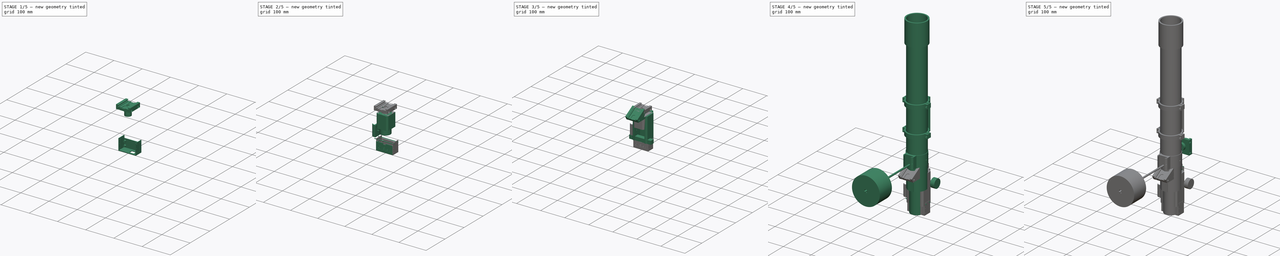
[diagram: build sequence overview — one tinted view per stage of 5, left to right]
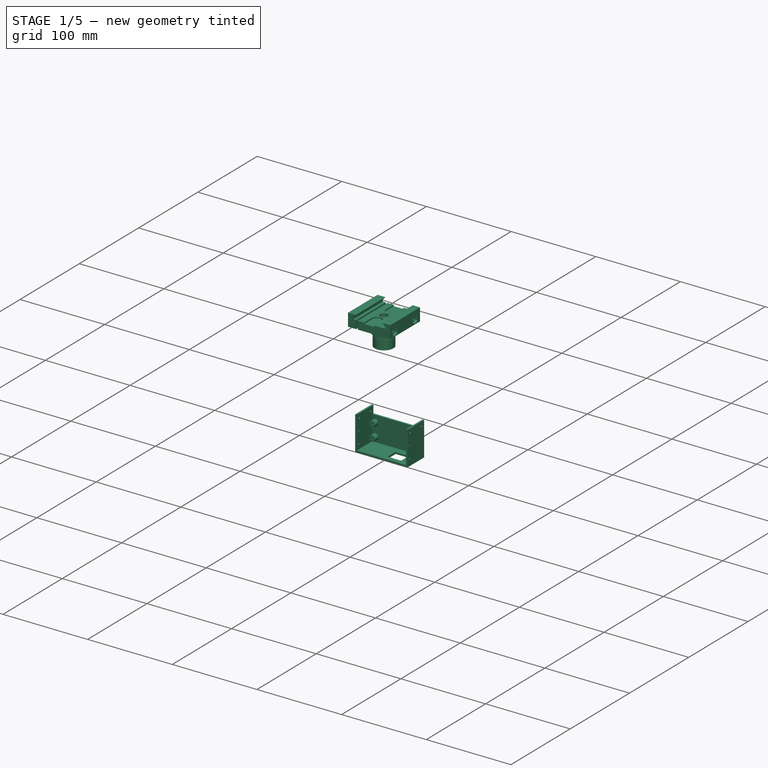
[diagram: stage 1 of 5 — iso view after this stage's code; geometry added in this stage tinted green]
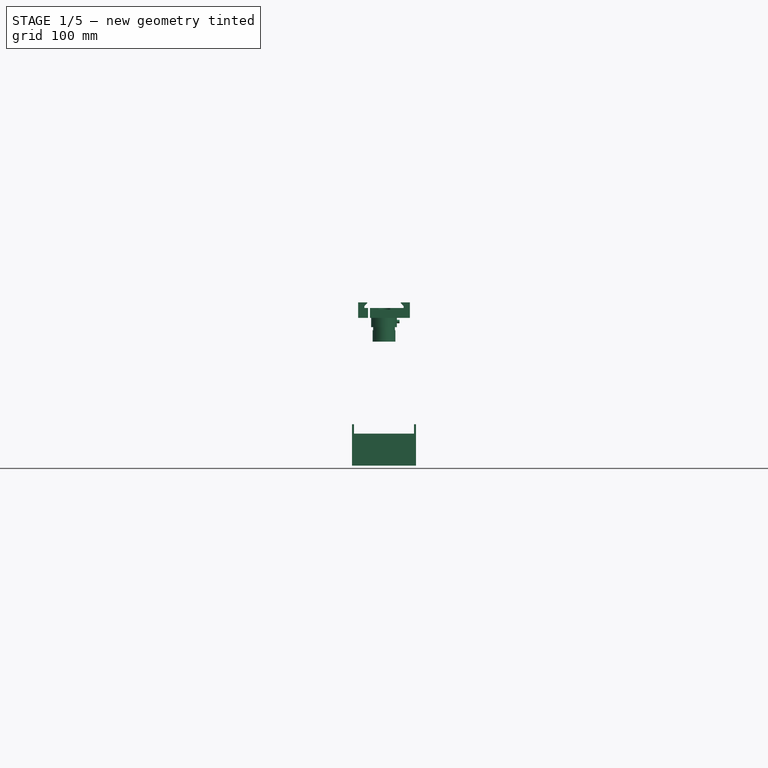
[diagram: stage 1 of 5 — front view after this stage's code; geometry added in this stage tinted green]
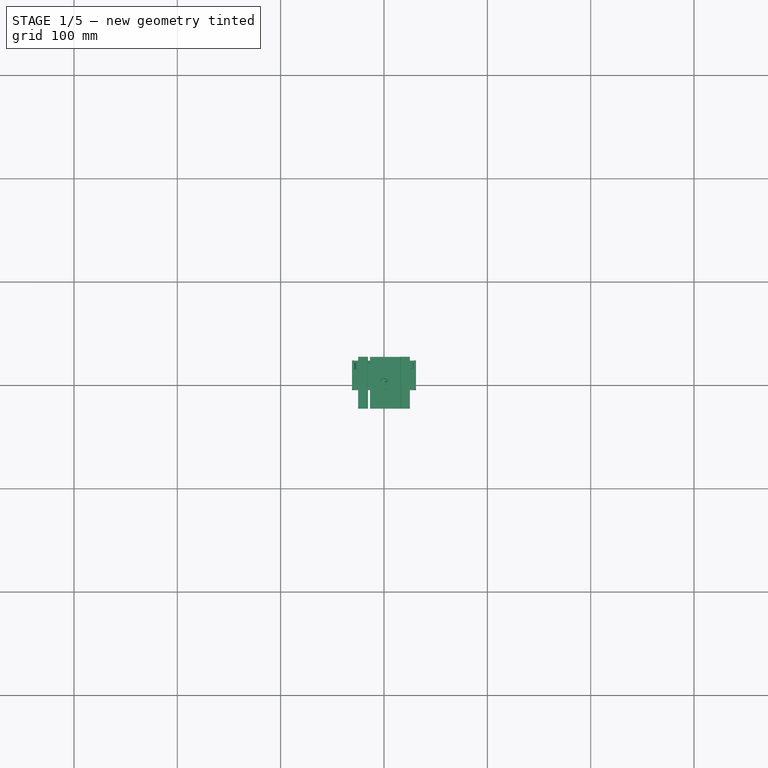
[diagram: stage 1 of 5 — top view after this stage's code; geometry added in this stage tinted green]
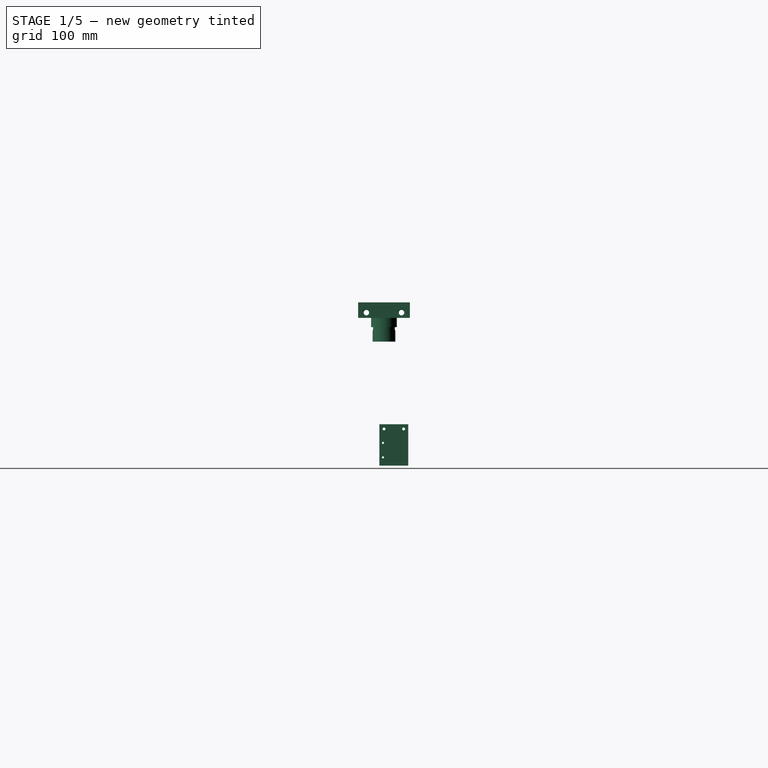
[diagram: stage 1 of 5 — right view after this stage's code; geometry added in this stage tinted green]
FCSTD DOCUMENT  (FreeCAD 0.17R13387 (Git))
Label: eq-mount-V1.5
License: All rights reserved
LicenseURL: http://en.wikipedia.org/wiki/All_rights_reserved
objects: Part::Cylinder×183, Part::MultiFuse×151, Part::Cut×107, Part::Box×105, Part::Feature×42, Part::Extrusion×27, Part::FeaturePython×20, Sketcher::SketchObject×14, Part::Part2DObjectPython×10, Part::Chamfer×9, App::Part×9, Part::RegularPolygon×3, Part::Fillet×2
note: 673 computed .brp shape members not serialized (recipe doc carries the construction recipe); baked Part::Feature solids carry a one-line shape summary decoded from their .brp

FEATURE [Part::Feature] Screw_solid102  label="M2x4-Screw (Solid)102"
  Placement = pos=(0,0,0) rot=(0,0,-1;1.0472rad)
  shape: bbox 3.6 x 3.6 x 4 mm, 12 faces (baked)
FEATURE [Part::Feature] Screw_solid103  label="M2x4-Screw (Solid)103"
  Placement = pos=(0,0,0) rot=(0,0,1;3.14159rad)
  shape: bbox 3.6 x 3.6 x 4 mm, 12 faces (baked)
FEATURE [Part::Feature] Screw_solid104  label="M2x4-Screw (Solid)104"
  Placement = pos=(0,0,0) rot=(0,0,1;1.0472rad)
  shape: bbox 3.6 x 3.6 x 4 mm, 12 faces (baked)
FEATURE [Sketcher::SketchObject] Sketch048
  MapMode = 5
  Placement = pos=(0,0,60) rot=(0,0,1;0rad)
  sketch-geometry (6):
    g0: LineSegment StartX=-18.9734 StartY=34.0308 StartZ=0 EndX=-16.0253 EndY=36.9748 EndZ=0
    g1: LineSegment StartX=18.996 StartY=34.0308 StartZ=0 EndX=16.044 EndY=36.9748 EndZ=0
    g2: LineSegment StartX=18.996 StartY=34.0308 StartZ=0 EndX=-18.9734 EndY=34.0308 EndZ=0
    g3: LineSegment StartX=-18.9734 StartY=40.0311 StartZ=0 EndX=-16.0253 EndY=36.9748 EndZ=0
    g4: LineSegment StartX=16.044 StartY=36.9748 StartZ=0 EndX=18.9109 EndY=40.0311 EndZ=0
    g5: LineSegment StartX=-18.9734 StartY=40.0311 StartZ=0 EndX=18.9109 EndY=40.0311 EndZ=0
  constraints (7):
    c: Coincident(g2,g1)
    c: Coincident(g2,g0)
    c: Horizontal(g2)
    c: Coincident(g3,g0)
    c: Coincident(g5,g3)
    c: Coincident(g5,g4)
    c: Horizontal(g5)
FEATURE [Sketcher::SketchObject] Sketch049
  MapMode = 45
  Placement = pos=(44.88,21.011,5.40003) rot=(0.707106,0.001666,0.707106;3.13826rad)
  sketch-geometry (7):
    g0: LineSegment StartX=5.21891 StartY=0.0364138 StartZ=0 EndX=2.62121 EndY=4.46293 EndZ=0
    g1: LineSegment StartX=2.62121 StartY=4.46293 StartZ=0 EndX=-2.51111 EndY=4.42651 EndZ=0
    g2: LineSegment StartX=-2.51111 StartY=4.42651 StartZ=0 EndX=-5.04574 EndY=-0.0364138 EndZ=0
    g3: LineSegment StartX=-5.04574 StartY=-0.0364138 StartZ=0 EndX=-2.44804 EndY=-4.46293 EndZ=0
    g4: LineSegment StartX=-2.44804 StartY=-4.46293 StartZ=0 EndX=2.68428 EndY=-4.42651 EndZ=0
    g5: LineSegment StartX=2.68428 StartY=-4.42651 StartZ=0 EndX=5.21891 EndY=0.0364138 EndZ=0
    g6: Circle [constr] CenterX=0.0865834 CenterY=0 CenterZ=0 NormalX=0 NormalY=0 NormalZ=1 AngleXU=0 Radius=5.13245
  constraints (14):
    c: Coincident(g0,g1)
    c: Coincident(g1,g2)
    c: Coincident(g2,g3)
    c: Coincident(g3,g4)
    c: Coincident(g4,g5)
    c: Coincident(g5,g0)
    c: Equal(g0, g1-g5) x5
    c: PointOnObject(g0,g6)
    c: PointOnObject(g1,g6)
    c: PointOnObject(g2,g6)
    c: PointOnObject(g3,g6)
    c: PointOnObject(g4,g6)
    c: PointOnObject(g5,g6)
    c: PointOnObject(g6,g-1)
FEATURE [Part::Cylinder] Cylinder014005760  label="Válec674"
  Angle = 360
  AttacherType = Attacher::AttachEngine3D
  Height = 6
  Placement = pos=(0,0,7) rot=(0,0,1;0rad)
  Radius = 6.5
FEATURE [Part::Cylinder] Cylinder014005761  label="Válec675"
  Angle = 360
  AttacherType = Attacher::AttachEngine3D
  Height = 2.5
  Placement = pos=(0,-12,71) rot=(0,0,1;0rad)
  Radius = 6
FEATURE [Part::Cylinder] Cylinder014005762  label="Válec676"
  Angle = 360
  AttacherType = Attacher::AttachEngine3D
  Height = 7
  Radius = 2.6
FEATURE [Part::Box] Box187  label="Krychle164"
  AttacherType = Attacher::AttachEngine3D
  Height = 112
  Length = 38
  Placement = pos=(-19,32,-52) rot=(0,0,1;0rad)
  Width = 10
FEATURE [Part::Cylinder] Cylinder014005763  label="Válec677"
  Angle = 360
  AttacherType = Attacher::AttachEngine3D
  Height = 2.5
  Placement = pos=(0,-12,71) rot=(0,0,1;0rad)
  Radius = 6
FEATURE [Part::Cylinder] Cylinder014005764  label="Válec678"
  Angle = 360
  AttacherType = Attacher::AttachEngine3D
  Height = 60
  Placement = pos=(-30,-17,69) rot=(0,1,0;1.5708rad)
  Radius = 2.65
FEATURE [Part::Cylinder] Cylinder014005765  label="Válec679"
  Angle = 360
  AttacherType = Attacher::AttachEngine3D
  Height = 22
  Radius = 2.6
FEATURE [Part::Box] Box188  label="Krychle165"
  AttacherType = Attacher::AttachEngine3D
  Height = 112
  Length = 38
  Placement = pos=(-19,34,-52) rot=(0,0,1;0rad)
  Width = 6
FEATURE [Part::Cut] Cut061098109
  Base = -> Box187
  Tool = -> Box188
FEATURE [Part::Cylinder] Cylinder014005766  label="Válec680"
  Angle = 360
  AttacherType = Attacher::AttachEngine3D
  Height = 60
  Placement = pos=(-30,17,69) rot=(0,1,0;1.5708rad)
  Radius = 2.65
FEATURE [Part::Box] Box189  label="Krychle166"
  AttacherType = Attacher::AttachEngine3D
  Height = 15
  Length = 50
  Placement = pos=(-25,-25,64) rot=(0,0,1;0rad)
  Width = 50
FEATURE [Part::Box] Box190  label="Krychle167"
  AttacherType = Attacher::AttachEngine3D
  Height = 15
  Length = 2
  Placement = pos=(-15.5,-26,61) rot=(0,0,1;0rad)
  Width = 52
FEATURE [Part::Cylinder] Cylinder014005767  label="Válec681"
  Angle = 360
  AttacherType = Attacher::AttachEngine3D
  Height = 25
  Placement = pos=(0,0,43) rot=(0,0,1;0rad)
  Radius = 10.5
FEATURE [Part::Cylinder] Cylinder014005768  label="Válec682"
  Angle = 360
  AttacherType = Attacher::AttachEngine3D
  Height = 55
  Placement = pos=(0,0,35) rot=(0,0,1;0rad)
  Radius = 2.7
FEATURE [Part::Box] Box191  label="Krychle168"
  AttacherType = Attacher::AttachEngine3D
  Height = 2.5
  Length = 12
  Placement = pos=(-6,-25,71) rot=(0,0,1;0rad)
  Width = 13
FEATURE [Part::Box] Box192  label="Krychle169"
  AttacherType = Attacher::AttachEngine3D
  Height = 17
  Length = 5
  Placement = pos=(3.3,-3.6,44.5) rot=(0,0,1;0rad)
  Width = 7.2
FEATURE [Part::Cylinder] Cylinder014005769  label="Válec683"
  Angle = 360
  AttacherType = Attacher::AttachEngine3D
  Height = 9
  Placement = pos=(0,0,55) rot=(0,0,1;0rad)
  Radius = 12.5
FEATURE [Part::Box] Box193  label="Krychle170"
  AttacherType = Attacher::AttachEngine3D
  Height = 12
  Length = 2.5
  Placement = pos=(18.5,-3,-3) rot=(0,0,1;0rad)
  Width = 6
FEATURE [Part::Cylinder] Cylinder014005770  label="Unasec vrch022"
  Angle = 360
  AttacherType = Attacher::AttachEngine3D
  Height = 1.5
  Placement = pos=(0,0,5.5) rot=(0,0,1;0rad)
  Radius = 15.5
FEATURE [Part::Cylinder] Cylinder014005771  label="Válec684"
  Angle = 360
  AttacherType = Attacher::AttachEngine3D
  Height = 14
  Placement = pos=(12,0,-4) rot=(0,1,0;1.5708rad)
  Radius = 1.7
FEATURE [Part::Cylinder] Cylinder014005772  label="Válec685"
  Angle = 360
  AttacherType = Attacher::AttachEngine3D
  Height = 25
  Placement = pos=(0,0,43) rot=(0,0,1;0rad)
  Radius = 4.2
FEATURE [Part::Box] Box194  label="Krychle171"
  AttacherType = Attacher::AttachEngine3D
  Height = 2.5
  Length = 12
  Placement = pos=(-6,-25,71) rot=(0,0,1;0rad)
  Width = 13
FEATURE [Part::Cylinder] Cylinder014005773  label="Válec686"
  Angle = 360
  AttacherType = Attacher::AttachEngine3D
  Height = 8
  Placement = pos=(0,0,66) rot=(0,0,1;0rad)
  Radius = 4.5
FEATURE [Part::Extrusion] Extrude082
  Base = -> Sketch049
  Dir = (1,0,0)
  DirMode = 2
  FaceMakerClass = Part::FaceMakerBullseye
  LengthFwd = 5
  LengthRev = 0
  Placement = pos=(0,0,0.25) rot=(0,0,1;0rad)
  Solid = true
  Symmetric = false
FEATURE [Part::Extrusion] Extrude083
  Base = -> Sketch048
  Dir = (0,0,1)
  DirMode = 2
  FaceMakerClass = Part::FaceMakerBullseye
  LengthFwd = -112
  LengthRev = 0
  Solid = true
  Symmetric = false
FEATURE [Part::RegularPolygon] RegularPolygon009  label="Pravidelný n-úhelník009"
  AttacherType = Attacher::AttachEngine3D
  Circumradius = 6
  Polygon = 6
FEATURE [Part::Extrusion] Extrude081
  Base = -> RegularPolygon009
  Dir = (0,0,1)
  DirMode = 2
  FaceMakerClass = Part::FaceMakerBullseye
  LengthFwd = 8
  LengthRev = 0
  Placement = pos=(0,0,13) rot=(0,0,1;0rad)
  Solid = true
  Symmetric = false
FEATURE [Part::MultiFuse] Fusion001089041  label="Arca plate base017"
  Placement = pos=(0,-6.5,115.5) rot=(-1,0,0;1.5708rad)
  Shapes = -> [Extrude083,Cut061098109]
FEATURE [Part::Cut] Cut061098108  label="Arca sw 012"
  Base = -> Box189
  Tool = -> Fusion001089041
FEATURE [Part::Cut] Cut061098113
  Base = -> Cut061098108
  Tool = -> Box190
FEATURE [Part::MultiFuse] Fusion001089042
  Shapes = -> [Cylinder014005769,Cut061098113]
FEATURE [Part::MultiFuse] Fusion001089043
  Placement = pos=(0,0,1) rot=(0,0,1;0rad)
  Shapes = -> [Box191,Cylinder014005761]
FEATURE [Part::MultiFuse] Fusion001089045  label="srouby035"
  Placement = pos=(0,0,0.5) rot=(0,0,1;0rad)
  Shapes = -> [Screw_solid104,Screw_solid102,Screw_solid103]
FEATURE [Part::Cut] Cut061098111  label="unasec vrch022"
  Base = -> Cylinder014005770
  Tool = -> Fusion001089045
FEATURE [Part::FeaturePython] Nut031  label="M5-Nut002"  # Fasteners workbench fastener (typed FeaturePython)
  Placement = pos=(22,-17,69) rot=(0,1,0;1.5708rad)
  diameter = 7
  invert = false
  matchOuter = false
  offset = 0
  thread = false
  type = 1
FEATURE [Part::FeaturePython] Nut032  label="M5-Nut003"  # Fasteners workbench fastener (typed FeaturePython)
  Placement = pos=(22,17,69) rot=(0,1,0;1.5708rad)
  diameter = 7
  invert = false
  matchOuter = false
  offset = 0
  thread = false
  type = 1
FEATURE [Part::MultiFuse] Fusion001089047
  Shapes = -> [Cylinder014005766,Cylinder014005764,Nut032,Nut031]
FEATURE [Part::Feature] Cylinder014005774  label="Válec687"
  shape: bbox 5 x 5 x 7 mm, 3 faces (baked)
FEATURE [Part::Feature] Fusion001089049  label="Pojistka015"
  Placement = pos=(0,0,0) rot=(0,0,1;2.0944rad)
  shape: bbox 9.944 x 13.82 x 16.54 mm, 27 faces (baked)
FEATURE [Part::Feature] Fusion001089050  label="Pojistka016"
  Placement = pos=(0,0,0) rot=(0,0,-1;2.05949rad)
  shape: bbox 9.575 x 13.96 x 16.54 mm, 27 faces (baked)
FEATURE [Part::Feature] Cylinder014005775  label="Válec688"
  Placement = pos=(0,0,0) rot=(0,0,1;4.18879rad)
  shape: bbox 5 x 5 x 7 mm, 3 faces (baked)
FEATURE [Part::Feature] union001_solid008  label="union001 (Solid)008"
  Placement = pos=(15,-7,-4) rot=(-1,0,0;1.5708rad)
  shape: bbox 10 x 5.7 x 11.54 mm, 33 faces (baked)
FEATURE [Part::MultiFuse] Fusion001089048  label="Pojistka014"
  Placement = pos=(-11,0,61.5) rot=(0,0,1;0rad)
  Shapes = -> [Box193,union001_solid008,Cylinder014005771]
FEATURE [Part::Feature] Cylinder014005776  label="Válec689"
  Placement = pos=(0,0,0) rot=(0,0,1;2.0944rad)
  shape: bbox 5 x 5 x 7 mm, 3 faces (baked)
FEATURE [Part::MultiFuse] Fusion001089044
  Shapes = -> [Cylinder014005775,Cylinder014005774,Cylinder014005776]
FEATURE [Part::MultiFuse] Fusion001089040
  Placement = pos=(0,0,1) rot=(0,0,1;0rad)
  Shapes = -> [Fusion001089044,Cylinder014005762]
FEATURE [Part::Cut] Cut061098107  label="Unasec Vrch zaklad022"
  Base = -> Cut061098111
  Tool = -> Fusion001089040
FEATURE [Part::MultiFuse] Fusion001089051
  Shapes = -> [Cut061098107,Cylinder014005760,Extrude081]
FEATURE [Part::MultiFuse] Fusion001089053
  Shapes = -> [Cylinder014005765,Extrude082]
FEATURE [Part::Cut] Cut061098106  label="unasec top009"
  Base = -> Fusion001089051
  Placement = pos=(0,0,42) rot=(0,0,1;0rad)
  Tool = -> Fusion001089053
FEATURE [Part::MultiFuse] Fusion001089046
  Shapes = -> [Cylinder014005768,Cut061098106,Cylinder014005773]
FEATURE [Part::Cut] Cut061098112
  Base = -> Fusion001089042
  Tool = -> Fusion001089046
FEATURE [Part::Cut] Cut061098103
  Base = -> Cut061098112
  Tool = -> Fusion001089047
FEATURE [Part::MultiFuse] Fusion001089057
  Placement = pos=(0,0,1) rot=(0,0,1;3.14159rad)
  Shapes = -> [Box194,Cylinder014005763]
FEATURE [Part::MultiFuse] Fusion001089054
  Shapes = -> [Fusion001089043,Fusion001089057]
FEATURE [Part::Cut] Cut061098110  label="Swis Arca007"
  Base = -> Cut061098103
  Placement = pos=(0,0,-3) rot=(0,0,1;0rad)
  Tool = -> Fusion001089054
FEATURE [Part::MultiFuse] Fusion001089056
  Shapes = -> [Cut061098110,Cylinder014005767]
FEATURE [Part::Cut] Cut061098102
  Base = -> Fusion001089056
  Tool = -> Cylinder014005772
FEATURE [Part::MultiFuse] Fusion001089055
  Shapes = -> [Cut061098102,Box192]
FEATURE [Part::Cylinder] Cylinder014005777  label="Válec690"
  Angle = 360
  AttacherType = Attacher::AttachEngine3D
  Height = 11
  Placement = pos=(0,0,38) rot=(0,0,1;0rad)
  Radius = 11
FEATURE [Part::Part2DObjectPython] ShapeString014  # Draft 2D object (typed FeaturePython)
  FontFile = <path>
  Placement = pos=(15.3452,-2,30.5072) rot=(1,0,0;1.5708rad)
  Size = 4
  String = RA
  Tracking = 0
FEATURE [Part::Part2DObjectPython] ShapeString015  # Draft 2D object (typed FeaturePython)
  FontFile = <path>
  Placement = pos=(15.3452,-2,30.5072) rot=(1,0,0;1.5708rad)
  Size = 0.01
  String = .
  Tracking = 0
FEATURE [Part::Extrusion] Extrude084  label="Text RA001"
  Base = -> ShapeString014
  Dir = (0,-1,0)
  DirMode = 2
  FaceMakerClass = Part::FaceMakerBullseye
  LengthFwd = 1
  LengthRev = 0
  Placement = pos=(21,0.5,-33) rot=(0,0,1;0rad)
  Solid = false
  Symmetric = false
FEATURE [Part::Cylinder] Cylinder014005778  label="Válec691"
  Angle = 360
  AttacherType = Attacher::AttachEngine3D
  Height = 8
  Placement = pos=(3.5,6,0) rot=(0,0,1;0rad)
  Radius = 0.7
FEATURE [Part::Box] Box195  label="Krychle172"
  AttacherType = Attacher::AttachEngine3D
  Height = 26
  Length = 58
  Placement = pos=(-0.5,0,-3) rot=(0,0,1;0rad)
  Width = 29
FEATURE [Part::Cylinder] Cylinder014005779  label="Válec692"
  Angle = 360
  AttacherType = Attacher::AttachEngine3D
  Height = 8
  Placement = pos=(53.5,21.25,0) rot=(0,0,1;0rad)
  Radius = 0.75
FEATURE [Part::Cylinder] Cylinder014005780  label="Válec693"
  Angle = 360
  AttacherType = Attacher::AttachEngine3D
  Height = 6.5
  Placement = pos=(3.5,6,0) rot=(0,0,1;0rad)
  Radius = 3.5
FEATURE [Part::Cylinder] Cylinder014005781  label="Válec694"
  Angle = 360
  AttacherType = Attacher::AttachEngine3D
  Height = 6.5
  Placement = pos=(53.5,21.25,0) rot=(0,0,1;0rad)
  Radius = 3.5
FEATURE [Part::Cylinder] Cylinder014005782  label="Válec695"
  Angle = 360
  AttacherType = Attacher::AttachEngine3D
  Height = 8
  Placement = pos=(53.5,6,0) rot=(0,0,1;0rad)
  Radius = 0.75
FEATURE [Part::Cylinder] Cylinder014005783  label="Válec696"
  Angle = 360
  AttacherType = Attacher::AttachEngine3D
  Height = 70
  Placement = pos=(-5,20,16.5) rot=(0,1,0;1.5708rad)
  Radius = 1
FEATURE [Part::Cylinder] Cylinder014005784  label="Válec697"
  Angle = 360
  AttacherType = Attacher::AttachEngine3D
  Height = 70
  Placement = pos=(-5,6,16.5) rot=(0,1,0;1.5708rad)
  Radius = 1
FEATURE [Part::MultiFuse] Fusion001089059  label="Horni diry010"
  Placement = pos=(0,0,3) rot=(0,0,1;0rad)
  Shapes = -> [Cylinder014005783,Cylinder014005784]
FEATURE [Part::Box] Box196  label="RJ055"
  AttacherType = Attacher::AttachEngine3D
  Height = 13
  Length = 16
  Placement = pos=(32,-5,4.5) rot=(0,0,1;0rad)
  Width = 18.5
FEATURE [Part::Cylinder] Cylinder014005785  label="Válec698"
  Angle = 360
  AttacherType = Attacher::AttachEngine3D
  Height = 5
  Placement = pos=(14.25,1,9.5) rot=(1,0,0;1.5708rad)
  Radius = 0.01
FEATURE [Part::MultiFuse] Fusion001089058  label="RJ a LED001"
  Shapes = -> [Box196,Cylinder014005785]
FEATURE [Part::Cylinder] Cylinder014005786  label="Válec699"
  Angle = 360
  AttacherType = Attacher::AttachEngine3D
  Height = 8
  Placement = pos=(3.5,21.25,0) rot=(0,0,1;0rad)
  Radius = 0.75
FEATURE [Part::MultiFuse] Fusion001089060  label="diry016"
  Placement = pos=(0,0,-4) rot=(0,0,1;0rad)
  Shapes = -> [Cylinder014005786,Cylinder014005778,Cylinder014005779,Cylinder014005782]
FEATURE [Part::Cylinder] Cylinder014005787  label="Válec700"
  Angle = 360
  AttacherType = Attacher::AttachEngine3D
  Height = 6.5
  Placement = pos=(3.5,21.25,0) rot=(0,0,1;0rad)
  Radius = 3.5
FEATURE [Part::Box] Box197  label="Krychle173"
  AttacherType = Attacher::AttachEngine3D
  Height = 13
  Length = 2
  Placement = pos=(29,-4.5,-55) rot=(0,0,1;0rad)
  Width = 28
FEATURE [Part::Box] Box198  label="Krychle174"
  AttacherType = Attacher::AttachEngine3D
  Height = 13
  Length = 2
  Placement = pos=(-31,-4.5,-55) rot=(0,0,1;0rad)
  Width = 28
FEATURE [Part::Cylinder] Cylinder014005788  label="Válec701"
  Angle = 360
  AttacherType = Attacher::AttachEngine3D
  Height = 6.5
  Placement = pos=(53.5,6,0) rot=(0,0,1;0rad)
  Radius = 3.5
FEATURE [Part::MultiFuse] Fusion001089061  label="sloupky004"
  Placement = pos=(0,0,-3.5) rot=(0,0,1;0rad)
  Shapes = -> [Cylinder014005787,Cylinder014005780,Cylinder014005781,Cylinder014005788]
FEATURE [Part::Box] Box199  label="Krychle175"
  AttacherType = Attacher::AttachEngine3D
  Height = 28
  Length = 62
  Placement = pos=(-2.5,-2,-5) rot=(0,0,1;0rad)
  Width = 31
FEATURE [Part::Cut] Cut061098114  label="Základ001"
  Base = -> Box199
  Tool = -> Box195
FEATURE [Part::Extrusion] Extrude085  label="Text TR001"
  Base = -> ShapeString015
  Dir = (0,-1,0)
  DirMode = 2
  FaceMakerClass = Part::FaceMakerBullseye
  LengthFwd = 1
  LengthRev = 0
  Placement = pos=(-6.75,0.5,-33) rot=(0,0,1;0rad)
  Solid = false
  Symmetric = false
FEATURE [Part::MultiFuse] Fusion001089062
  Shapes = -> [Fusion001089060,Fusion001089058,Fusion001089059]
FEATURE [Part::MultiFuse] Fusion001089063
  Shapes = -> [Extrude085,Extrude084]
FEATURE [Part::MultiFuse] Fusion001089066
  Shapes = -> [Box197,Box198]
FEATURE [Part::MultiFuse] Fusion001089067  label="bez der001"
  Shapes = -> [Cut061098114,Fusion001089061]
FEATURE [Part::Cut] Cut061098117
  Base = -> Fusion001089067
  Tool = -> Fusion001089062
FEATURE [Part::Cut] Cut061098115
  Base = -> Cut061098117
  Placement = pos=(-28.5,18.5,-80) rot=(1,0,0;1.5708rad)
  Tool = -> Fusion001089063
FEATURE [Part::MultiFuse] Fusion001089065  label="RA pcb box001"
  Shapes = -> [Cut061098115,Fusion001089066]
FEATURE [Part::Cylinder] Cylinder014005789  label="Válec702"
  Angle = 360
  AttacherType = Attacher::AttachEngine3D
  Height = 74
  Placement = pos=(-40,19,-46.5) rot=(0,1,0;1.5708rad)
  Radius = 1.4
FEATURE [Part::Cylinder] Cylinder014005790  label="Válec703"
  Angle = 360
  AttacherType = Attacher::AttachEngine3D
  Height = 74
  Placement = pos=(-40,0,-46.5) rot=(0,1,0;1.5708rad)
  Radius = 1.4
FEATURE [Part::MultiFuse] Fusion001089064
  Shapes = -> [Cylinder014005790,Cylinder014005789]
FEATURE [Part::Cut] Cut061098116  label="RA PCB BOX For  MiniPCB2"
  Base = -> Fusion001089065
  Tool = -> Fusion001089064
FEATURE [App::Part] Part023  label="RA"
  Group = -> [Cut061098001,Cut061098046,Cut061098047,Fusion001051,Fusion001053,Fusion001054,Fusion001057,Fusion001052,Fusion001056,Chamfer,Chamfer008010,Box142,Cylinder014005674,Cylinder014005671,Box143,Cylinder014005675,Box144,Cylinder014005676,Cylinder014005677,Cylinder014005685,Cut061098052,Cut061098048,Fusion001055,Cut061098049,Chamfer008011,Cylinder,Cylinder014005684,Box145,Cylinder014005680,+168 more]
  License = CC BY 3.0
  LicenseURL = http://creativecommons.org/licenses/by/3.0/
  Origin = -> Origin023
  Placement = pos=(0,0,0) rot=(0,0,1;3.14159rad)
FEATURE [Part::Part2DObjectPython] ShapeString016  # Draft 2D object (typed FeaturePython)
  FontFile = <path>
  Placement = pos=(15.3452,-2,30.5072) rot=(1,0,0;1.5708rad)
  Size = 0.01
  String = .
  Tracking = 0
FEATURE [Part::Extrusion] Extrude087  label="Text TR002"
  Base = -> ShapeString016
  Dir = (0,-1,0)
  DirMode = 2
  FaceMakerClass = Part::FaceMakerBullseye
  LengthFwd = 1
  LengthRev = 0
  Placement = pos=(-6.75,0.5,-33) rot=(0,0,1;0rad)
  Solid = false
  Symmetric = false
FEATURE [Part::Part2DObjectPython] ShapeString017  # Draft 2D object (typed FeaturePython)
  FontFile = <path>
  Placement = pos=(15.3452,-2,30.5072) rot=(1,0,0;1.5708rad)
  Size = 4
  String = DEC
  Tracking = 0
FEATURE [Part::Extrusion] Extrude086  label="Text RA002"
  Base = -> ShapeString017
  Dir = (0,-1,0)
  DirMode = 2
  FaceMakerClass = Part::FaceMakerBullseye
  LengthFwd = 1
  LengthRev = 0
  Placement = pos=(18,0.5,-33) rot=(0,0,1;0rad)
  Solid = false
  Symmetric = false
FEATURE [Part::Cylinder] Cylinder014005791  label="Válec704"
  Angle = 360
  AttacherType = Attacher::AttachEngine3D
  Height = 70
  Placement = pos=(-5,6,16.5) rot=(0,1,0;1.5708rad)
  Radius = 1
FEATURE [Part::Box] Box200  label="Krychle176"
  AttacherType = Attacher::AttachEngine3D
  Height = 26
  Length = 58
  Placement = pos=(-0.5,0,-3) rot=(0,0,1;0rad)
  Width = 29
FEATURE [Part::Cylinder] Cylinder014005792  label="Válec705"
  Angle = 360
  AttacherType = Attacher::AttachEngine3D
  Height = 8
  Placement = pos=(53.5,21.25,0) rot=(0,0,1;0rad)
  Radius = 0.75
FEATURE [Part::Cylinder] Cylinder014005793  label="Válec706"
  Angle = 360
  AttacherType = Attacher::AttachEngine3D
  Height = 6.5
  Placement = pos=(3.5,21.25,0) rot=(0,0,1;0rad)
  Radius = 3.5
FEATURE [Part::Cylinder] Cylinder014005794  label="Válec707"
  Angle = 360
  AttacherType = Attacher::AttachEngine3D
  Height = 6.5
  Placement = pos=(3.5,6,0) rot=(0,0,1;0rad)
  Radius = 3.5
FEATURE [Part::Cylinder] Cylinder014005795  label="Válec708"
  Angle = 360
  AttacherType = Attacher::AttachEngine3D
  Height = 6.5
  Placement = pos=(53.5,6,0) rot=(0,0,1;0rad)
  Radius = 3.5
FEATURE [Part::Cylinder] Cylinder014005796  label="Válec709"
  Angle = 360
  AttacherType = Attacher::AttachEngine3D
  Height = 8
  Placement = pos=(53.5,6,0) rot=(0,0,1;0rad)
  Radius = 0.75
FEATURE [Part::Cylinder] Cylinder014005797  label="Válec710"
  Angle = 360
  AttacherType = Attacher::AttachEngine3D
  Height = 6.5
  Placement = pos=(53.5,21.25,0) rot=(0,0,1;0rad)
  Radius = 3.5
FEATURE [Part::MultiFuse] Fusion001089072  label="sloupky005"
  Placement = pos=(0,0,-3.5) rot=(0,0,1;0rad)
  Shapes = -> [Cylinder014005793,Cylinder014005794,Cylinder014005797,Cylinder014005795]
FEATURE [Part::Cylinder] Cylinder014005798  label="Válec711"
  Angle = 360
  AttacherType = Attacher::AttachEngine3D
  Height = 8
  Placement = pos=(3.5,6,0) rot=(0,0,1;0rad)
  Radius = 0.7
FEATURE [Part::Cylinder] Cylinder014005799  label="Válec712"
  Angle = 360
  AttacherType = Attacher::AttachEngine3D
  Height = 70
  Placement = pos=(-5,20,16.5) rot=(0,1,0;1.5708rad)
  Radius = 1
FEATURE [Part::MultiFuse] Fusion001089071  label="Horni diry011"
  Placement = pos=(0,0,3) rot=(0,0,1;0rad)
  Shapes = -> [Cylinder014005799,Cylinder014005791]
FEATURE [Part::Box] Box201  label="RJ056"
  AttacherType = Attacher::AttachEngine3D
  Height = 13
  Length = 16
  Placement = pos=(32,-5,4.5) rot=(0,0,1;0rad)
  Width = 18.5
FEATURE [Part::Cylinder] Cylinder014005800  label="Válec713"
  Angle = 360
  AttacherType = Attacher::AttachEngine3D
  Height = 8
  Placement = pos=(3.5,21.25,0) rot=(0,0,1;0rad)
  Radius = 0.75
FEATURE [Part::MultiFuse] Fusion001089068  label="diry017"
  Placement = pos=(0,0,-4) rot=(0,0,1;0rad)
  Shapes = -> [Cylinder014005800,Cylinder014005798,Cylinder014005792,Cylinder014005796]
FEATURE [Part::Box] Box202  label="Krychle177"
  AttacherType = Attacher::AttachEngine3D
  Height = 13
  Length = 2
  Placement = pos=(29,-4.5,-55) rot=(0,0,1;0rad)
  Width = 28
FEATURE [Part::Box] Box203  label="Krychle178"
  AttacherType = Attacher::AttachEngine3D
  Height = 13
  Length = 2
  Placement = pos=(-31,-4.5,-55) rot=(0,0,1;0rad)
  Width = 28
FEATURE [Part::Cylinder] Cylinder014005801  label="Válec714"
  Angle = 360
  AttacherType = Attacher::AttachEngine3D
  Height = 5
  Placement = pos=(14.25,1,9.5) rot=(1,0,0;1.5708rad)
  Radius = 0.01
FEATURE [Part::MultiFuse] Fusion001089070  label="RJ a LED002"
  Shapes = -> [Box201,Cylinder014005801]
FEATURE [Part::MultiFuse] Fusion001089069
  Shapes = -> [Fusion001089068,Fusion001089070,Fusion001089071]
FEATURE [Part::Cylinder] Cylinder014005802  label="Válec715"
  Angle = 360
  AttacherType = Attacher::AttachEngine3D
  Height = 74
  Placement = pos=(-40,19,-46.5) rot=(0,1,0;1.5708rad)
  Radius = 1.4
FEATURE [Part::Box] Box204  label="Krychle179"
  AttacherType = Attacher::AttachEngine3D
  Height = 28
  Length = 62
  Placement = pos=(-2.5,-2,-5) rot=(0,0,1;0rad)
  Width = 31
FEATURE [Part::Cut] Cut061098120  label="Základ002"
  Base = -> Box204
  Tool = -> Box200
FEATURE [Part::Cylinder] Cylinder014005803  label="Válec716"
  Angle = 360
  AttacherType = Attacher::AttachEngine3D
  Height = 74
  Placement = pos=(-40,0,-46.5) rot=(0,1,0;1.5708rad)
  Radius = 1.4
FEATURE [Part::MultiFuse] Fusion001089073
  Shapes = -> [Cylinder014005803,Cylinder014005802]
FEATURE [Part::MultiFuse] Fusion001089074  label="bez der002"
  Shapes = -> [Cut061098120,Fusion001089072]
FEATURE [Part::Cut] Cut061098121
  Base = -> Fusion001089074
  Tool = -> Fusion001089069
FEATURE [Part::MultiFuse] Fusion001089075
  Shapes = -> [Extrude087,Extrude086]
FEATURE [Part::Cut] Cut061098118
  Base = -> Cut061098121
  Placement = pos=(-28.5,18.5,-80) rot=(1,0,0;1.5708rad)
  Tool = -> Fusion001089075
FEATURE [Part::MultiFuse] Fusion001089077
  Shapes = -> [Box202,Box203]
FEATURE [Part::MultiFuse] Fusion001089076  label="RA pcb box002"
  Shapes = -> [Cut061098118,Fusion001089077]
FEATURE [Part::Cut] Cut061098119  label="DEC PCB BOX For MiniPCB2"
  Base = -> Fusion001089076
  Tool = -> Fusion001089073
FEATURE [App::Part] Part024  label="DEC"
  Group = -> [Cut061098023,Cut061098056,Cut061098057,Fusion001064,Chamfer008014,Box149,Cylinder014005693,Cylinder014005692,Cylinder014005695,Cylinder014005698,Cylinder014005696,Cylinder014005697,Cylinder014005694,Cut061098058,Fusion001063,Fusion001058,Fusion001059,Fusion001060,Fusion001061,Fusion001062,Cut061098054,Cut061098055,Chamfer008012,Chamfer008013,Box148,Cylinder014005691,Cylinder014005689,Box146,+163 more]
  License = CC BY 3.0
  LicenseURL = http://creativecommons.org/licenses/by/3.0/
  Origin = -> Origin024
  Placement = pos=(0,0,112) rot=(1,0,0;-1.5708rad)
note: 10 file-system paths scrubbed to <path> (originals preserved in the JSON sidecar)
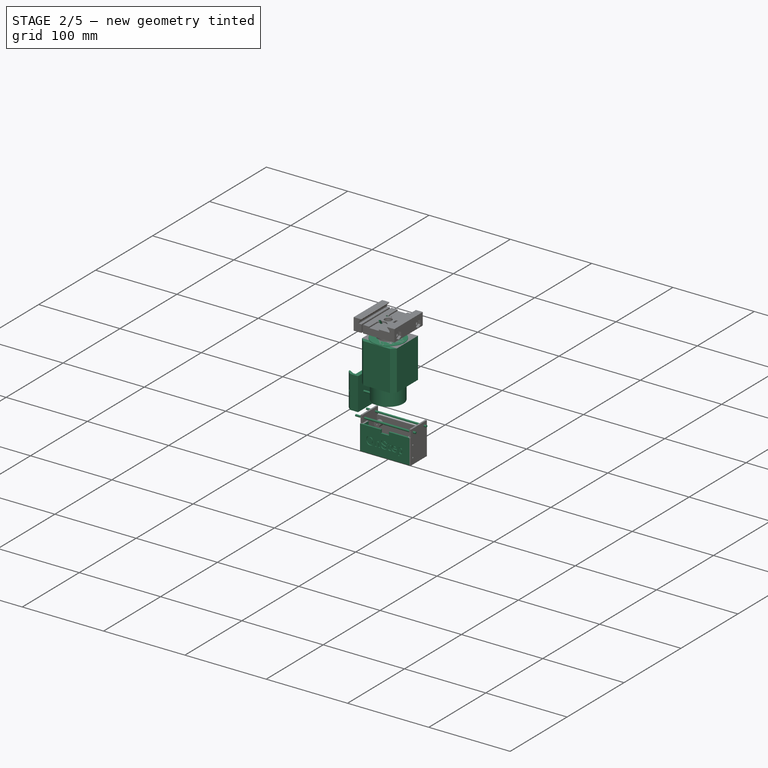
[diagram: stage 2 of 5 — iso view after this stage's code; geometry added in this stage tinted green]
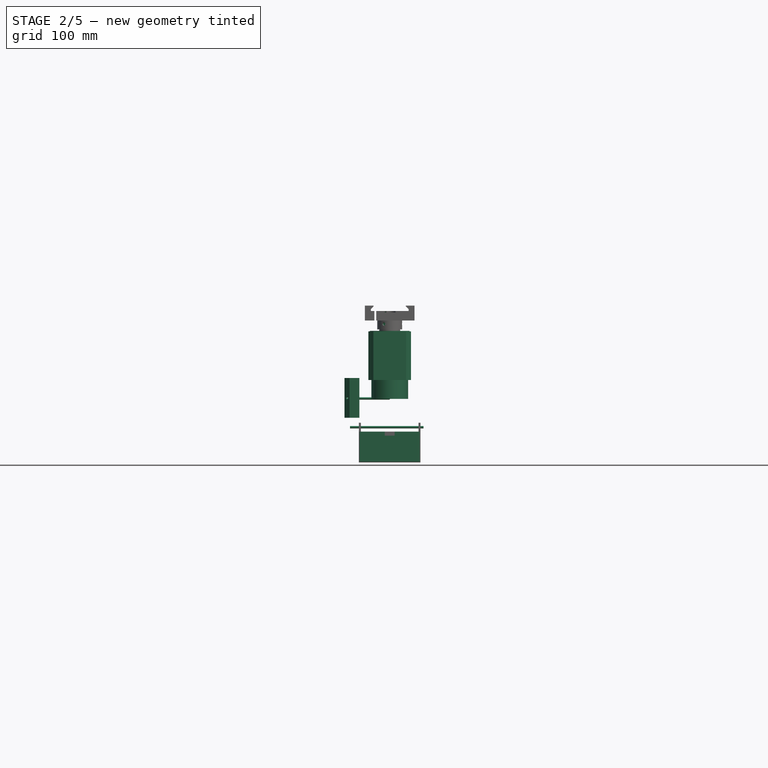
[diagram: stage 2 of 5 — front view after this stage's code; geometry added in this stage tinted green]
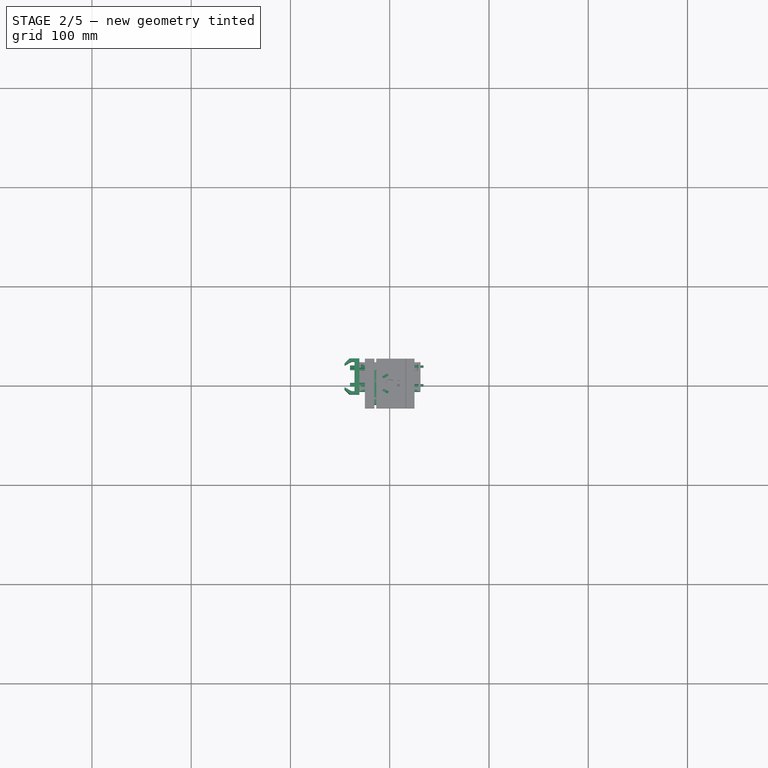
[diagram: stage 2 of 5 — top view after this stage's code; geometry added in this stage tinted green]
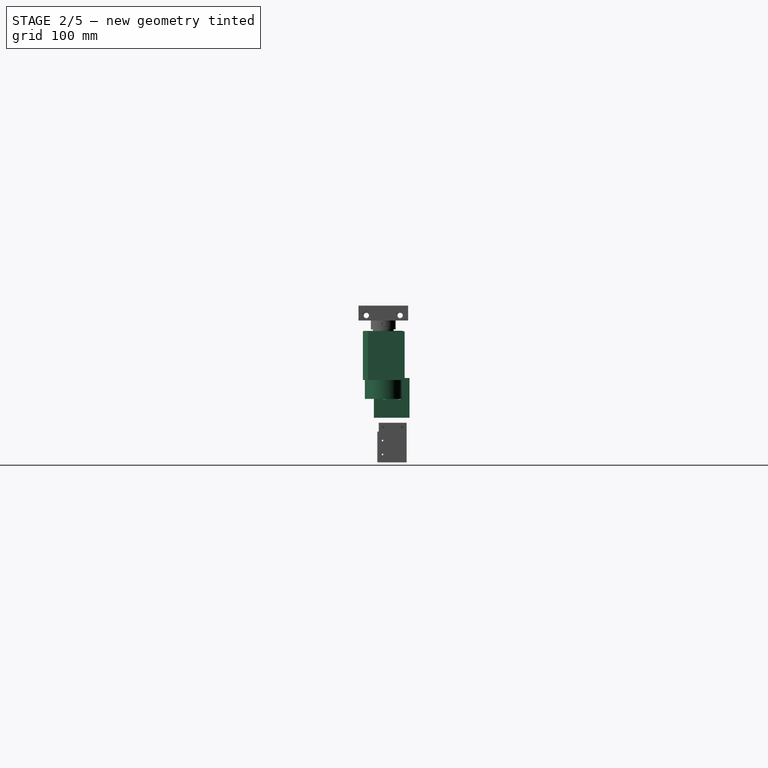
[diagram: stage 2 of 5 — right view after this stage's code; geometry added in this stage tinted green]
FEATURE [Part::Cylinder] Cylinder014005376  label="Válec358"
  Angle = 360
  AttacherType = Attacher::AttachEngine3D
  Height = 20
  Placement = pos=(-40,16,-17.5) rot=(0,1,0;1.5708rad)
  Radius = 1.4
FEATURE [Part::Cylinder] Cylinder014005377  label="Válec359"
  Angle = 360
  AttacherType = Attacher::AttachEngine3D
  Height = 20
  Placement = pos=(-40,1,-17.5) rot=(0,1,0;1.5708rad)
  Radius = 1.4
FEATURE [Part::Feature] Chamfer008013  label="Zaklad008"
  shape: bbox 61 x 63.5 x 101.5 mm, 101 faces (baked)
FEATURE [Part::Box] Box146  label="Krychle123"
  AttacherType = Attacher::AttachEngine3D
  Height = 49
  Length = 43
  Placement = pos=(-21.5,-20.5,1) rot=(0,0,1;0rad)
  Width = 42
FEATURE [Part::Chamfer] Chamfer008012
  Base = -> Box146
  Edges = 2 edges r=5: [Edge1,Edge5]
FEATURE [Part::Cylinder] Cylinder014005686  label="Válec604"
  Angle = 360
  AttacherType = Attacher::AttachEngine3D
  Height = 40
  Placement = pos=(-40,1,-17.5) rot=(0,1,0;1.5708rad)
  Radius = 1.2
FEATURE [Part::Cylinder] Cylinder014005687  label="Válec605"
  Angle = 360
  AttacherType = Attacher::AttachEngine3D
  Height = 59
  Placement = pos=(0,0,-18) rot=(0,0,1;0rad)
  Radius = 18.5
FEATURE [Part::Box] Box147  label="Krychle124"
  AttacherType = Attacher::AttachEngine3D
  Height = 13
  Length = 2
  Placement = pos=(29,-4.5,-55) rot=(0,0,1;0rad)
  Width = 28
FEATURE [Part::Cylinder] Cylinder014005688  label="Válec606"
  Angle = 360
  AttacherType = Attacher::AttachEngine3D
  Height = 74
  Placement = pos=(-40,19,-46.5) rot=(0,1,0;1.5708rad)
  Radius = 1.2
FEATURE [Part::Box] Box148  label="Krychle125"
  AttacherType = Attacher::AttachEngine3D
  Height = 13
  Length = 2
  Placement = pos=(-31,-4.5,-55) rot=(0,0,1;0rad)
  Width = 28
FEATURE [Part::MultiFuse] Fusion001059
  Shapes = -> [Box147,Box148]
FEATURE [Part::Cylinder] Cylinder014005689  label="Válec607"
  Angle = 360
  AttacherType = Attacher::AttachEngine3D
  Height = 74
  Placement = pos=(-40,0,-46.5) rot=(0,1,0;1.5708rad)
  Radius = 1.2
FEATURE [Part::MultiFuse] Fusion001062
  Shapes = -> [Cylinder014005689,Cylinder014005688]
FEATURE [Part::Cylinder] Cylinder014005690  label="Válec608"
  Angle = 360
  AttacherType = Attacher::AttachEngine3D
  Height = 40
  Placement = pos=(-40,16,-17.5) rot=(0,1,0;1.5708rad)
  Radius = 1.2
FEATURE [Part::MultiFuse] Fusion001060
  Shapes = -> [Cylinder014005686,Cylinder014005690]
FEATURE [Part::Cylinder] Cylinder014005691  label="Válec609"
  Angle = 360
  AttacherType = Attacher::AttachEngine3D
  Height = 10
  Placement = pos=(0,0,40.5) rot=(0,0,1;0rad)
  Radius = 20
FEATURE [Part::Cylinder] Cylinder014005692  label="Válec610"
  Angle = 360
  AttacherType = Attacher::AttachEngine3D
  Height = 10
  Placement = pos=(0,0,40.5) rot=(0,0,1;0rad)
  Radius = 33
FEATURE [Part::Cylinder] Cylinder014005693  label="Válec611"
  Angle = 360
  AttacherType = Attacher::AttachEngine3D
  Height = 10
  Placement = pos=(0,0,40.5) rot=(0,0,1;0rad)
  Radius = 20
FEATURE [Part::Cut] Cut061098057
  Base = -> Cylinder014005692
  Tool = -> Cylinder014005693
FEATURE [Part::Box] Box149  label="Krychle126"
  AttacherType = Attacher::AttachEngine3D
  Height = 10
  Length = 43
  Placement = pos=(-21.5,-20.5,0) rot=(0,0,1;0rad)
  Width = 42
FEATURE [Part::Chamfer] Chamfer008014
  Base = -> Box149
  Edges = 2 edges r=5: [Edge1,Edge5]
FEATURE [Part::Cylinder] Cylinder014005694  label="Válec612"
  Angle = 360
  AttacherType = Attacher::AttachEngine3D
  Height = 50
  Placement = pos=(-9.9,9.9,0) rot=(0,0,1;0rad)
  Radius = 1.6
FEATURE [Part::Cylinder] Cylinder014005695  label="Válec613"
  Angle = 360
  AttacherType = Attacher::AttachEngine3D
  Height = 50
  Placement = pos=(-9.9,-9.9,0) rot=(0,0,1;0rad)
  Radius = 1.6
FEATURE [Part::Cylinder] Cylinder014005696  label="Válec614"
  Angle = 360
  AttacherType = Attacher::AttachEngine3D
  Height = 50
  Placement = pos=(9.9,-9.9,0) rot=(0,0,1;0rad)
  Radius = 1.6
FEATURE [Part::Cylinder] Cylinder014005697  label="dira stred004"
  Angle = 360
  AttacherType = Attacher::AttachEngine3D
  Height = 50
  Radius = 11
FEATURE [Part::Cylinder] Cylinder014005698  label="Válec615"
  Angle = 360
  AttacherType = Attacher::AttachEngine3D
  Height = 50
  Placement = pos=(9.9,9.9,0) rot=(0,0,1;0rad)
  Radius = 1.6
FEATURE [Part::MultiFuse] Fusion001064  label="diry015"
  Shapes = -> [Cylinder014005694,Cylinder014005698,Cylinder014005697,Cylinder014005695,Cylinder014005696]
FEATURE [Part::Cut] Cut061098056  label="Horni ucjyt003"
  Base = -> Chamfer008014
  Placement = pos=(0,0,40.5) rot=(0,0,1;0rad)
  Tool = -> Fusion001064
FEATURE [Part::Cut] Cut061098058  label="DEC Motor Holder"
  Base = -> Cut061098056
  Tool = -> Cut061098057
FEATURE [Part::Box] Box154  label="Krychle131"
  AttacherType = Attacher::AttachEngine3D
  Height = 4
  Length = 10
  Placement = pos=(-5,-8,-55) rot=(0,0,1;0rad)
  Width = 5
FEATURE [Part::Cylinder] Cylinder014005701  label="Válec618"
  Angle = 360
  AttacherType = Attacher::AttachEngine3D
  Height = 70
  Placement = pos=(-5,6,16.5) rot=(0,1,0;1.5708rad)
  Radius = 1
FEATURE [Part::Box] Box155  label="Krychle132"
  AttacherType = Attacher::AttachEngine3D
  Height = 2
  Length = 62
  Placement = pos=(-2.5,-2,23) rot=(0,0,1;0rad)
  Width = 31
FEATURE [Part::Cylinder] Cylinder014005702  label="Válec619"
  Angle = 360
  AttacherType = Attacher::AttachEngine3D
  Height = 70
  Placement = pos=(-5,20,16.5) rot=(0,1,0;1.5708rad)
  Radius = 1
FEATURE [Part::MultiFuse] Fusion001070  label="Horni diry008"
  Placement = pos=(0,0,3) rot=(0,0,1;0rad)
  Shapes = -> [Cylinder014005702,Cylinder014005701]
FEATURE [Part::Box] Box156  label="Krychle133"
  AttacherType = Attacher::AttachEngine3D
  Height = 8
  Length = 54
  Placement = pos=(1.5,0,15) rot=(0,0,1;0rad)
  Width = 29
FEATURE [Part::MultiFuse] Fusion001069
  Shapes = -> [Fusion001070,Box156]
FEATURE [Part::Box] Box157  label="Krychle134"
  AttacherType = Attacher::AttachEngine3D
  Height = 8
  Length = 58
  Placement = pos=(-0.5,0,15) rot=(0,0,1;0rad)
  Width = 29
FEATURE [Part::MultiFuse] Fusion001068
  Shapes = -> [Box155,Box157]
FEATURE [Part::Cut] Cut061098063
  Base = -> Fusion001068
  Tool = -> Fusion001069
FEATURE [Part::Part2DObjectPython] ShapeString012  # Draft 2D object (typed FeaturePython)
  FontFile = <path>
  Placement = pos=(15.3452,-2,30.5072) rot=(1,0,0;1.5708rad)
  Size = 10
  String = OnStep
  Tracking = 0
FEATURE [Part::Extrusion] Extrude070  label="OnStep004"
  Base = -> ShapeString012
  Dir = (0,-1,0)
  DirMode = 2
  FaceMakerClass = Part::FaceMakerBullseye
  LengthFwd = 1
  LengthRev = 0
  Placement = pos=(-10,-22,22) rot=(-1,0,0;1.5708rad)
  Solid = false
  Symmetric = false
FEATURE [Part::Cut] Cut061098064  label="viko s texty004"
  Base = -> Cut061098063
  Tool = -> Extrude070
FEATURE [Part::Chamfer] Chamfer008016
  Base = -> Cut061098064
  Edges = 2 edges r=2.5: [Edge355,Edge357]
FEATURE [Part::Fillet] Fillet008  label="DEC vicko002"
  Base = -> Chamfer008016
  Edges = 3 edges r=1: [Edge36,Edge38,Edge39]
  Placement = pos=(-28.5,19,-80) rot=(1,0,0;1.5708rad)
FEATURE [Part::Cut] Cut061098062  label="RA PCB Cap"
  Base = -> Fillet008
  Tool = -> Box154
FEATURE [Part::Box] Box158  label="Krychle135"
  AttacherType = Attacher::AttachEngine3D
  Height = 4
  Length = 10
  Placement = pos=(-5,-8,-55) rot=(0,0,1;0rad)
  Width = 5
FEATURE [Part::Cylinder] Cylinder014005703  label="Válec620"
  Angle = 360
  AttacherType = Attacher::AttachEngine3D
  Height = 70
  Placement = pos=(-5,6,16.5) rot=(0,1,0;1.5708rad)
  Radius = 1
FEATURE [Part::Box] Box159  label="Krychle136"
  AttacherType = Attacher::AttachEngine3D
  Height = 2
  Length = 62
  Placement = pos=(-2.5,-2,23) rot=(0,0,1;0rad)
  Width = 31
FEATURE [Part::Cylinder] Cylinder014005704  label="Válec621"
  Angle = 360
  AttacherType = Attacher::AttachEngine3D
  Height = 70
  Placement = pos=(-5,20,16.5) rot=(0,1,0;1.5708rad)
  Radius = 1
FEATURE [Part::MultiFuse] Fusion001073  label="Horni diry009"
  Placement = pos=(0,0,3) rot=(0,0,1;0rad)
  Shapes = -> [Cylinder014005704,Cylinder014005703]
FEATURE [Part::Box] Box160  label="Krychle137"
  AttacherType = Attacher::AttachEngine3D
  Height = 8
  Length = 54
  Placement = pos=(1.5,0,15) rot=(0,0,1;0rad)
  Width = 29
FEATURE [Part::MultiFuse] Fusion001072
  Shapes = -> [Fusion001073,Box160]
FEATURE [Part::Box] Box161  label="Krychle138"
  AttacherType = Attacher::AttachEngine3D
  Height = 8
  Length = 58
  Placement = pos=(-0.5,0,15) rot=(0,0,1;0rad)
  Width = 29
FEATURE [Part::MultiFuse] Fusion001071
  Shapes = -> [Box159,Box161]
FEATURE [Part::Cut] Cut061098066
  Base = -> Fusion001071
  Tool = -> Fusion001072
FEATURE [Part::Part2DObjectPython] ShapeString013  # Draft 2D object (typed FeaturePython)
  FontFile = <path>
  Placement = pos=(15.3452,-2,30.5072) rot=(1,0,0;1.5708rad)
  Size = 10
  String = OnStep
  Tracking = 0
FEATURE [Part::Extrusion] Extrude071  label="OnStep005"
  Base = -> ShapeString013
  Dir = (0,-1,0)
  DirMode = 2
  FaceMakerClass = Part::FaceMakerBullseye
  LengthFwd = 1
  LengthRev = 0
  Placement = pos=(-10,-22,22) rot=(-1,0,0;1.5708rad)
  Solid = false
  Symmetric = false
FEATURE [Part::Cut] Cut061098067  label="viko s texty005"
  Base = -> Cut061098066
  Tool = -> Extrude071
FEATURE [Part::Chamfer] Chamfer008017
  Base = -> Cut061098067
  Edges = 2 edges r=2.5: [Edge355,Edge357]
FEATURE [Part::Fillet] Fillet009  label="DEC vicko003"
  Base = -> Chamfer008017
  Edges = 3 edges r=1: [Edge36,Edge38,Edge39]
  Placement = pos=(-28.5,19,-80) rot=(1,0,0;1.5708rad)
FEATURE [Part::Cut] Cut061098065  label="DEC PCB Cap"
  Base = -> Fillet009
  Tool = -> Box158
FEATURE [Part::Cylinder] Cylinder014005740  label="Válec655"
  Angle = 360
  AttacherType = Attacher::AttachEngine3D
  Height = 7
  Placement = pos=(-40,1,-17.5) rot=(0,1,0;1.5708rad)
  Radius = 2.4
FEATURE [Part::Cylinder] Cylinder014005741  label="Válec656"
  Angle = 360
  AttacherType = Attacher::AttachEngine3D
  Height = 7
  Placement = pos=(-40,16,-17.5) rot=(0,1,0;1.5708rad)
  Radius = 2.4
FEATURE [Part::MultiFuse] Fusion
  Shapes = -> [Cylinder014005740,Cylinder014005741,Cylinder014005376,Cylinder014005377]
FEATURE [Part::Cut] Cut  label="RA Polar Finder Clamp"
  Base = -> Cut001001
  Tool = -> Fusion
FEATURE [Part::FeaturePython] Nut029  label="M5-Nut"  # Fasteners workbench fastener (typed FeaturePython)
  Placement = pos=(22,17,69) rot=(0,1,0;1.5708rad)
  diameter = 7
  invert = false
  matchOuter = false
  offset = 0
  thread = false
  type = 1
FEATURE [Part::FeaturePython] Nut030  label="M5-Nut001"  # Fasteners workbench fastener (typed FeaturePython)
  Placement = pos=(22,-17,69) rot=(0,1,0;1.5708rad)
  diameter = 7
  invert = false
  matchOuter = false
  offset = 0
  thread = false
  type = 1
FEATURE [Sketcher::SketchObject] Sketch046
  MapMode = 45
  Placement = pos=(44.88,21.011,5.40003) rot=(0.707106,0.001666,0.707106;3.13826rad)
  sketch-geometry (7):
    g0: LineSegment StartX=5.21891 StartY=0.0364138 StartZ=0 EndX=2.62121 EndY=4.46293 EndZ=0
    g1: LineSegment StartX=2.62121 StartY=4.46293 StartZ=0 EndX=-2.51111 EndY=4.42651 EndZ=0
    g2: LineSegment StartX=-2.51111 StartY=4.42651 StartZ=0 EndX=-5.04574 EndY=-0.0364138 EndZ=0
    g3: LineSegment StartX=-5.04574 StartY=-0.0364138 StartZ=0 EndX=-2.44804 EndY=-4.46293 EndZ=0
    g4: LineSegment StartX=-2.44804 StartY=-4.46293 StartZ=0 EndX=2.68428 EndY=-4.42651 EndZ=0
    g5: LineSegment StartX=2.68428 StartY=-4.42651 StartZ=0 EndX=5.21891 EndY=0.0364138 EndZ=0
    g6: Circle [constr] CenterX=0.0865834 CenterY=0 CenterZ=0 NormalX=0 NormalY=0 NormalZ=1 AngleXU=0 Radius=5.13245
  constraints (14):
    c: Coincident(g0,g1)
    c: Coincident(g1,g2)
    c: Coincident(g2,g3)
    c: Coincident(g3,g4)
    c: Coincident(g4,g5)
    c: Coincident(g5,g0)
    c: Equal(g0, g1-g5) x5
    c: PointOnObject(g0,g6)
    c: PointOnObject(g1,g6)
    c: PointOnObject(g2,g6)
    c: PointOnObject(g3,g6)
    c: PointOnObject(g4,g6)
    c: PointOnObject(g5,g6)
    c: PointOnObject(g6,g-1)
FEATURE [Sketcher::SketchObject] Sketch047
  MapMode = 5
  Placement = pos=(0,0,60) rot=(0,0,1;0rad)
  sketch-geometry (6):
    g0: LineSegment StartX=-18.9734 StartY=34.0308 StartZ=0 EndX=-16.0253 EndY=36.9748 EndZ=0
    g1: LineSegment StartX=18.996 StartY=34.0308 StartZ=0 EndX=16.044 EndY=36.9748 EndZ=0
    g2: LineSegment StartX=18.996 StartY=34.0308 StartZ=0 EndX=-18.9734 EndY=34.0308 EndZ=0
    g3: LineSegment StartX=-18.9734 StartY=40.0311 StartZ=0 EndX=-16.0253 EndY=36.9748 EndZ=0
    g4: LineSegment StartX=16.044 StartY=36.9748 StartZ=0 EndX=18.9109 EndY=40.0311 EndZ=0
    g5: LineSegment StartX=-18.9734 StartY=40.0311 StartZ=0 EndX=18.9109 EndY=40.0311 EndZ=0
  constraints (7):
    c: Coincident(g2,g1)
    c: Coincident(g2,g0)
    c: Horizontal(g2)
    c: Coincident(g3,g0)
    c: Coincident(g5,g3)
    c: Coincident(g5,g4)
    c: Horizontal(g5)
FEATURE [Part::Feature] Cylinder014005742  label="Válec657"
  Placement = pos=(0,0,0) rot=(0,0,1;2.0944rad)
  shape: bbox 5 x 5 x 7 mm, 3 faces (baked)
FEATURE [Part::Feature] Cylinder014005743  label="Válec658"
  shape: bbox 5 x 5 x 7 mm, 3 faces (baked)
FEATURE [Part::Feature] Fusion001089022  label="Pojistka011"
  Placement = pos=(0,0,0) rot=(0,0,1;2.0944rad)
  shape: bbox 9.944 x 13.82 x 16.54 mm, 27 faces (baked)
FEATURE [Part::Feature] Fusion001089023  label="Pojistka012"
  Placement = pos=(0,0,0) rot=(0,0,-1;2.05949rad)
  shape: bbox 9.575 x 13.96 x 16.54 mm, 27 faces (baked)
FEATURE [Part::Feature] Cylinder014005744  label="Válec659"
  Placement = pos=(0,0,0) rot=(0,0,1;4.18879rad)
  shape: bbox 5 x 5 x 7 mm, 3 faces (baked)
FEATURE [Part::Feature] union001_solid007  label="union001 (Solid)007"
  Placement = pos=(15,-7,-4) rot=(-1,0,0;1.5708rad)
  shape: bbox 10 x 5.7 x 11.54 mm, 33 faces (baked)
FEATURE [Part::Feature] Screw_solid099  label="M2x4-Screw (Solid)099"
  Placement = pos=(0,0,0) rot=(0,0,1;3.14159rad)
  shape: bbox 3.6 x 3.6 x 4 mm, 12 faces (baked)
FEATURE [Part::Feature] Screw_solid100  label="M2x4-Screw (Solid)100"
  Placement = pos=(0,0,0) rot=(0,0,-1;1.0472rad)
  shape: bbox 3.6 x 3.6 x 4 mm, 12 faces (baked)
FEATURE [Part::Feature] Screw_solid101  label="M2x4-Screw (Solid)101"
  Placement = pos=(0,0,0) rot=(0,0,1;1.0472rad)
  shape: bbox 3.6 x 3.6 x 4 mm, 12 faces (baked)
FEATURE [Part::MultiFuse] Fusion001089024  label="srouby034"
  Placement = pos=(0,0,0.5) rot=(0,0,1;0rad)
  Shapes = -> [Screw_solid101,Screw_solid100,Screw_solid099]
FEATURE [Part::MultiFuse] Fusion001089030
  Shapes = -> [Cylinder014005744,Cylinder014005743,Cylinder014005742]
FEATURE [Part::Cylinder] Cylinder014005745  label="Válec660"
  Angle = 360
  AttacherType = Attacher::AttachEngine3D
  Height = 2.5
  Placement = pos=(0,-12,71) rot=(0,0,1;0rad)
  Radius = 6
FEATURE [Part::Cylinder] Cylinder014005746  label="Válec661"
  Angle = 360
  AttacherType = Attacher::AttachEngine3D
  Height = 6
  Placement = pos=(0,0,7) rot=(0,0,1;0rad)
  Radius = 6.5
FEATURE [Part::Cylinder] Cylinder014005747  label="Válec662"
  Angle = 360
  AttacherType = Attacher::AttachEngine3D
  Height = 7
  Radius = 2.6
FEATURE [Part::MultiFuse] Fusion001089026
  Placement = pos=(0,0,1) rot=(0,0,1;0rad)
  Shapes = -> [Fusion001089030,Cylinder014005747]
FEATURE [Part::Box] Box179  label="Krychle156"
  AttacherType = Attacher::AttachEngine3D
  Height = 112
  Length = 38
  Placement = pos=(-19,32,-52) rot=(0,0,1;0rad)
  Width = 10
FEATURE [Part::Box] Box180  label="Krychle157"
  AttacherType = Attacher::AttachEngine3D
  Height = 112
  Length = 38
  Placement = pos=(-19,34,-52) rot=(0,0,1;0rad)
  Width = 6
FEATURE [Part::Cut] Cut061098092
  Base = -> Box179
  Tool = -> Box180
FEATURE [Part::Cylinder] Cylinder014005748  label="Válec663"
  Angle = 360
  AttacherType = Attacher::AttachEngine3D
  Height = 2.5
  Placement = pos=(0,-12,71) rot=(0,0,1;0rad)
  Radius = 6
FEATURE [Part::Cylinder] Cylinder014005749  label="Válec664"
  Angle = 360
  AttacherType = Attacher::AttachEngine3D
  Height = 8
  Placement = pos=(0,0,66) rot=(0,0,1;0rad)
  Radius = 4.5
FEATURE [Part::Box] Box181  label="Krychle158"
  AttacherType = Attacher::AttachEngine3D
  Height = 15
  Length = 50
  Placement = pos=(-25,-25,64) rot=(0,0,1;0rad)
  Width = 50
FEATURE [Part::Box] Box182  label="Krychle159"
  AttacherType = Attacher::AttachEngine3D
  Height = 15
  Length = 2
  Placement = pos=(-15.5,-26,61) rot=(0,0,1;0rad)
  Width = 52
FEATURE [Part::Cylinder] Cylinder014005750  label="Válec665"
  Angle = 360
  AttacherType = Attacher::AttachEngine3D
  Height = 60
  Placement = pos=(-30,-17,69) rot=(0,1,0;1.5708rad)
  Radius = 2.65
FEATURE [Part::Cylinder] Cylinder014005751  label="Válec666"
  Angle = 360
  AttacherType = Attacher::AttachEngine3D
  Height = 55
  Placement = pos=(0,0,35) rot=(0,0,1;0rad)
  Radius = 2.7
FEATURE [Part::Cylinder] Cylinder014005752  label="Válec667"
  Angle = 360
  AttacherType = Attacher::AttachEngine3D
  Height = 25
  Placement = pos=(0,0,43) rot=(0,0,1;0rad)
  Radius = 10.5
FEATURE [Part::Cylinder] Cylinder014005753  label="Válec668"
  Angle = 360
  AttacherType = Attacher::AttachEngine3D
  Height = 22
  Radius = 2.6
FEATURE [Part::Box] Box183  label="Krychle160"
  AttacherType = Attacher::AttachEngine3D
  Height = 2.5
  Length = 12
  Placement = pos=(-6,-25,71) rot=(0,0,1;0rad)
  Width = 13
FEATURE [Part::MultiFuse] Fusion001089029
  Placement = pos=(0,0,1) rot=(0,0,1;0rad)
  Shapes = -> [Box183,Cylinder014005745]
FEATURE [Part::Cylinder] Cylinder014005754  label="Válec669"
  Angle = 360
  AttacherType = Attacher::AttachEngine3D
  Height = 60
  Placement = pos=(-30,17,69) rot=(0,1,0;1.5708rad)
  Radius = 2.65
FEATURE [Part::MultiFuse] Fusion001089027
  Shapes = -> [Cylinder014005754,Cylinder014005750,Nut029,Nut030]
FEATURE [Part::Cylinder] Cylinder014005755  label="Unasec vrch021"
  Angle = 360
  AttacherType = Attacher::AttachEngine3D
  Height = 1.5
  Placement = pos=(0,0,5.5) rot=(0,0,1;0rad)
  Radius = 15.5
FEATURE [Part::Cut] Cut061098095  label="unasec vrch021"
  Base = -> Cylinder014005755
  Tool = -> Fusion001089024
FEATURE [Part::Cut] Cut061098098  label="Unasec Vrch zaklad021"
  Base = -> Cut061098095
  Tool = -> Fusion001089026
FEATURE [Part::Box] Box184  label="Krychle161"
  AttacherType = Attacher::AttachEngine3D
  Height = 17
  Length = 5
  Placement = pos=(3.3,-3.6,44.5) rot=(0,0,1;0rad)
  Width = 7.2
FEATURE [Part::Cylinder] Cylinder014005756  label="Válec670"
  Angle = 360
  AttacherType = Attacher::AttachEngine3D
  Height = 9
  Placement = pos=(0,0,55) rot=(0,0,1;0rad)
  Radius = 12.5
FEATURE [Part::Box] Box185  label="Krychle162"
  AttacherType = Attacher::AttachEngine3D
  Height = 12
  Length = 2.5
  Placement = pos=(18.5,-3,-3) rot=(0,0,1;0rad)
  Width = 6
FEATURE [Part::Cylinder] Cylinder014005757  label="Válec671"
  Angle = 360
  AttacherType = Attacher::AttachEngine3D
  Height = 14
  Placement = pos=(12,0,-4) rot=(0,1,0;1.5708rad)
  Radius = 1.7
FEATURE [Part::MultiFuse] Fusion001089032  label="Pojistka013"
  Placement = pos=(-11,0,61.5) rot=(0,0,1;0rad)
  Shapes = -> [Box185,union001_solid007,Cylinder014005757]
FEATURE [Part::MultiFuse] Fusion001089036
  Shapes = -> [Fusion001089032,Fusion001089022,Fusion001089023]
FEATURE [Part::Cylinder] Cylinder014005758  label="Válec672"
  Angle = 360
  AttacherType = Attacher::AttachEngine3D
  Height = 25
  Placement = pos=(0,0,43) rot=(0,0,1;0rad)
  Radius = 4.2
FEATURE [Part::Box] Box186  label="Krychle163"
  AttacherType = Attacher::AttachEngine3D
  Height = 2.5
  Length = 12
  Placement = pos=(-6,-25,71) rot=(0,0,1;0rad)
  Width = 13
FEATURE [Part::MultiFuse] Fusion001089037
  Placement = pos=(0,0,1) rot=(0,0,1;3.14159rad)
  Shapes = -> [Box186,Cylinder014005748]
FEATURE [Part::MultiFuse] Fusion001089034
  Shapes = -> [Fusion001089029,Fusion001089037]
FEATURE [Part::Extrusion] Extrude079
  Base = -> Sketch047
  Dir = (0,0,1)
  DirMode = 2
  FaceMakerClass = Part::FaceMakerBullseye
  LengthFwd = -112
  LengthRev = 0
  Solid = true
  Symmetric = false
FEATURE [Part::MultiFuse] Fusion001089025  label="Arca plate base016"
  Placement = pos=(0,-6.5,115.5) rot=(-1,0,0;1.5708rad)
  Shapes = -> [Extrude079,Cut061098092]
FEATURE [Part::Cut] Cut061098093  label="Arca sw 011"
  Base = -> Box181
  Tool = -> Fusion001089025
FEATURE [Part::Cut] Cut061098090
  Base = -> Cut061098093
  Tool = -> Box182
FEATURE [Part::MultiFuse] Fusion001089028
  Shapes = -> [Cylinder014005756,Cut061098090]
FEATURE [Part::RegularPolygon] RegularPolygon008  label="Pravidelný n-úhelník008"
  AttacherType = Attacher::AttachEngine3D
  Circumradius = 6
  Polygon = 6
FEATURE [Part::Extrusion] Extrude078
  Base = -> RegularPolygon008
  Dir = (0,0,1)
  DirMode = 2
  FaceMakerClass = Part::FaceMakerBullseye
  LengthFwd = 8
  LengthRev = 0
  Placement = pos=(0,0,13) rot=(0,0,1;0rad)
  Solid = true
  Symmetric = false
FEATURE [Part::MultiFuse] Fusion001089035
  Shapes = -> [Cut061098098,Cylinder014005746,Extrude078]
FEATURE [Part::Extrusion] Extrude080
  Base = -> Sketch046
  Dir = (1,0,0)
  DirMode = 2
  FaceMakerClass = Part::FaceMakerBullseye
  LengthFwd = 5
  LengthRev = 0
  Placement = pos=(0,0,0.25) rot=(0,0,1;0rad)
  Solid = true
  Symmetric = false
FEATURE [Part::MultiFuse] Fusion001089038
  Shapes = -> [Cylinder014005753,Extrude080]
FEATURE [Part::Cut] Cut061098097  label="unasec top008"
  Base = -> Fusion001089035
  Placement = pos=(0,0,42) rot=(0,0,1;0rad)
  Tool = -> Fusion001089038
FEATURE [Part::MultiFuse] Fusion001089031
  Shapes = -> [Cylinder014005751,Cut061098097,Cylinder014005749]
FEATURE [Part::Cut] Cut061098091
  Base = -> Fusion001089028
  Tool = -> Fusion001089031
FEATURE [Part::Cut] Cut061098099
  Base = -> Cut061098091
  Tool = -> Fusion001089027
FEATURE [Part::Cut] Cut061098094  label="Swis Arca006"
  Base = -> Cut061098099
  Placement = pos=(0,0,-3) rot=(0,0,1;0rad)
  Tool = -> Fusion001089034
FEATURE [Part::MultiFuse] Fusion001089033
  Shapes = -> [Cut061098094,Cylinder014005752]
FEATURE [Part::Cut] Cut061098096
  Base = -> Fusion001089033
  Tool = -> Cylinder014005758
FEATURE [Part::MultiFuse] Fusion001089039
  Shapes = -> [Cut061098096,Box184]
FEATURE [Part::Cut] Cut061098100  label="RA Clamp001"
  Base = -> Fusion001089039
  Tool = -> Fusion001089036
FEATURE [Part::Cylinder] Cylinder014005759  label="Válec673"
  Angle = 360
  AttacherType = Attacher::AttachEngine3D
  Height = 11
  Placement = pos=(0,0,38) rot=(0,0,1;0rad)
  Radius = 11
FEATURE [Part::Cut] Cut061098101  label="RA Clamp"
  Base = -> Cut061098100
  Tool = -> Cylinder014005759
FEATURE [Part::MultiFuse] Fusion001089052
  Shapes = -> [Fusion001089048,Fusion001089049,Fusion001089050]
FEATURE [Part::Cut] Cut061098105  label="RA Clamp002"
  Base = -> Fusion001089055
  Tool = -> Fusion001089052
FEATURE [Part::Cut] Cut061098104  label="DEC Clamp"
  Base = -> Cut061098105
  Tool = -> Cylinder014005777
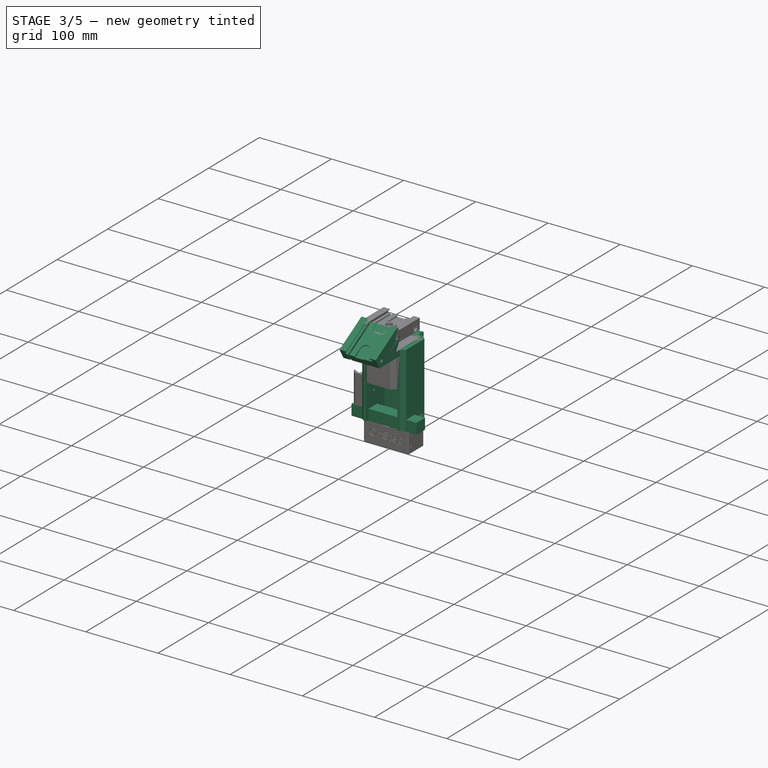
[diagram: stage 3 of 5 — iso view after this stage's code; geometry added in this stage tinted green]
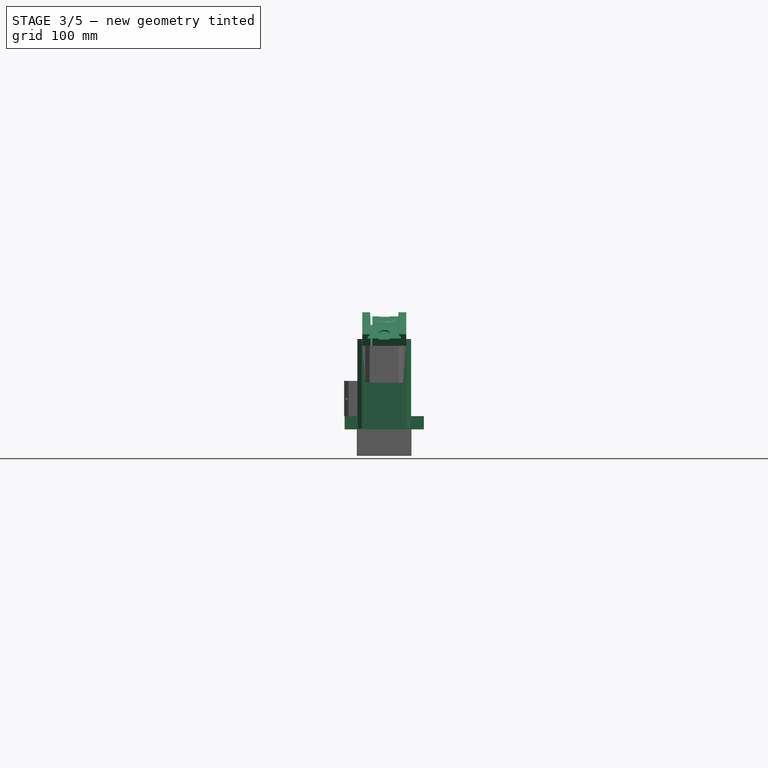
[diagram: stage 3 of 5 — front view after this stage's code; geometry added in this stage tinted green]
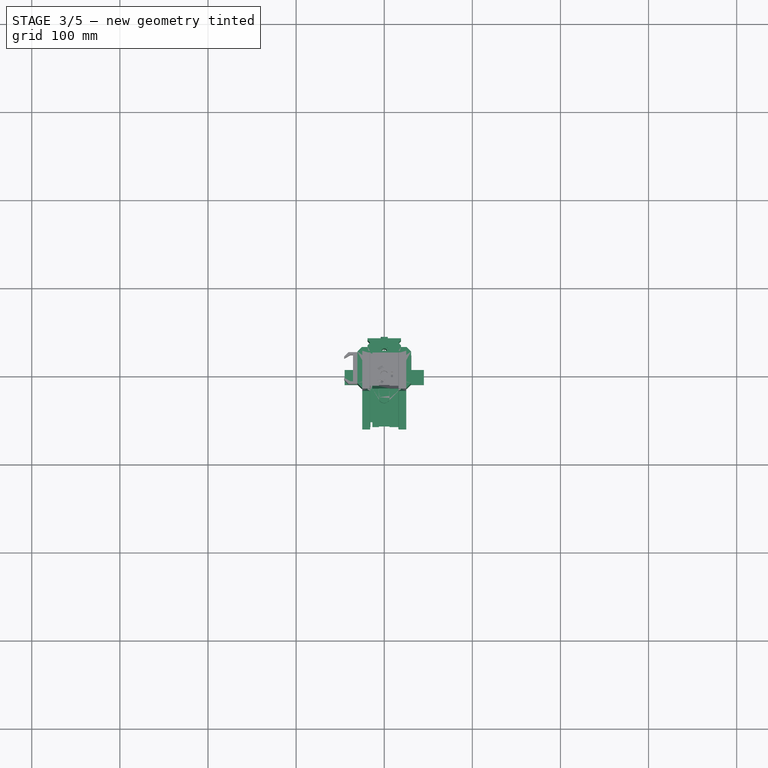
[diagram: stage 3 of 5 — top view after this stage's code; geometry added in this stage tinted green]
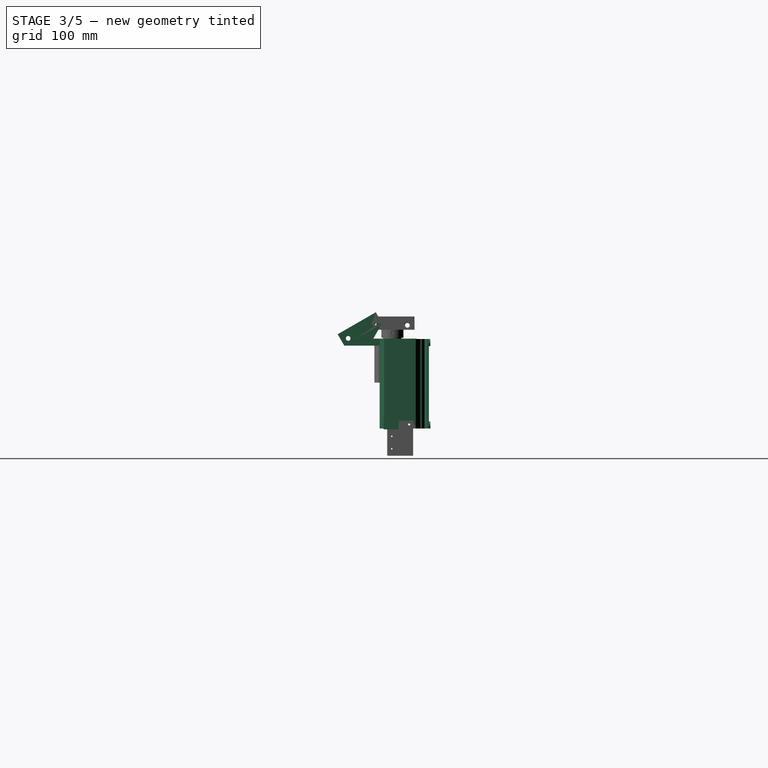
[diagram: stage 3 of 5 — right view after this stage's code; geometry added in this stage tinted green]
FEATURE [Part::Cylinder] Cylinder014005550  label="Válec480"
  Angle = 360
  AttacherType = Attacher::AttachEngine3D
  Height = 10
  Placement = pos=(12,20,4) rot=(0,1,0;0.785398rad)
  Radius = 1.4
FEATURE [Part::Box] Box108  label="Krychle088"
  AttacherType = Attacher::AttachEngine3D
  Height = 15
  Length = 90
  Placement = pos=(-45,-10,-52) rot=(0,0,1;0rad)
  Width = 17
FEATURE [Part::Cylinder] Cylinder014005549  label="Válec479"
  Angle = 360
  AttacherType = Attacher::AttachEngine3D
  Height = 10
  Placement = pos=(-12,20,4) rot=(0,-1,0;0.785398rad)
  Radius = 1.4
FEATURE [App::Part] Part040  label="DIY telescope"
  Group = -> [Cut061176,Cylinder014005551,Cylinder014005552,Box076,Box075,Fusion121,Cut061173,Cylinder014005556,Cylinder014005561,Cylinder014005564,Cylinder014005563,Cylinder014005559,Cylinder014005555,Cylinder014005560,Box099,Cut061023,Cut061177,Box102,Fusion122,Fusion123,Cylinder014005558,Cylinder014005562,Cylinder014005565,Cylinder014005557,Cut061024,Cut061025,Cylinder014005566,Fusion124,Fusion001028,+49 more]
  License = CC BY 3.0
  LicenseURL = http://creativecommons.org/licenses/by/3.0/
  Origin = -> Origin040
  Placement = pos=(0,113,-118) rot=(0,0,1;3.14159rad)
FEATURE [Sketcher::SketchObject] Sketch039
  MapMode = 5
  Placement = pos=(0,0,60) rot=(0,0,1;0rad)
  sketch-geometry (6):
    g0: LineSegment StartX=-18.9734 StartY=34.0308 StartZ=0 EndX=-16.0253 EndY=36.9748 EndZ=0
    g1: LineSegment StartX=18.996 StartY=34.0308 StartZ=0 EndX=16.044 EndY=36.9748 EndZ=0
    g2: LineSegment StartX=18.996 StartY=34.0308 StartZ=0 EndX=-18.9734 EndY=34.0308 EndZ=0
    g3: LineSegment StartX=-18.9734 StartY=40.0311 StartZ=0 EndX=-16.0253 EndY=36.9748 EndZ=0
    g4: LineSegment StartX=16.044 StartY=36.9748 StartZ=0 EndX=18.9109 EndY=40.0311 EndZ=0
    g5: LineSegment StartX=-18.9734 StartY=40.0311 StartZ=0 EndX=18.9109 EndY=40.0311 EndZ=0
  constraints (7):
    c: Coincident(g2,g1)
    c: Coincident(g2,g0)
    c: Horizontal(g2)
    c: Coincident(g3,g0)
    c: Coincident(g5,g3)
    c: Coincident(g5,g4)
    c: Horizontal(g5)
FEATURE [Sketcher::SketchObject] Sketch040
  MapMode = 5
  Placement = pos=(0,0,60) rot=(0,0,1;0rad)
  sketch-geometry (6):
    g0: LineSegment StartX=-18.9734 StartY=34.0308 StartZ=0 EndX=-16.0253 EndY=36.9748 EndZ=0
    g1: LineSegment StartX=18.996 StartY=34.0308 StartZ=0 EndX=16.044 EndY=36.9748 EndZ=0
    g2: LineSegment StartX=18.996 StartY=34.0308 StartZ=0 EndX=-18.9734 EndY=34.0308 EndZ=0
    g3: LineSegment StartX=-18.9734 StartY=40.0311 StartZ=0 EndX=-16.0253 EndY=36.9748 EndZ=0
    g4: LineSegment StartX=16.044 StartY=36.9748 StartZ=0 EndX=18.9109 EndY=40.0311 EndZ=0
    g5: LineSegment StartX=-18.9734 StartY=40.0311 StartZ=0 EndX=18.9109 EndY=40.0311 EndZ=0
  constraints (7):
    c: Coincident(g2,g1)
    c: Coincident(g2,g0)
    c: Horizontal(g2)
    c: Coincident(g3,g0)
    c: Coincident(g5,g3)
    c: Coincident(g5,g4)
    c: Horizontal(g5)
FEATURE [Sketcher::SketchObject] Sketch041
  MapMode = 5
  Placement = pos=(0,0,60) rot=(0,0,1;0rad)
  sketch-geometry (6):
    g0: LineSegment StartX=-18.9734 StartY=34.0308 StartZ=0 EndX=-16.0253 EndY=36.9748 EndZ=0
    g1: LineSegment StartX=18.996 StartY=34.0308 StartZ=0 EndX=16.044 EndY=36.9748 EndZ=0
    g2: LineSegment StartX=18.996 StartY=34.0308 StartZ=0 EndX=-18.9734 EndY=34.0308 EndZ=0
    g3: LineSegment StartX=-18.9734 StartY=40.0311 StartZ=0 EndX=-16.0253 EndY=36.9748 EndZ=0
    g4: LineSegment StartX=16.044 StartY=36.9748 StartZ=0 EndX=18.9109 EndY=40.0311 EndZ=0
    g5: LineSegment StartX=-18.9734 StartY=40.0311 StartZ=0 EndX=18.9109 EndY=40.0311 EndZ=0
  constraints (7):
    c: Coincident(g2,g1)
    c: Coincident(g2,g0)
    c: Horizontal(g2)
    c: Coincident(g3,g0)
    c: Coincident(g5,g3)
    c: Coincident(g5,g4)
    c: Horizontal(g5)
FEATURE [Part::Box] Box109  label="Krychle091"
  AttacherType = Attacher::AttachEngine3D
  Height = 15
  Length = 50
  Placement = pos=(-25,-25,64) rot=(0,0,1;0rad)
  Width = 50
FEATURE [Part::Box] Box110  label="Krychle092"
  AttacherType = Attacher::AttachEngine3D
  Height = 20
  Length = 60
  Placement = pos=(-14,-30,62) rot=(0,0,1;0rad)
  Width = 60
FEATURE [Part::Box] Box111  label="Krychle096"
  AttacherType = Attacher::AttachEngine3D
  Height = 2.5
  Length = 12
  Placement = pos=(-6,-25,71) rot=(0,0,1;0rad)
  Width = 13
FEATURE [Part::Box] Box112  label="Krychle093"
  AttacherType = Attacher::AttachEngine3D
  Height = 15
  Length = 50
  Placement = pos=(-25,-25,64) rot=(0,0,1;0rad)
  Width = 50
FEATURE [Part::Cylinder] Cylinder014005644  label="Válec564"
  Angle = 360
  AttacherType = Attacher::AttachEngine3D
  Height = 60
  Placement = pos=(-30,17,69) rot=(0,1,0;1.5708rad)
  Radius = 2.7
FEATURE [Part::Box] Box113  label="Krychle099"
  AttacherType = Attacher::AttachEngine3D
  Height = 8
  Length = 50
  Placement = pos=(-25,0,3) rot=(0,0,1;0rad)
  Width = 82
FEATURE [Part::Cylinder] Cylinder014005353  label="Válec559"
  Angle = 360
  AttacherType = Attacher::AttachEngine3D
  Height = 60
  Placement = pos=(-30,17,69) rot=(0,1,0;1.5708rad)
  Radius = 2.7
FEATURE [Part::Box] Box114  label="Krychle089"
  AttacherType = Attacher::AttachEngine3D
  Height = 112
  Length = 38
  Placement = pos=(-19,32,-52) rot=(0,0,1;0rad)
  Width = 10
FEATURE [Part::Box] Box115  label="Krychle090"
  AttacherType = Attacher::AttachEngine3D
  Height = 112
  Length = 38
  Placement = pos=(-19,34,-52) rot=(0,0,1;0rad)
  Width = 6
FEATURE [Part::Cut] Cut061230
  Base = -> Box114
  Tool = -> Box115
FEATURE [Part::Cylinder] Cylinder014005640  label="Válec560"
  Angle = 360
  AttacherType = Attacher::AttachEngine3D
  Height = 2.5
  Placement = pos=(0,-12,71) rot=(0,0,1;0rad)
  Radius = 6
FEATURE [Part::Cylinder] Cylinder014005641  label="Válec561"
  Angle = 360
  AttacherType = Attacher::AttachEngine3D
  Height = 2.5
  Placement = pos=(0,-12,71) rot=(0,0,1;0rad)
  Radius = 6
FEATURE [Part::Cylinder] Cylinder014005642  label="Válec562"
  Angle = 360
  AttacherType = Attacher::AttachEngine3D
  Height = 2.5
  Placement = pos=(0,-12,71) rot=(0,0,1;0rad)
  Radius = 6
FEATURE [Part::Box] Box116  label="Krychle094"
  AttacherType = Attacher::AttachEngine3D
  Height = 112
  Length = 38
  Placement = pos=(-19,34,-52) rot=(0,0,1;0rad)
  Width = 6
FEATURE [Part::Box] Box117  label="Krychle095"
  AttacherType = Attacher::AttachEngine3D
  Height = 15
  Length = 2
  Placement = pos=(-15.5,-26,61) rot=(0,0,1;0rad)
  Width = 52
FEATURE [Part::Box] Box118  label="Krychle097"
  AttacherType = Attacher::AttachEngine3D
  Height = 2.5
  Length = 12
  Placement = pos=(-6,-25,71) rot=(0,0,1;0rad)
  Width = 13
FEATURE [Part::Cylinder] Cylinder014005643  label="Válec563"
  Angle = 360
  AttacherType = Attacher::AttachEngine3D
  Height = 18
  Placement = pos=(0,70,0) rot=(0,0,1;0rad)
  Radius = 3
FEATURE [Part::Box] Box119  label="Krychle098"
  AttacherType = Attacher::AttachEngine3D
  Height = 0.6
  Length = 15
  Placement = pos=(-28.5,-30,63.6) rot=(0,0,1;0rad)
  Width = 60
FEATURE [Part::Box] Box120  label="Krychle104"
  AttacherType = Attacher::AttachEngine3D
  Height = 15
  Length = 2
  Placement = pos=(-15.5,-26,61) rot=(0,0,1;0rad)
  Width = 52
FEATURE [Part::Box] Box121  label="Krychle105"
  AttacherType = Attacher::AttachEngine3D
  Height = 15
  Length = 50
  Placement = pos=(-25,-25,64) rot=(0,0,1;0rad)
  Width = 50
FEATURE [Part::Box] Box122  label="Krychle106"
  AttacherType = Attacher::AttachEngine3D
  Height = 112
  Length = 38
  Placement = pos=(-19,32,-52) rot=(0,0,1;0rad)
  Width = 10
FEATURE [Part::Cylinder] Cylinder014005650  label="Válec570"
  Angle = 360
  AttacherType = Attacher::AttachEngine3D
  Height = 2.5
  Placement = pos=(0,-12,71) rot=(0,0,1;0rad)
  Radius = 6
FEATURE [Part::Cylinder] Cylinder014005648  label="Válec568"
  Angle = 360
  AttacherType = Attacher::AttachEngine3D
  Height = 60
  Placement = pos=(-30,-17,69) rot=(0,1,0;1.5708rad)
  Radius = 2.7
FEATURE [Part::Box] Box123  label="Krychle107"
  AttacherType = Attacher::AttachEngine3D
  Height = 15
  Length = 2
  Placement = pos=(-15.5,-26,61) rot=(0,0,1;0rad)
  Width = 52
FEATURE [Part::Box] Box124  label="Krychle102"
  AttacherType = Attacher::AttachEngine3D
  Height = 112
  Length = 38
  Placement = pos=(-19,32,-52) rot=(0,0,1;0rad)
  Width = 10
FEATURE [Part::Cylinder] Cylinder014005646  label="Válec566"
  Angle = 360
  AttacherType = Attacher::AttachEngine3D
  Height = 18
  Placement = pos=(0,45,3) rot=(0,0,1;0rad)
  Radius = 4.35
FEATURE [Part::Box] Box125  label="Krychle100"
  AttacherType = Attacher::AttachEngine3D
  Height = 15
  Length = 2
  Placement = pos=(-15.5,-26,64) rot=(0,0,1;0rad)
  Width = 52
FEATURE [Part::Cylinder] Cylinder014005649  label="Válec569"
  Angle = 360
  AttacherType = Attacher::AttachEngine3D
  Height = 10
  Placement = pos=(0,15,48) rot=(0,0,1;0rad)
  Radius = 5.2
FEATURE [Part::Cylinder] Cylinder014005651  label="Válec571"
  Angle = 360
  AttacherType = Attacher::AttachEngine3D
  Height = 2.5
  Placement = pos=(0,-12,71) rot=(0,0,1;0rad)
  Radius = 6
FEATURE [Part::Cylinder] Cylinder014005647  label="Válec567"
  Angle = 360
  AttacherType = Attacher::AttachEngine3D
  Height = 2.5
  Placement = pos=(0,-12,71) rot=(0,0,1;0rad)
  Radius = 6
FEATURE [Part::Box] Box126  label="Krychle108"
  AttacherType = Attacher::AttachEngine3D
  Height = 112
  Length = 38
  Placement = pos=(-19,34,-52) rot=(0,0,1;0rad)
  Width = 6
FEATURE [Part::Box] Box045  label="Krychle038"
  AttacherType = Attacher::AttachEngine3D
  Height = 2.5
  Length = 12
  Placement = pos=(-6,-25,71) rot=(0,0,1;0rad)
  Width = 13
FEATURE [Part::Cylinder] Cylinder014005653  label="Válec573"
  Angle = 360
  AttacherType = Attacher::AttachEngine3D
  Height = 60
  Placement = pos=(-30,17,69) rot=(0,1,0;1.5708rad)
  Radius = 2.7
FEATURE [Part::Cylinder] Cylinder014005645  label="Válec565"
  Angle = 360
  AttacherType = Attacher::AttachEngine3D
  Height = 18
  Placement = pos=(0,45,6) rot=(0,0,1;0rad)
  Radius = 4.9
FEATURE [Part::Cylinder] Cylinder014005654  label="Válec574"
  Angle = 360
  AttacherType = Attacher::AttachEngine3D
  Height = 60
  Placement = pos=(-30,-17,69) rot=(0,1,0;1.5708rad)
  Radius = 2.7
FEATURE [Part::Box] Box127  label="Krychle103"
  AttacherType = Attacher::AttachEngine3D
  Height = 2.5
  Length = 12
  Placement = pos=(-6,-25,71) rot=(0,0,1;0rad)
  Width = 13
FEATURE [Part::Box] Box128  label="Krychle101"
  AttacherType = Attacher::AttachEngine3D
  Height = 20
  Length = 60
  Placement = pos=(-14,-30,62) rot=(0,0,1;0rad)
  Width = 60
FEATURE [Part::Cylinder] Cylinder014005652  label="Válec572"
  Angle = 360
  AttacherType = Attacher::AttachEngine3D
  Height = 60
  Placement = pos=(-30,-17,69) rot=(0,1,0;1.5708rad)
  Radius = 2.7
FEATURE [Part::Box] Box129  label="Krychle109"
  AttacherType = Attacher::AttachEngine3D
  Height = 2.5
  Length = 12
  Placement = pos=(-6,-25,71) rot=(0,0,1;0rad)
  Width = 13
FEATURE [Part::Box] Box130  label="Krychle110"
  AttacherType = Attacher::AttachEngine3D
  Height = 2.5
  Length = 12
  Placement = pos=(-6,-25,71) rot=(0,0,1;0rad)
  Width = 13
FEATURE [Part::Extrusion] Extrude066
  Base = -> Sketch040
  Dir = (0,0,1)
  DirMode = 2
  FaceMakerClass = Part::FaceMakerBullseye
  LengthFwd = -112
  LengthRev = 0
  Solid = true
  Symmetric = false
FEATURE [Part::Extrusion] Extrude067
  Base = -> Sketch041
  Dir = (0,0,1)
  DirMode = 2
  FaceMakerClass = Part::FaceMakerBullseye
  LengthFwd = -112
  LengthRev = 0
  Solid = true
  Symmetric = false
FEATURE [Part::Extrusion] Extrude065
  Base = -> Sketch039
  Dir = (0,0,1)
  DirMode = 2
  FaceMakerClass = Part::FaceMakerBullseye
  LengthFwd = -112
  LengthRev = 0
  Solid = true
  Symmetric = false
FEATURE [Part::MultiFuse] Fusion001032
  Placement = pos=(0,0,1) rot=(0,0,1;3.14159rad)
  Shapes = -> [Box118,Cylinder014005641]
FEATURE [Part::MultiFuse] Fusion001033
  Shapes = -> [Cylinder014005353,Cylinder014005654]
FEATURE [Part::MultiFuse] Fusion394
  Placement = pos=(0,0,1) rot=(0,0,1;3.14159rad)
  Shapes = -> [Box130,Cylinder014005640]
FEATURE [Part::MultiFuse] Fusion001034
  Shapes = -> [Cylinder014005653,Cylinder014005652]
FEATURE [Part::MultiFuse] Fusion391
  Shapes = -> [Box119,Box125]
FEATURE [Part::MultiFuse] Fusion001035
  Placement = pos=(0,0,1) rot=(0,0,1;3.14159rad)
  Shapes = -> [Box129,Cylinder014005651]
FEATURE [Part::MultiFuse] Fusion393  label="Arca plate base013"
  Placement = pos=(0,-6.5,115.5) rot=(-1,0,0;1.5708rad)
  Shapes = -> [Extrude065,Cut061230]
FEATURE [Part::Cut] Cut061231  label="Arca sw 006"
  Base = -> Box109
  Tool = -> Fusion393
FEATURE [Part::Cut] Cut061227
  Base = -> Cut061231
  Tool = -> Box120
FEATURE [Sketcher::SketchObject] Sketch038
  MapMode = 5
  Placement = pos=(25,0,0) rot=(0.57735,0.57735,0.57735;2.0944rad)
  Support = -> [Cut061227]
  sketch-geometry (3):
    g0: LineSegment StartX=-8.69466 StartY=63.7145 StartZ=0 EndX=24.7095 EndY=63.7145 EndZ=0
    g1: LineSegment StartX=24.7095 StartY=63.7145 StartZ=0 EndX=8 EndY=54 EndZ=0
    g2: LineSegment StartX=8 StartY=54 StartZ=0 EndX=-8.69466 EndY=63.7145 EndZ=0
  constraints (4):
    c: Horizontal(g0)
    c: Coincident(g0,g1)
    c: Coincident(g1,g2)
    c: Coincident(g2,g0)
FEATURE [Part::Extrusion] Extrude068
  Base = -> Sketch038
  Dir = (1,0,0)
  DirMode = 2
  FaceMakerClass = Part::FaceMakerBullseye
  LengthFwd = -50
  LengthRev = 0
  Placement = pos=(0,-0.5,0.5) rot=(0,0,1;0rad)
  Solid = true
  Symmetric = false
FEATURE [Part::MultiFuse] Fusion387
  Shapes = -> [Cylinder014005644,Cylinder014005648]
FEATURE [Part::MultiFuse] Fusion207
  Placement = pos=(0,0,1) rot=(0,0,1;0rad)
  Shapes = -> [Box045,Cylinder014005650,Fusion001035]
FEATURE [Part::MultiFuse] Fusion001037
  Placement = pos=(0,0,1) rot=(0,0,1;0rad)
  Shapes = -> [Box111,Cylinder014005642,Fusion001032]
FEATURE [Part::MultiFuse] Fusion001036  label="diry012"
  Shapes = -> [Fusion001033,Fusion001037]
FEATURE [Part::MultiFuse] Fusion001038  label="diry009"
  Shapes = -> [Fusion001034,Fusion207]
FEATURE [Part::MultiFuse] Fusion389
  Shapes = -> [Cylinder014005643,Cylinder014005645,Cylinder014005646]
FEATURE [Part::Cut] Cut061232  label="deska009"
  Base = -> Box113
  Placement = pos=(0,-26.5,61.5) rot=(-1,0,0;0.523599rad)
  Tool = -> Fusion389
FEATURE [Part::MultiFuse] Fusion388
  Shapes = -> [Cut061227,Extrude068,Cut061232]
FEATURE [Part::MultiFuse] Fusion392
  Placement = pos=(0,0,1) rot=(0,0,1;0rad)
  Shapes = -> [Box127,Cylinder014005647,Fusion394]
FEATURE [Part::MultiFuse] Fusion390  label="diry011"
  Shapes = -> [Fusion387,Fusion392]
FEATURE [Part::Cut] Cut061228
  Base = -> Fusion388
  Tool = -> Fusion390
FEATURE [Part::Cut] Cut061229  label="wood-tripod-plate"
  Base = -> Cut061228
  Placement = pos=(0,-1,0) rot=(1,0,0;0.523599rad)
  Tool = -> Fusion391
FEATURE [Part::Cut] Cut061237
  Base = -> Box124
  Tool = -> Box116
FEATURE [Part::MultiFuse] Fusion001031  label="Arca plate base011"
  Placement = pos=(0,-6.5,115.5) rot=(-1,0,0;1.5708rad)
  Shapes = -> [Extrude067,Cut061237]
FEATURE [Part::Cut] Cut061236  label="Arca sw 008"
  Base = -> Box112
  Tool = -> Fusion001031
FEATURE [Part::Cut] Cut061098037
  Base = -> Cut061236
  Tool = -> Box117
FEATURE [Part::Cut] Cut061086  label="wod-tripod-plate"
  Base = -> Cut061229
  Tool = -> Cylinder014005649
FEATURE [Part::Cut] Cut061098039
  Base = -> Box122
  Tool = -> Box126
FEATURE [Part::MultiFuse] Fusion208  label="Arca plate base012"
  Placement = pos=(0,-6.5,115.5) rot=(-1,0,0;1.5708rad)
  Shapes = -> [Extrude066,Cut061098039]
FEATURE [Part::Cut] Cut061234  label="Arca sw 007"
  Base = -> Box121
  Tool = -> Fusion208
FEATURE [Part::Cut] Cut061098038
  Base = -> Cut061234
  Tool = -> Box123
FEATURE [Part::Cut] Cut061098036
  Base = -> Cut061098038
  Tool = -> Fusion001038
FEATURE [Part::Cut] Cut061233  label="SwissAcaB"
  Base = -> Cut061098036
  Placement = pos=(0,-1,0) rot=(1,0,0;0.523599rad)
  Tool = -> Box128
FEATURE [Part::Cut] Cut061238  label="wood-tripod-arca"
  Base = -> Cut061086
  Tool = -> Cut061233
FEATURE [Part::Cut] Cut061235
  Base = -> Cut061098037
  Tool = -> Fusion001036
FEATURE [Part::Cut] Cut061096  label="SwissAcaB001"
  Base = -> Cut061235
  Placement = pos=(0,-1,0) rot=(1,0,0;0.523599rad)
  Tool = -> Box110
FEATURE [App::Part] Part
  Group = -> [Cylinder014005652,Box129,Box128,Box130,Box127,Cut061233,Cut061229,Cut061232,Cut061228,Cut061231,Cut061098036,Cut061227,Cut061230,Cut061098038,Cut061086,Cut061234,Cut061098039,Extrude068,Extrude065,Extrude066,Sketch038,Sketch039,Sketch040,Cylinder014005648,Box113,Box125,Box119,Cylinder014005640,Box115,Box121,Cylinder014005644,Box122,Cylinder014005650,Box109,Cylinder014005643,Box114,Box120,Box123,+45 more]
  License = CC BY 3.0
  LicenseURL = http://creativecommons.org/licenses/by/3.0/
  Origin = -> Origin
  Placement = pos=(0,0,0) rot=(0,1,0;3.14159rad)
FEATURE [App::Part] Part053  label="wood-tripod-plate001"
  Group = -> [Part]
  License = CC BY 3.0
  LicenseURL = http://creativecommons.org/licenses/by/3.0/
  Origin = -> Origin053
  Placement = pos=(0,-116,-2) rot=(1,0,0;2.0944rad)
FEATURE [Part::Feature] Cut061098044  label="Motor PG101"
  Placement = pos=(0,0,1) rot=(0,0,1;0rad)
  shape: bbox 42.3 x 42.3 x 110 mm, 26 faces (baked)
FEATURE [Part::Feature] Part__Feature  label="17HS15-1684S-PG100"
  shape: bbox 42.88 x 42.36 x 45 mm, 226 faces (baked)
FEATURE [Part::Feature] Part__Feature001  label="17HS15-1684S-PG101"
  shape: bbox 36 x 36 x 32.7 mm, 6 faces (baked)
FEATURE [Part::Feature] Part__Feature002  label="17HS15-1684S-PG102"
  shape: bbox 37.34 x 37.34 x 25 mm, 115 faces (baked)
FEATURE [App::Part] _7HS15_1684S_PG100
  Group = -> [Part__Feature,Part__Feature001,Part__Feature002,Cut061098044]
  License = CC BY 3.0
  LicenseURL = http://creativecommons.org/licenses/by/3.0/
  Origin = -> Origin055
  Placement = pos=(0,0,1) rot=(0,0,1;-1.5708rad)
FEATURE [Part::Cylinder] Cylinder014005671  label="Válec590"
  Angle = 360
  AttacherType = Attacher::AttachEngine3D
  Height = 59
  Placement = pos=(0,0,-18) rot=(0,0,1;0rad)
  Radius = 18.5
FEATURE [Part::Box] Box142  label="Krychle119"
  AttacherType = Attacher::AttachEngine3D
  Height = 49
  Length = 43
  Placement = pos=(-21.5,-20.5,1) rot=(0,0,1;0rad)
  Width = 42
FEATURE [Part::Feature] Chamfer008010  label="Zaklad007"
  shape: bbox 61 x 63.5 x 101.5 mm, 101 faces (baked)
FEATURE [Part::Cylinder] Cylinder014005674  label="Válec593"
  Angle = 360
  AttacherType = Attacher::AttachEngine3D
  Height = 40
  Placement = pos=(-40,1,-17.5) rot=(0,1,0;1.5708rad)
  Radius = 1.2
FEATURE [Part::Box] Box143  label="Krychle120"
  AttacherType = Attacher::AttachEngine3D
  Height = 13
  Length = 2
  Placement = pos=(29,-4.5,-55) rot=(0,0,1;0rad)
  Width = 28
FEATURE [Part::Cylinder] Cylinder014005675  label="Válec594"
  Angle = 360
  AttacherType = Attacher::AttachEngine3D
  Height = 74
  Placement = pos=(-40,19,-46.5) rot=(0,1,0;1.5708rad)
  Radius = 1.2
FEATURE [Part::Box] Box144  label="Krychle121"
  AttacherType = Attacher::AttachEngine3D
  Height = 13
  Length = 2
  Placement = pos=(-31,-4.5,-55) rot=(0,0,1;0rad)
  Width = 28
FEATURE [Part::Cylinder] Cylinder014005676  label="Válec595"
  Angle = 360
  AttacherType = Attacher::AttachEngine3D
  Height = 74
  Placement = pos=(-40,0,-46.5) rot=(0,1,0;1.5708rad)
  Radius = 1.2
FEATURE [Part::Cylinder] Cylinder014005677  label="Válec596"
  Angle = 360
  AttacherType = Attacher::AttachEngine3D
  Height = 40
  Placement = pos=(-40,16,-17.5) rot=(0,1,0;1.5708rad)
  Radius = 1.2
FEATURE [Part::MultiFuse] Fusion001052
  Shapes = -> [Cylinder014005676,Cylinder014005675]
FEATURE [Part::MultiFuse] Fusion001053
  Shapes = -> [Box143,Box144]
FEATURE [Part::MultiFuse] Fusion001051
  Shapes = -> [Fusion001053,Fusion001052]
FEATURE [Part::Cut] Cut061098047  label="Zaklad 002"
  Base = -> Chamfer008010
  Tool = -> Fusion001051
FEATURE [Part::MultiFuse] Fusion001054
  Shapes = -> [Cylinder014005674,Cylinder014005677]
FEATURE [Part::Cut] Cut061098046  label="RA Zaklad002"
  Base = -> Cut061098047
  Tool = -> Fusion001054
FEATURE [Part::Chamfer] Chamfer
  Base = -> Box142
  Edges = 2 edges r=5: [Edge1,Edge5]
FEATURE [Part::Box] Box145  label="Krychle122"
  AttacherType = Attacher::AttachEngine3D
  Height = 10
  Length = 43
  Placement = pos=(-21.5,-20.5,0) rot=(0,0,1;0rad)
  Width = 42
FEATURE [Part::Cylinder] Cylinder014005679  label="Válec598"
  Angle = 360
  AttacherType = Attacher::AttachEngine3D
  Height = 50
  Placement = pos=(9.9,9.9,0) rot=(0,0,1;0rad)
  Radius = 1.6
FEATURE [Part::Cylinder] Cylinder014005680  label="Válec599"
  Angle = 360
  AttacherType = Attacher::AttachEngine3D
  Height = 50
  Placement = pos=(-9.9,9.9,0) rot=(0,0,1;0rad)
  Radius = 1.6
FEATURE [Part::Cylinder] Cylinder014005681  label="Válec600"
  Angle = 360
  AttacherType = Attacher::AttachEngine3D
  Height = 50
  Placement = pos=(-9.9,-9.9,0) rot=(0,0,1;0rad)
  Radius = 1.6
FEATURE [Part::Cylinder] Cylinder014005682  label="Válec601"
  Angle = 360
  AttacherType = Attacher::AttachEngine3D
  Height = 50
  Placement = pos=(9.9,-9.9,0) rot=(0,0,1;0rad)
  Radius = 1.6
FEATURE [Part::Cylinder] Cylinder014005683  label="dira stred003"
  Angle = 360
  AttacherType = Attacher::AttachEngine3D
  Height = 50
  Radius = 11
FEATURE [Part::MultiFuse] Fusion001055  label="diry014"
  Shapes = -> [Cylinder014005680,Cylinder014005679,Cylinder014005683,Cylinder014005681,Cylinder014005682]
FEATURE [Part::Chamfer] Chamfer008011
  Base = -> Box145
  Edges = 2 edges r=5: [Edge1,Edge5]
FEATURE [Part::Cut] Cut061098048  label="Horni ucjyt002"
  Base = -> Chamfer008011
  Placement = pos=(0,0,40.5) rot=(0,0,1;0rad)
  Tool = -> Fusion001055
FEATURE [Part::Cylinder] Cylinder  label="Válec"
  Angle = 360
  AttacherType = Attacher::AttachEngine3D
  Height = 10
  Placement = pos=(0,0,40.5) rot=(0,0,1;0rad)
  Radius = 33
FEATURE [Part::Cylinder] Cylinder014005684  label="Válec602"
  Angle = 360
  AttacherType = Attacher::AttachEngine3D
  Height = 10
  Placement = pos=(0,0,40.5) rot=(0,0,1;0rad)
  Radius = 20
FEATURE [Part::Cut] Cut061098049
  Base = -> Cylinder
  Tool = -> Cylinder014005684
FEATURE [Part::Cut] Cut061098050  label="RA Motor Holder"
  Base = -> Cut061098048
  Tool = -> Cut061098049
FEATURE [Part::Cylinder] Cylinder014005685  label="Válec603"
  Angle = 360
  AttacherType = Attacher::AttachEngine3D
  Height = 10
  Placement = pos=(0,0,40.5) rot=(0,0,1;0rad)
  Radius = 20
FEATURE [Part::MultiFuse] Fusion001056
  Shapes = -> [Cut061098046,Chamfer]
FEATURE [Part::MultiFuse] Fusion001057
  Shapes = -> [Cylinder014005685,Cylinder014005671]
FEATURE [Part::Cut] Cut061098052  label="RA Base"
  Base = -> Fusion001056
  Tool = -> Fusion001057
FEATURE [Part::MultiFuse] Fusion001058
  Shapes = -> [Fusion001059,Fusion001062]
FEATURE [Part::Cut] Cut061098055  label="Zaklad 003"
  Base = -> Chamfer008013
  Tool = -> Fusion001058
FEATURE [Part::Cut] Cut061098054  label="RA Zaklad003"
  Base = -> Cut061098055
  Tool = -> Fusion001060
FEATURE [Part::MultiFuse] Fusion001063
  Shapes = -> [Cut061098054,Chamfer008012]
FEATURE [Part::MultiFuse] Fusion001061
  Shapes = -> [Cylinder014005691,Cylinder014005687]
FEATURE [Part::Cut] Cut061098053  label="DEC Base"
  Base = -> Fusion001063
  Tool = -> Fusion001061
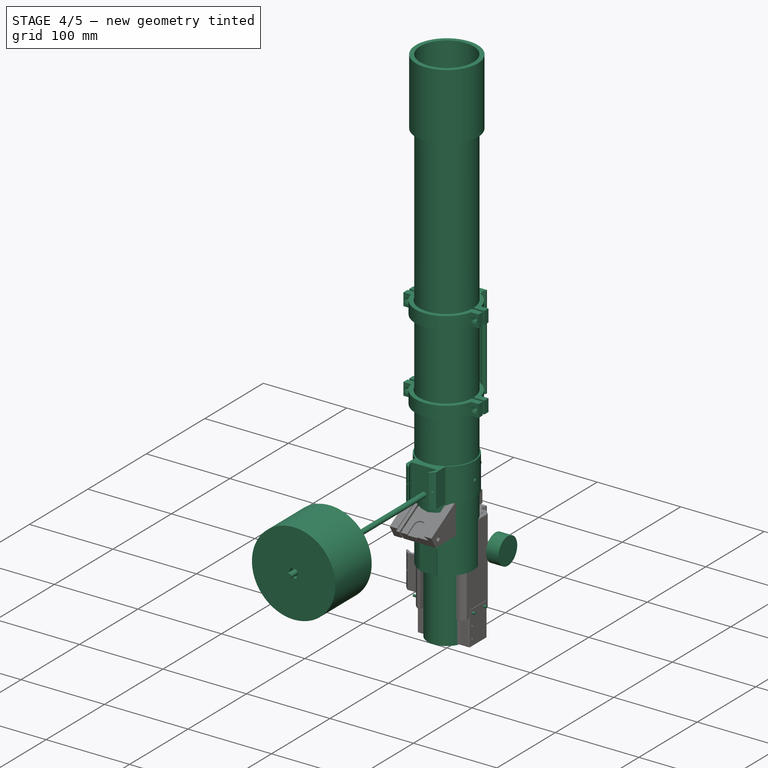
[diagram: stage 4 of 5 — iso view after this stage's code; geometry added in this stage tinted green]
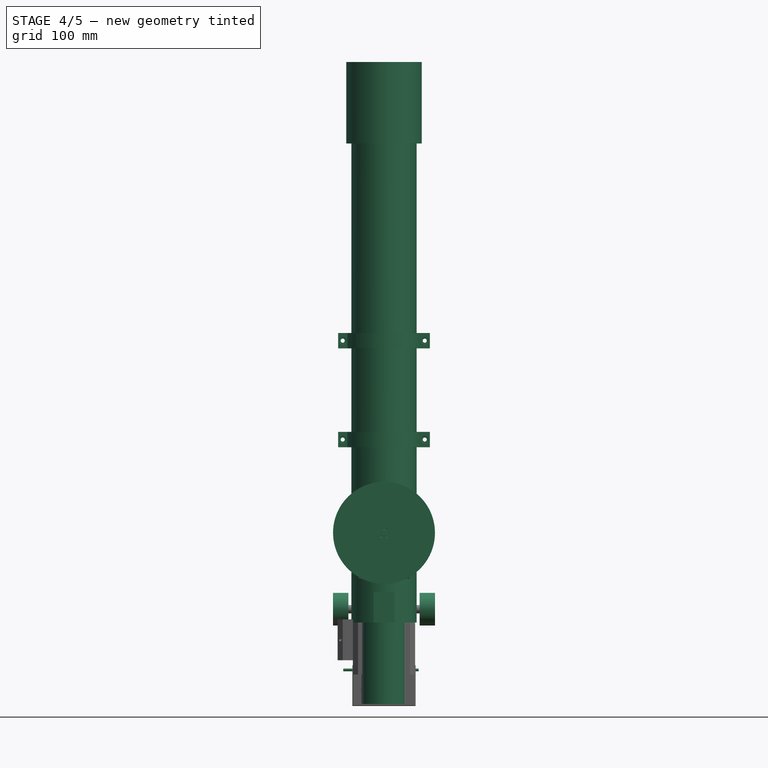
[diagram: stage 4 of 5 — front view after this stage's code; geometry added in this stage tinted green]
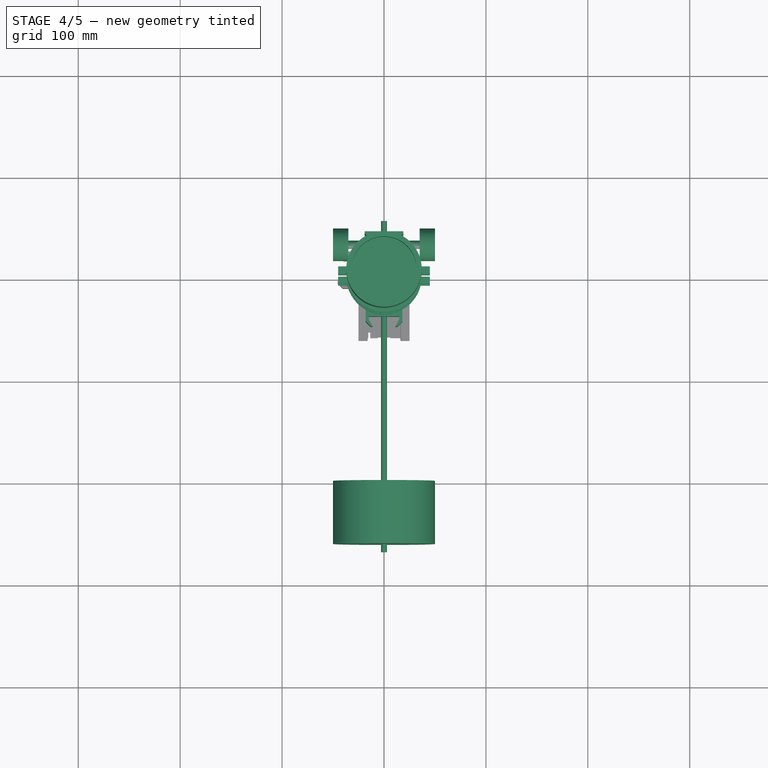
[diagram: stage 4 of 5 — top view after this stage's code; geometry added in this stage tinted green]
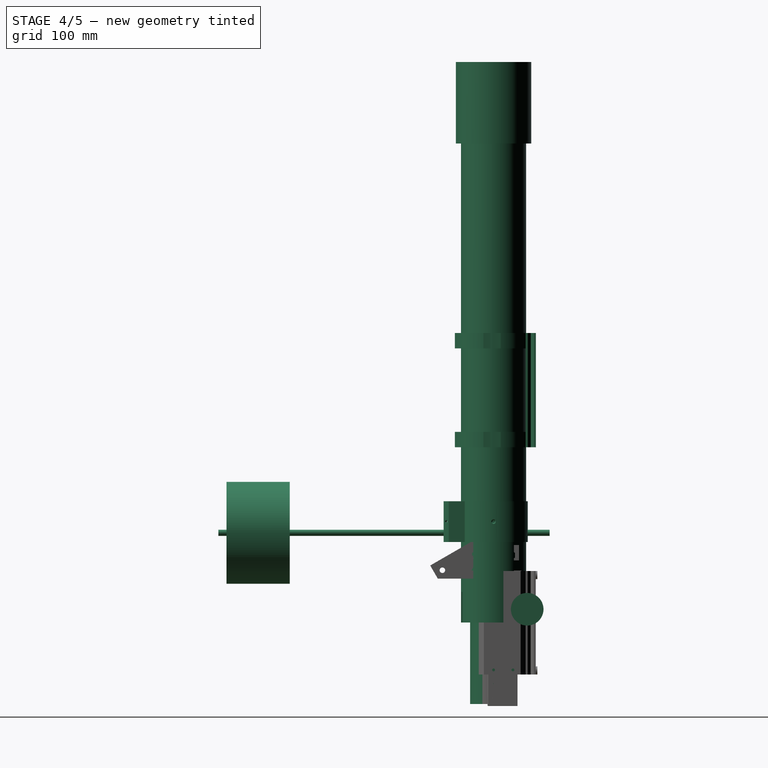
[diagram: stage 4 of 5 — right view after this stage's code; geometry added in this stage tinted green]
FEATURE [Part::Feature] Cut001001  label="polar finder"
  Placement = pos=(-9.5,-26.5,-25) rot=(0,0,-1;1.5708rad)
  shape: bbox 15 x 36 x 40 mm, 20 faces (baked)
FEATURE [Part::Cylinder] Cylinder014005345  label="M6 Rail"
  Angle = 360
  AttacherType = Attacher::AttachEngine3D
  Height = 325
  Placement = pos=(0,55,88) rot=(1,0,0;1.5708rad)
  Radius = 3
FEATURE [Part::Cylinder] Cylinder014005346  label="Válec317"
  Angle = 360
  AttacherType = Attacher::AttachEngine3D
  Height = 60
  Placement = pos=(0,-200,88) rot=(1,0,0;1.5708rad)
  Radius = 50
FEATURE [Part::Cylinder] Cylinder014005347  label="Válec318"
  Angle = 360
  AttacherType = Attacher::AttachEngine3D
  Height = 58
  Placement = pos=(0,-200,88) rot=(1,0,0;1.5708rad)
  Radius = 44
FEATURE [Part::Cut] Cut061093
  Base = -> Cylinder014005346
  Tool = -> Cylinder014005347
FEATURE [Part::Cylinder] Cylinder014005348  label="Válec319"
  Angle = 360
  AttacherType = Attacher::AttachEngine3D
  Height = 56
  Placement = pos=(0,-203.5,88) rot=(1,0,0;1.5708rad)
  Radius = 10
FEATURE [Part::MultiFuse] Fusion217  label="Zavazí dno"
  Placement = pos=(0,-2,0) rot=(0,0,1;0rad)
  Shapes = -> [Cut061093,Cylinder014005348]
FEATURE [Part::Cylinder] Cylinder014005349  label="Válec320"
  Angle = 360
  AttacherType = Attacher::AttachEngine3D
  Height = 2
  Placement = pos=(0,-200,88) rot=(1,0,0;1.5708rad)
  Radius = 50
FEATURE [Part::Cylinder] Cylinder014005350  label="Válec321"
  Angle = 360
  AttacherType = Attacher::AttachEngine3D
  Height = 3.5
  Placement = pos=(0,-200,88) rot=(1,0,0;1.5708rad)
  Radius = 44
FEATURE [Part::MultiFuse] Fusion218  label="zaazi vyko"
  Shapes = -> [Cylinder014005350,Cylinder014005349]
FEATURE [Part::Cylinder] Cylinder014005351  label="tyč závaží001"
  Angle = 360
  AttacherType = Attacher::AttachEngine3D
  Height = 350
  Placement = pos=(0,85,88) rot=(1,0,0;1.5708rad)
  Radius = 3
FEATURE [Part::FeaturePython] Nut013  label="M6-Nut006"  # Fasteners workbench fastener (typed FeaturePython)
  Placement = pos=(0,-258,88) rot=(1,0,0;1.5708rad)
  diameter = 8
  invert = false
  matchOuter = false
  offset = 0
  thread = false
  type = 1
FEATURE [Part::Feature] Screw006_solid  label="vyko M2.5x8"
  Placement = pos=(0,0,10) rot=(0,0,1;0rad)
  shape: bbox 4.5 x 8.524 x 4.5 mm, 11 faces (baked)
FEATURE [Part::Feature] Screw006_solid001  label="vyko M2.5x009"
  Placement = pos=(0,0,104) rot=(0,0,1;0rad)
  shape: bbox 4.5 x 8.524 x 4.5 mm, 11 faces (baked)
FEATURE [Part::Feature] Screw006_solid002  label="vyko M2.5x010"
  Placement = pos=(47,0,57) rot=(0,0,1;0rad)
  shape: bbox 4.5 x 8.524 x 4.5 mm, 11 faces (baked)
FEATURE [Part::Feature] Screw006_solid003  label="vyko M2.5x011"
  Placement = pos=(-47,0,57) rot=(0,0,1;0rad)
  shape: bbox 4.5 x 8.524 x 4.5 mm, 11 faces (baked)
FEATURE [Part::MultiFuse] Fusion219  label="srouby diry zavazi"
  Shapes = -> [Cylinder014005351,Screw006_solid,Screw006_solid001,Screw006_solid002,Screw006_solid003,Nut013]
FEATURE [Part::Cut] Cut061094  label="Weight  bottom"
  Base = -> Fusion217
  Tool = -> Fusion219
FEATURE [Part::FeaturePython] Nut014  label="M6-Nut005"  # Fasteners workbench fastener (typed FeaturePython)
  Placement = pos=(0,-238,88) rot=(1,0,0;1.5708rad)
  diameter = 8
  invert = false
  matchOuter = false
  offset = 0
  thread = false
  type = 1
FEATURE [Part::Cylinder] Cylinder014005352  label="tyč závaží002"
  Angle = 360
  AttacherType = Attacher::AttachEngine3D
  Height = 300
  Placement = pos=(0,55,88) rot=(1,0,0;1.5708rad)
  Radius = 3
FEATURE [Part::Feature] Screw006_solid004  label="vyko M2.5x012"
  Placement = pos=(0,0,104) rot=(0,0,1;0rad)
  shape: bbox 4.5 x 8.524 x 4.5 mm, 11 faces (baked)
FEATURE [Part::Feature] Screw006_solid005  label="vyko M2.5x013"
  Placement = pos=(47,0,57) rot=(0,0,1;0rad)
  shape: bbox 4.5 x 8.524 x 4.5 mm, 11 faces (baked)
FEATURE [Part::Feature] Screw006_solid006  label="vyko M2.5x014"
  Placement = pos=(-47,0,57) rot=(0,0,1;0rad)
  shape: bbox 4.5 x 8.524 x 4.5 mm, 11 faces (baked)
FEATURE [Part::Feature] Screw006_solid007  label="vyko M2.5x015"
  Placement = pos=(0,0,10) rot=(0,0,1;0rad)
  shape: bbox 4.5 x 8.524 x 4.5 mm, 11 faces (baked)
FEATURE [Part::MultiFuse] Fusion220  label="srouby diry zavazi001"
  Shapes = -> [Cylinder014005352,Screw006_solid007,Screw006_solid004,Screw006_solid005,Screw006_solid006,Nut014]
FEATURE [Part::Cut] Cut061095  label="Weight top"
  Base = -> Fusion218
  Tool = -> Fusion220
FEATURE [Part::Cylinder] Cylinder014005393  label="Válec375"
  Angle = 360
  AttacherType = Attacher::AttachEngine3D
  Height = 74
  Placement = pos=(-40,19,-46.5) rot=(0,1,0;1.5708rad)
  Radius = 1.4
FEATURE [Part::Cylinder] Cylinder014005394  label="Válec376"
  Angle = 360
  AttacherType = Attacher::AttachEngine3D
  Height = 74
  Placement = pos=(-40,0,-46.5) rot=(0,1,0;1.5708rad)
  Radius = 1.4
FEATURE [Part::Box] Box078  label="Krychle063"
  AttacherType = Attacher::AttachEngine3D
  Height = 13
  Length = 2
  Placement = pos=(-31,-4.5,-55) rot=(0,0,1;0rad)
  Width = 28
FEATURE [Part::Part2DObjectPython] ShapeString008  # Draft 2D object (typed FeaturePython)
  FontFile = <path>
  Placement = pos=(15.3452,-2,30.5072) rot=(1,0,0;1.5708rad)
  Size = 4
  String = Focuser
  Tracking = 0
FEATURE [Part::Part2DObjectPython] ShapeString009  # Draft 2D object (typed FeaturePython)
  FontFile = <path>
  Placement = pos=(15.3452,-2,30.5072) rot=(1,0,0;1.5708rad)
  Size = 4
  String = DEC
  Tracking = 0
FEATURE [Part::Box] Box079  label="RJ053"
  AttacherType = Attacher::AttachEngine3D
  Height = 13
  Length = 16
  Placement = pos=(34,-4,4.5) rot=(0,0,1;0rad)
  Width = 18.5
FEATURE [Part::Cylinder] Cylinder014005398  label="Válec380"
  Angle = 360
  AttacherType = Attacher::AttachEngine3D
  Height = 8
  Placement = pos=(3.6,21.25,0) rot=(0,0,1;0rad)
  Radius = 0.75
FEATURE [Part::Cylinder] Cylinder014005399  label="Válec381"
  Angle = 360
  AttacherType = Attacher::AttachEngine3D
  Height = 6.5
  Placement = pos=(53.5,21.25,0) rot=(0,0,1;0rad)
  Radius = 3.5
FEATURE [Part::Cylinder] Cylinder014005400  label="Válec382"
  Angle = 360
  AttacherType = Attacher::AttachEngine3D
  Height = 70
  Placement = pos=(-5,6,16.5) rot=(0,1,0;1.5708rad)
  Radius = 1
FEATURE [Part::Cylinder] Cylinder014005401  label="Válec383"
  Angle = 360
  AttacherType = Attacher::AttachEngine3D
  Height = 6.5
  Placement = pos=(3.5,6,0) rot=(0,0,1;0rad)
  Radius = 3.5
FEATURE [Part::Cylinder] Cylinder014005402  label="Válec384"
  Angle = 360
  AttacherType = Attacher::AttachEngine3D
  Height = 70
  Placement = pos=(-5,20,16.5) rot=(0,1,0;1.5708rad)
  Radius = 1
FEATURE [Part::Cylinder] Cylinder014005403  label="Válec385"
  Angle = 360
  AttacherType = Attacher::AttachEngine3D
  Height = 8
  Placement = pos=(53.5,6,0) rot=(0,0,1;0rad)
  Radius = 0.75
FEATURE [Part::Box] Box082  label="Krychle066"
  AttacherType = Attacher::AttachEngine3D
  Height = 26
  Length = 58
  Placement = pos=(-0.5,0,-3) rot=(0,0,1;0rad)
  Width = 29
FEATURE [Part::Cylinder] Cylinder014005404  label="Válec386"
  Angle = 360
  AttacherType = Attacher::AttachEngine3D
  Height = 6.5
  Placement = pos=(53.5,6,0) rot=(0,0,1;0rad)
  Radius = 3.5
FEATURE [Part::Cylinder] Cylinder014005405  label="Válec387"
  Angle = 360
  AttacherType = Attacher::AttachEngine3D
  Height = 8
  Placement = pos=(53.5,21.25,0) rot=(0,0,1;0rad)
  Radius = 0.75
FEATURE [Part::Cylinder] Cylinder014005406  label="Válec388"
  Angle = 360
  AttacherType = Attacher::AttachEngine3D
  Height = 8
  Placement = pos=(3.5,6,0) rot=(0,0,1;0rad)
  Radius = 0.7
FEATURE [Part::Box] Box083  label="RJ054"
  AttacherType = Attacher::AttachEngine3D
  Height = 14.5
  Length = 13
  Placement = pos=(7.5,-4,4.5) rot=(0,0,1;0rad)
  Width = 13
FEATURE [Part::Cylinder] Cylinder014005407  label="Válec389"
  Angle = 360
  AttacherType = Attacher::AttachEngine3D
  Height = 6.5
  Placement = pos=(3.5,21.25,0) rot=(0,0,1;0rad)
  Radius = 3.5
FEATURE [Part::Box] Box084  label="Krychle067"
  AttacherType = Attacher::AttachEngine3D
  Height = 28
  Length = 62
  Placement = pos=(-2.5,-2,-5) rot=(0,0,1;0rad)
  Width = 31
FEATURE [Part::Cut] Cut061098016
  Base = -> Box084
  Tool = -> Box082
FEATURE [Part::MultiFuse] Fusion272
  Shapes = -> [Box079,Box083]
FEATURE [Part::MultiFuse] Fusion274  label="diry010"
  Placement = pos=(0,0,-4) rot=(0,0,1;0rad)
  Shapes = -> [Cylinder014005398,Cylinder014005406,Cylinder014005405,Cylinder014005403]
FEATURE [Part::MultiFuse] Fusion278  label="Horni diry005"
  Placement = pos=(0,0,3) rot=(0,0,1;0rad)
  Shapes = -> [Cylinder014005402,Cylinder014005400]
FEATURE [Part::MultiFuse] Fusion280  label="sloupky003"
  Placement = pos=(0,0,-3.5) rot=(0,0,1;0rad)
  Shapes = -> [Cylinder014005407,Cylinder014005401,Cylinder014005399,Cylinder014005404]
FEATURE [Part::Extrusion] Extrude037  label="Text DEC002"
  Base = -> ShapeString009
  Dir = (0,-1,0)
  DirMode = 2
  FaceMakerClass = Part::FaceMakerBullseye
  LengthFwd = 1
  LengthRev = 0
  Placement = pos=(21,0.5,-35) rot=(0,0,1;0rad)
  Solid = false
  Symmetric = false
FEATURE [Part::Extrusion] Extrude038  label="Text Focuser002"
  Base = -> ShapeString008
  Dir = (0,-1,0)
  DirMode = 2
  FaceMakerClass = Part::FaceMakerBullseye
  LengthFwd = 1
  LengthRev = 0
  Placement = pos=(-11,0.5,-35) rot=(0,0,1;0rad)
  Solid = false
  Symmetric = false
FEATURE [Part::MultiFuse] Fusion275  label="Texty002"
  Placement = pos=(0,0.5,2.5) rot=(0,0,1;0rad)
  Shapes = -> [Extrude038,Extrude037]
FEATURE [Part::Cut] Cut061098018  label="RJ dirama002"
  Base = -> Cut061098016
  Tool = -> Fusion272
FEATURE [Part::MultiFuse] Fusion277
  Shapes = -> [Cut061098018,Fusion280]
FEATURE [Part::Cut] Cut061098015  label="Ze sloupky002"
  Base = -> Fusion277
  Tool = -> Fusion274
FEATURE [Part::MultiFuse] Fusion281
  Shapes = -> [Fusion275,Fusion278]
FEATURE [Part::Cut] Cut061098019  label="Dec zaklad"
  Base = -> Cut061098015
  Placement = pos=(-28.5,18.5,-80) rot=(1,0,0;1.5708rad)
  Tool = -> Fusion281
FEATURE [Part::MultiFuse] Fusion283
  Shapes = -> [Cylinder014005394,Cylinder014005393]
FEATURE [Part::Feature] Cut061098023  label="DEC Motor PG100"
  shape: bbox 42.3 x 42.3 x 110 mm, 26 faces (baked)
FEATURE [App::Part] Part026  label="Weigth"
  Group = -> [Cylinder014005345,Screw006_solid002,Screw006_solid003,Screw006_solid001,Screw006_solid,Cylinder014005351,Cylinder014005347,Cylinder014005348,Cylinder014005346,Fusion217,Fusion219,Cut061093,Nut013,Cut061094,Screw006_solid004,Screw006_solid005,Screw006_solid006,Cylinder014005350,Cylinder014005349,Cylinder014005352,Fusion218,Fusion220,Screw006_solid007,Nut014,Cut061095]
  License = CC BY 3.0
  LicenseURL = http://creativecommons.org/licenses/by/3.0/
  Origin = -> Origin026
  Placement = pos=(0,0,-3) rot=(0,0,1;0rad)
FEATURE [Sketcher::SketchObject] Sketch021
  MapMode = 5
  Placement = pos=(0,40,0) rot=(0,0.707107,0.707107;3.14159rad)
  sketch-geometry (6):
    g0: LineSegment StartX=0 StartY=0 StartZ=0 EndX=0 EndY=3 EndZ=0
    g1: LineSegment StartX=0 StartY=3 StartZ=0 EndX=-4 EndY=10 EndZ=0
    g2: LineSegment StartX=-4 StartY=10 StartZ=0 EndX=-26 EndY=10 EndZ=0
    g3: LineSegment StartX=-26 StartY=10 StartZ=0 EndX=-30 EndY=3 EndZ=0
    g4: LineSegment StartX=-30 StartY=3 StartZ=0 EndX=-30 EndY=0 EndZ=0
    g5: LineSegment StartX=-30 StartY=0 StartZ=0 EndX=0 EndY=0 EndZ=0
  constraints (11):
    c: Coincident(g-1,g0)
    c: PointOnObject(g0,g-2)
    c: Coincident(g0,g1)
    c: Coincident(g1,g2)
    c: Horizontal(g2)
    c: Coincident(g2,g3)
    c: Coincident(g3,g4)
    c: PointOnObject(g4,g-1)
    c: Vertical(g4)
    c: Coincident(g4,g5)
    c: Coincident(g5,g0)
FEATURE [Sketcher::SketchObject] Sketch022
  MapMode = 5
  Placement = pos=(0,0,60) rot=(0,0,1;0rad)
  sketch-geometry (6):
    g0: LineSegment StartX=-18.9734 StartY=34.0308 StartZ=0 EndX=-16.0253 EndY=36.9748 EndZ=0
    g1: LineSegment StartX=18.996 StartY=34.0308 StartZ=0 EndX=16.044 EndY=36.9748 EndZ=0
    g2: LineSegment StartX=18.996 StartY=34.0308 StartZ=0 EndX=-18.9734 EndY=34.0308 EndZ=0
    g3: LineSegment StartX=-18.9734 StartY=40.0311 StartZ=0 EndX=-16.0253 EndY=36.9748 EndZ=0
    g4: LineSegment StartX=16.044 StartY=36.9748 StartZ=0 EndX=18.9109 EndY=40.0311 EndZ=0
    g5: LineSegment StartX=-18.9734 StartY=40.0311 StartZ=0 EndX=18.9109 EndY=40.0311 EndZ=0
  constraints (7):
    c: Coincident(g2,g1)
    c: Coincident(g2,g0)
    c: Horizontal(g2)
    c: Coincident(g3,g0)
    c: Coincident(g5,g3)
    c: Coincident(g5,g4)
    c: Horizontal(g5)
FEATURE [Part::FeaturePython] Screw016  label="M2.5x8-Screw001"  # Fasteners workbench fastener (typed FeaturePython)
  Placement = pos=(-34,0,20) rot=(0,-1,0;1.5708rad)
  diameter = 3
  invert = false
  length = 3
  matchOuter = false
  offset = 0
  thread = false
  type = 12
FEATURE [Part::FeaturePython] Screw017  label="M2.5x8-Screw002"  # Fasteners workbench fastener (typed FeaturePython)
  Placement = pos=(34,0,20) rot=(0,1,0;1.5708rad)
  diameter = 3
  invert = false
  length = 3
  matchOuter = false
  offset = 0
  thread = false
  type = 12
FEATURE [Part::FeaturePython] Screw012  label="M4x20-Screw004"  # Fasteners workbench fastener (typed FeaturePython)
  Placement = pos=(-40.5,-9,53) rot=(1,0,0;1.5708rad)
  diameter = 4
  invert = false
  length = 5
  matchOuter = false
  offset = 0
  thread = false
  type = 5
FEATURE [Part::FeaturePython] Nut021  label="M4-Nut010"  # Fasteners workbench fastener (typed FeaturePython)
  Placement = pos=(-40.2,7,53) rot=(1,0,0;1.5708rad)
  diameter = 6
  invert = false
  matchOuter = false
  offset = 0
  thread = false
  type = 1
FEATURE [Part::FeaturePython] Screw013  label="M4x20-Screw005"  # Fasteners workbench fastener (typed FeaturePython)
  Placement = pos=(-40.5,-9,53) rot=(1,0,0;1.5708rad)
  diameter = 4
  invert = false
  length = 5
  matchOuter = false
  offset = 0
  thread = false
  type = 5
FEATURE [Part::FeaturePython] Screw015  label="M4x20-Screw007"  # Fasteners workbench fastener (typed FeaturePython)
  Placement = pos=(-40.5,-9,53) rot=(1,0,0;1.5708rad)
  diameter = 4
  invert = false
  length = 5
  matchOuter = false
  offset = 0
  thread = false
  type = 5
FEATURE [Part::FeaturePython] Nut022  label="M4-Nut011"  # Fasteners workbench fastener (typed FeaturePython)
  Placement = pos=(-40.2,7,53) rot=(1,0,0;1.5708rad)
  diameter = 6
  invert = false
  matchOuter = false
  offset = 0
  thread = false
  type = 1
FEATURE [Part::FeaturePython] Nut023  label="M4-Nut012"  # Fasteners workbench fastener (typed FeaturePython)
  Placement = pos=(-40.2,7,53) rot=(1,0,0;1.5708rad)
  diameter = 6
  invert = false
  matchOuter = false
  offset = 0
  thread = false
  type = 1
FEATURE [Part::FeaturePython] Nut024  label="M4-Nut013"  # Fasteners workbench fastener (typed FeaturePython)
  Placement = pos=(-40.2,7,53) rot=(1,0,0;1.5708rad)
  diameter = 6
  invert = false
  matchOuter = false
  offset = 0
  thread = false
  type = 1
FEATURE [Part::FeaturePython] Screw014  label="M4x20-Screw006"  # Fasteners workbench fastener (typed FeaturePython)
  Placement = pos=(-40.5,-9,53) rot=(1,0,0;1.5708rad)
  diameter = 4
  invert = false
  length = 5
  matchOuter = false
  offset = 0
  thread = false
  type = 5
FEATURE [Part::Extrusion] Extrude047
  Base = -> Sketch022
  Dir = (0,0,1)
  DirMode = 2
  FaceMakerClass = Part::FaceMakerBullseye
  LengthFwd = -112
  LengthRev = 0
  Solid = true
  Symmetric = false
FEATURE [Part::Extrusion] Extrude003
  Base = -> Sketch021
  Dir = (0,1,0)
  DirMode = 2
  FaceMakerClass = Part::FaceMakerBullseye
  LengthFwd = -40
  LengthRev = 0
  Placement = pos=(-15,0,0) rot=(0,0,1;0rad)
  Solid = true
  Symmetric = false
FEATURE [Part::MultiFuse] Fusion331  label="Srouby004"
  Placement = pos=(80.5,0,-97.5) rot=(0,0,1;0rad)
  Shapes = -> [Screw015,Nut024]
FEATURE [Part::MultiFuse] Fusion336  label="Srouby005"
  Placement = pos=(0,0,-0.5) rot=(0,0,1;0rad)
  Shapes = -> [Screw013,Nut022]
FEATURE [Part::MultiFuse] Fusion001030  label="Srouby006"
  Placement = pos=(80.5,0,-0.5) rot=(0,0,1;0rad)
  Shapes = -> [Screw012,Nut023]
FEATURE [Part::MultiFuse] Fusion100  label="Srouby007"
  Placement = pos=(0,0,-97.5) rot=(0,0,1;0rad)
  Shapes = -> [Screw014,Nut021]
FEATURE [Part::MultiFuse] Fusion332
  Shapes = -> [Fusion336,Fusion001030,Fusion100,Fusion331]
FEATURE [Part::MultiFuse] Fusion009
  Shapes = -> [Screw017,Screw016]
FEATURE [Part::Cylinder] Cylinder014005551  label="Válec481"
  Angle = 360
  AttacherType = Attacher::AttachEngine3D
  Height = 500
  Radius = 28.5
FEATURE [Part::Cylinder] Cylinder014005555  label="Válec484"
  Angle = 360
  AttacherType = Attacher::AttachEngine3D
  Height = 100
  Placement = pos=(-50,33,13) rot=(0,1,0;1.5708rad)
  Radius = 4
FEATURE [Part::Cylinder] Cylinder014005552  label="Válec482"
  Angle = 360
  AttacherType = Attacher::AttachEngine3D
  Height = 500
  Radius = 32
FEATURE [Part::Cut] Cut061176  label="tubus !"
  Base = -> Cylinder014005552
  Tool = -> Cylinder014005551
FEATURE [Part::Cylinder] Cylinder014005563  label="Válec489"
  Angle = 360
  AttacherType = Attacher::AttachEngine3D
  Height = 15
  Placement = pos=(35,33,13) rot=(0,1,0;1.5708rad)
  Radius = 16
FEATURE [Part::Cylinder] Cylinder014005558  label="Lens"
  Angle = 360
  AttacherType = Attacher::AttachEngine3D
  Height = 10
  Placement = pos=(0,0,500) rot=(0,0,1;0rad)
  Radius = 32
FEATURE [Part::Cylinder] Cylinder014005554  label="Válec490"
  Angle = 360
  AttacherType = Attacher::AttachEngine3D
  Height = 40
  Placement = pos=(0,0,0) rot=(0,0,1;3.83972rad)
  Radius = 33.5
FEATURE [Part::Cylinder] Cylinder014005556  label="Válec485"
  Angle = 360
  AttacherType = Attacher::AttachEngine3D
  Height = 15
  Placement = pos=(-50,33,13) rot=(0,1,0;1.5708rad)
  Radius = 16
FEATURE [Part::Box] Box099  label="Krychle082"
  AttacherType = Attacher::AttachEngine3D
  Height = 30
  Length = 24
  Placement = pos=(-12,25,0) rot=(0,0,1;0rad)
  Width = 12
FEATURE [Part::Cylinder] Cylinder014005565  label="Lens001"
  Angle = 360
  AttacherType = Attacher::AttachEngine3D
  Height = 2
  Placement = pos=(0,0,510) rot=(0,0,1;0rad)
  Radius = 32
FEATURE [Part::Box] Box074  label="Krychle061"
  AttacherType = Attacher::AttachEngine3D
  Height = 3
  Length = 13
  Placement = pos=(-6.5,0,-3) rot=(0,0,1;0rad)
  Width = 4
FEATURE [Part::MultiFuse] Fusion001029  label="Dovecot profile002"
  Shapes = -> [Extrude003,Box074]
FEATURE [Part::Cylinder] Cylinder014005564  label="Válec491"
  Angle = 360
  AttacherType = Attacher::AttachEngine3D
  Height = 120
  Placement = pos=(0,0,-80) rot=(0,0,1;0rad)
  Radius = 20.5
FEATURE [Part::Cylinder] Cylinder014005560  label="Válec487"
  Angle = 360
  AttacherType = Attacher::AttachEngine3D
  Height = 120
  Placement = pos=(0,0,-80) rot=(0,0,1;0rad)
  Radius = 23
FEATURE [Part::Cut] Cut061023
  Base = -> Cylinder014005560
  Tool = -> Cylinder014005564
FEATURE [Part::Cylinder] Cylinder014005561  label="Válec488"
  Angle = 360
  AttacherType = Attacher::AttachEngine3D
  Height = 30
  Radius = 23
FEATURE [Part::Cylinder] Cylinder014005559  label="Válec486"
  Angle = 360
  AttacherType = Attacher::AttachEngine3D
  Height = 30
  Radius = 28
FEATURE [Part::Box] Box100  label="Krychle064"
  AttacherType = Attacher::AttachEngine3D
  Height = 40
  Length = 36
  Placement = pos=(-18,-36,0) rot=(0,0,1;0rad)
  Width = 10
FEATURE [Part::Box] Box101  label="Krychle060"
  AttacherType = Attacher::AttachEngine3D
  Height = 15
  Length = 36
  Placement = pos=(-18,0,-5) rot=(0,0,1;0rad)
  Width = 40
FEATURE [Part::Cut] Cut061175
  Base = -> Box101
  Tool = -> Fusion001029
FEATURE [Part::Chamfer] Chamfer012
  Base = -> Cut061175
  Edges = 2 edges r=5: [Edge2,Edge29]
FEATURE [Part::Box] Box075  label="Krychle083"
  AttacherType = Attacher::AttachEngine3D
  Height = 30
  Length = 24
  Placement = pos=(-12,25,0) rot=(0,0,1;0rad)
  Width = 12
FEATURE [Part::Box] Box076  label="Krychle084"
  AttacherType = Attacher::AttachEngine3D
  Height = 30
  Length = 20
  Placement = pos=(-10,-32,0) rot=(0,0,1;0rad)
  Width = 5
FEATURE [Part::MultiFuse] Fusion121
  Shapes = -> [Box076,Box075]
FEATURE [Part::Cut] Cut061173  label="Tubus"
  Base = -> Cut061176
  Tool = -> Fusion121
FEATURE [Part::Cylinder] Cylinder014005553  label="Válec483"
  Angle = 360
  AttacherType = Attacher::AttachEngine3D
  Height = 40
  Placement = pos=(0,0,0) rot=(0,0,1;0.872665rad)
  Radius = 32
FEATURE [Part::Cylinder] Cylinder014005557  label="LensH001"
  Angle = 360
  AttacherType = Attacher::AttachEngine3D
  Height = 80
  Placement = pos=(0,0,500) rot=(0,0,1;0rad)
  Radius = 32
FEATURE [Part::Box] Box102  label="Krychle065"
  AttacherType = Attacher::AttachEngine3D
  Height = 30
  Length = 20
  Placement = pos=(-10,-32,0) rot=(0,0,1;0rad)
  Width = 5
FEATURE [Part::MultiFuse] Fusion122
  Shapes = -> [Box099,Box102,Cylinder014005559]
FEATURE [Part::Cut] Cut061177
  Base = -> Fusion122
  Tool = -> Cylinder014005561
FEATURE [Part::MultiFuse] Fusion123  label="Focuser"
  Shapes = -> [Cut061023,Cut061177,Cylinder014005555,Cylinder014005556,Cylinder014005563]
FEATURE [Part::Cylinder] Cylinder014005562  label="LensH"
  Angle = 360
  AttacherType = Attacher::AttachEngine3D
  Height = 80
  Placement = pos=(0,0,500) rot=(0,0,1;0rad)
  Radius = 37
FEATURE [Part::Cut] Cut061024
  Base = -> Cylinder014005562
  Placement = pos=(0,0,-30) rot=(0,0,1;0rad)
  Tool = -> Cylinder014005557
FEATURE [Part::Cylinder] Cylinder014005566  label="Lens002"
  Angle = 360
  AttacherType = Attacher::AttachEngine3D
  Height = 2
  Placement = pos=(0,0,510) rot=(0,0,1;0rad)
  Radius = 30
FEATURE [Part::Cut] Cut061025
  Base = -> Cylinder014005565
  Tool = -> Cylinder014005566
FEATURE [Part::MultiFuse] Fusion124
  Shapes = -> [Cut061025,Cut061024]
FEATURE [Part::Box] Box103  label="mezara002"
  AttacherType = Attacher::AttachEngine3D
  Height = 15
  Length = 90
  Placement = pos=(-45,-3,45) rot=(0,0,1;0rad)
  Width = 3
FEATURE [Part::Box] Box104  label="Krychle085"
  AttacherType = Attacher::AttachEngine3D
  Height = 15
  Length = 90
  Placement = pos=(-45,-10,45) rot=(0,0,1;0rad)
  Width = 17
FEATURE [Part::Cylinder] Cylinder014005546  label="tubus003"
  Angle = 360
  AttacherType = Attacher::AttachEngine3D
  Height = 112
  Placement = pos=(0,-1,-52) rot=(0,0,1;0rad)
  Radius = 32
FEATURE [Part::Cylinder] Cylinder014005547  label="tubus004"
  Angle = 360
  AttacherType = Attacher::AttachEngine3D
  Height = 15
  Placement = pos=(0,-1,-52) rot=(0,0,1;0rad)
  Radius = 37
FEATURE [Part::Box] Box105  label="Krychle086"
  AttacherType = Attacher::AttachEngine3D
  Height = 112
  Length = 38
  Placement = pos=(-19,32,-52) rot=(0,0,1;0rad)
  Width = 10
FEATURE [Part::Cylinder] Cylinder014005548  label="tubus005"
  Angle = 360
  AttacherType = Attacher::AttachEngine3D
  Height = 15
  Placement = pos=(0,-1,45) rot=(0,0,1;0rad)
  Radius = 37
FEATURE [Part::Box] Box106  label="Krychle087"
  AttacherType = Attacher::AttachEngine3D
  Height = 112
  Length = 38
  Placement = pos=(-19,34,-52) rot=(0,0,1;0rad)
  Width = 6
FEATURE [Part::Cut] Cut061179
  Base = -> Box105
  Tool = -> Box106
FEATURE [Part::MultiFuse] Fusion335  label="Arca plate base008"
  Placement = pos=(0,-0.5,0) rot=(0,0,1;0rad)
  Shapes = -> [Extrude047,Cut061179]
FEATURE [Part::Box] Box107  label="mezara003"
  AttacherType = Attacher::AttachEngine3D
  Height = 15
  Length = 90
  Placement = pos=(-45,-3,-52) rot=(0,0,1;0rad)
  Width = 3
FEATURE [Part::MultiFuse] Fusion001028
  Shapes = -> [Box103,Box107,Cylinder014005546]
FEATURE [Part::MultiFuse] Fusion337
  Shapes = -> [Fusion335,Cylinder014005547,Cylinder014005548,Box104,Box108]
FEATURE [Part::Cut] Cut061178
  Base = -> Fusion337
  Tool = -> Fusion001028
FEATURE [Part::Cut] Cut061172  label="Swiss Arca holder"
  Base = -> Cut061178
  Placement = pos=(0,0,224) rot=(0,0,1;0rad)
  Tool = -> Fusion332
FEATURE [Part::MultiFuse] Fusion334
  Shapes = -> [Cylinder014005550,Cylinder014005549]
FEATURE [Part::Cut] Cut005  label="Dov holder003"
  Base = -> Chamfer012
  Placement = pos=(0,-39,0) rot=(1,0,0;1.5708rad)
  Tool = -> Fusion334
FEATURE [Part::MultiFuse] Fusion333
  Shapes = -> [Cylinder014005554,Cut005,Box100]
FEATURE [Part::Cut] Cut061174
  Base = -> Fusion333
  Tool = -> Cylinder014005553
FEATURE [Part::Cut] Cut007  label="Telscop dovetail holder"
  Base = -> Cut061174
  Placement = pos=(0,0,79) rot=(0,0,1;0rad)
  Tool = -> Fusion009
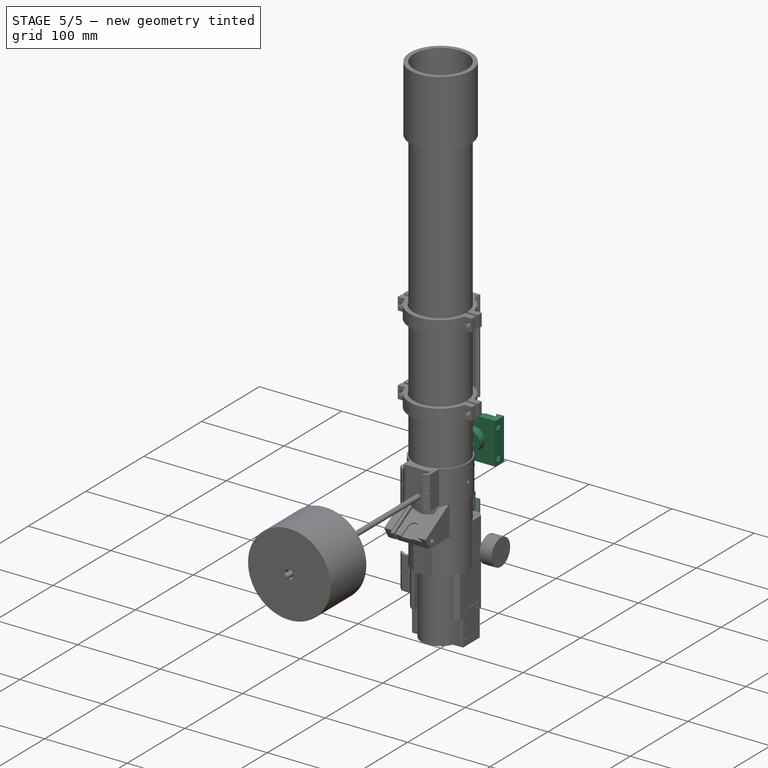
[diagram: stage 5 of 5 — iso view after this stage's code; geometry added in this stage tinted green]
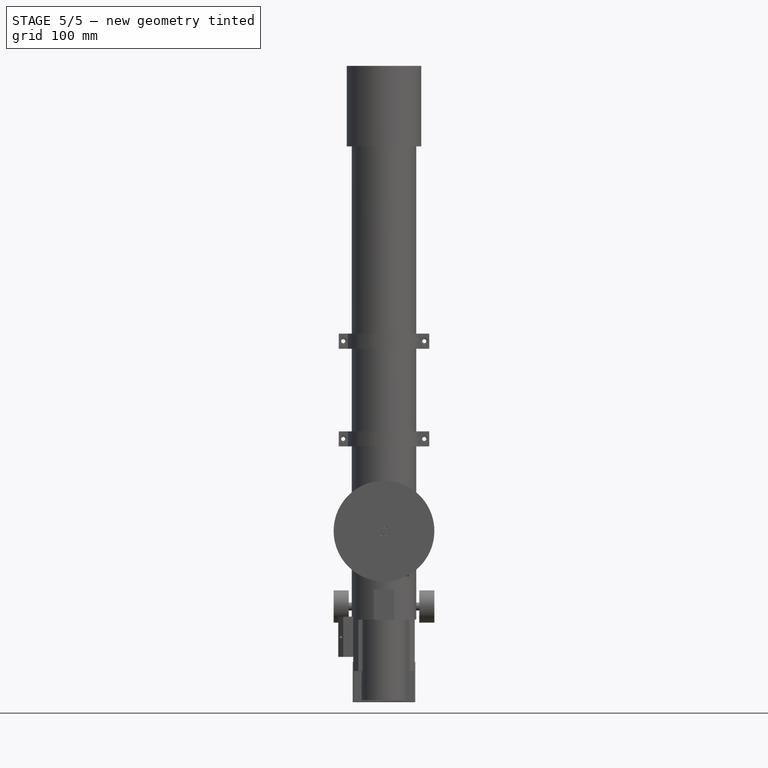
[diagram: stage 5 of 5 — front view after this stage's code; geometry added in this stage tinted green]
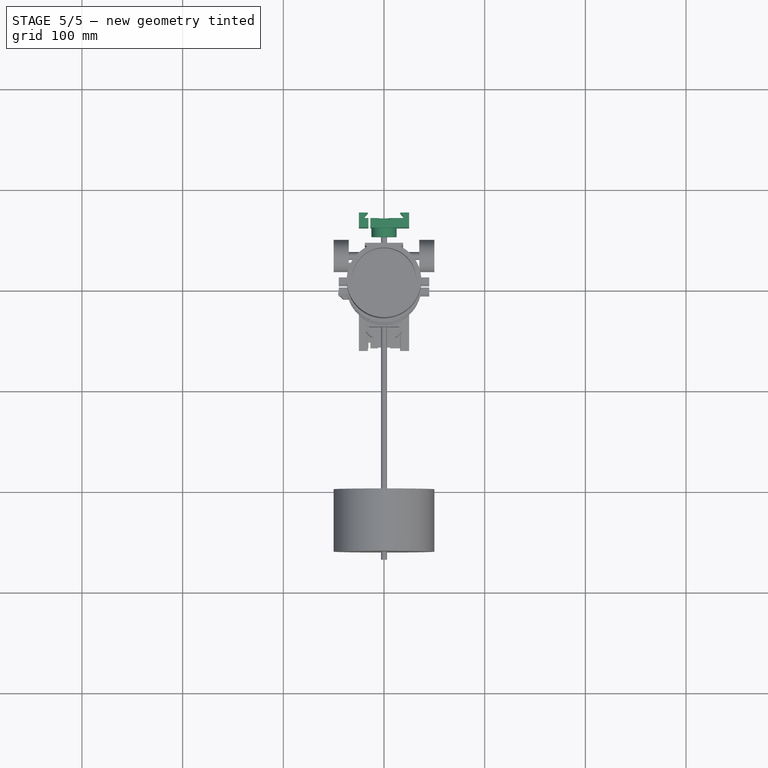
[diagram: stage 5 of 5 — top view after this stage's code; geometry added in this stage tinted green]
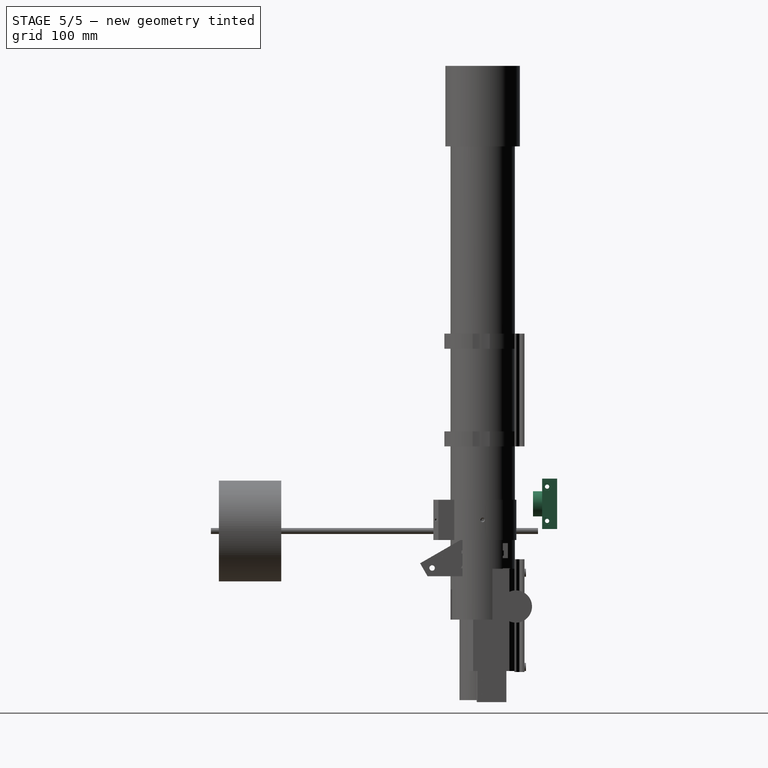
[diagram: stage 5 of 5 — right view after this stage's code; geometry added in this stage tinted green]
FEATURE [Part::Box] Box010  label="Krychle009"
  AttacherType = Attacher::AttachEngine3D
  Height = 10
  Length = 43
  Placement = pos=(-21.5,-20.5,0) rot=(0,0,1;0rad)
  Width = 42
FEATURE [Part::Chamfer] Chamfer001
  Base = -> Box010
  Edges = 2 edges r=5: [Edge1,Edge5]
FEATURE [Part::Cylinder] Cylinder014005154  label="Válec151"
  Angle = 360
  AttacherType = Attacher::AttachEngine3D
  Height = 50
  Placement = pos=(-9.9,9.9,0) rot=(0,0,1;0rad)
  Radius = 1.6
FEATURE [Part::Cylinder] Cylinder014005155  label="Válec152"
  Angle = 360
  AttacherType = Attacher::AttachEngine3D
  Height = 50
  Placement = pos=(9.9,9.9,0) rot=(0,0,1;0rad)
  Radius = 1.6
FEATURE [Part::Cylinder] Cylinder014005156  label="dira stred001"
  Angle = 360
  AttacherType = Attacher::AttachEngine3D
  Height = 50
  Radius = 11
FEATURE [Part::Cylinder] Cylinder014005157  label="Válec153"
  Angle = 360
  AttacherType = Attacher::AttachEngine3D
  Height = 50
  Placement = pos=(-9.9,-9.9,0) rot=(0,0,1;0rad)
  Radius = 1.6
FEATURE [Part::Cylinder] Cylinder014005158  label="Válec154"
  Angle = 360
  AttacherType = Attacher::AttachEngine3D
  Height = 50
  Placement = pos=(9.9,-9.9,0) rot=(0,0,1;0rad)
  Radius = 1.6
FEATURE [Part::MultiFuse] Fusion092  label="diry001"
  Shapes = -> [Cylinder014005154,Cylinder014005155,Cylinder014005156,Cylinder014005157,Cylinder014005158]
FEATURE [Part::Cut] Cut061007  label="Horni ucjyt"
  Base = -> Chamfer001
  Placement = pos=(0,0,40.5) rot=(0,0,1;0rad)
  Tool = -> Fusion092
FEATURE [Part::Box] Box  label="deska"
  AttacherType = Attacher::AttachEngine3D
  Height = 102
  Length = 43
  Placement = pos=(-21.5,21.5,-51.5) rot=(0,0,1;0rad)
  Width = 10
FEATURE [Part::Box] Box012  label="deska001"
  AttacherType = Attacher::AttachEngine3D
  Height = 102
  Length = 9
  Placement = pos=(-30.5,-14.5,-51.5) rot=(0,0,1;0rad)
  Width = 46
FEATURE [Part::Box] Box013  label="deska002"
  AttacherType = Attacher::AttachEngine3D
  Height = 102
  Length = 9
  Placement = pos=(21.5,-14.5,-51.5) rot=(0,0,1;0rad)
  Width = 46
FEATURE [Part::Box] Box014  label="Krychle"
  AttacherType = Attacher::AttachEngine3D
  Height = 112
  Length = 38
  Placement = pos=(-19,32,-52) rot=(0,0,1;0rad)
  Width = 10
FEATURE [Part::Box] Box015  label="Krychle011"
  AttacherType = Attacher::AttachEngine3D
  Height = 112
  Length = 38
  Placement = pos=(-19,34,-52) rot=(0,0,1;0rad)
  Width = 6
FEATURE [Part::Cut] Cut061009
  Base = -> Box014
  Tool = -> Box015
FEATURE [Sketcher::SketchObject] Sketch
  MapMode = 5
  Placement = pos=(0,0,60) rot=(0,0,1;0rad)
  sketch-geometry (6):
    g0: LineSegment StartX=-18.9734 StartY=34.0308 StartZ=0 EndX=-16.0253 EndY=36.9748 EndZ=0
    g1: LineSegment StartX=18.996 StartY=34.0308 StartZ=0 EndX=16.044 EndY=36.9748 EndZ=0
    g2: LineSegment StartX=18.996 StartY=34.0308 StartZ=0 EndX=-18.9734 EndY=34.0308 EndZ=0
    g3: LineSegment StartX=-18.9734 StartY=40.0311 StartZ=0 EndX=-16.0253 EndY=36.9748 EndZ=0
    g4: LineSegment StartX=16.044 StartY=36.9748 StartZ=0 EndX=18.9109 EndY=40.0311 EndZ=0
    g5: LineSegment StartX=-18.9734 StartY=40.0311 StartZ=0 EndX=18.9109 EndY=40.0311 EndZ=0
  constraints (7):
    c: Coincident(g2,g1)
    c: Coincident(g2,g0)
    c: Horizontal(g2)
    c: Coincident(g3,g0)
    c: Coincident(g5,g3)
    c: Coincident(g5,g4)
    c: Horizontal(g5)
FEATURE [Part::Extrusion] Extrude009
  Base = -> Sketch
  Dir = (0,0,1)
  DirMode = 2
  FaceMakerClass = Part::FaceMakerBullseye
  LengthFwd = -112
  LengthRev = 0
  Solid = true
  Symmetric = false
FEATURE [Part::MultiFuse] Fusion095  label="Arca plate base"
  Placement = pos=(0,-0.5,0) rot=(0,0,1;0rad)
  Shapes = -> [Extrude009,Cut061009]
FEATURE [Part::Box] Box016  label="Krychle012"
  AttacherType = Attacher::AttachEngine3D
  Height = 112
  Length = 38
  Placement = pos=(-19,32,-52) rot=(0,0,1;0rad)
  Width = 10
FEATURE [Part::Box] Box017  label="Krychle013"
  AttacherType = Attacher::AttachEngine3D
  Height = 112
  Length = 38
  Placement = pos=(-19,34,-52) rot=(0,0,1;0rad)
  Width = 6
FEATURE [Part::Cut] Cut061010
  Base = -> Box016
  Tool = -> Box017
FEATURE [Sketcher::SketchObject] Sketch002
  MapMode = 5
  Placement = pos=(0,0,60) rot=(0,0,1;0rad)
  sketch-geometry (6):
    g0: LineSegment StartX=-18.9734 StartY=34.0308 StartZ=0 EndX=-16.0253 EndY=36.9748 EndZ=0
    g1: LineSegment StartX=18.996 StartY=34.0308 StartZ=0 EndX=16.044 EndY=36.9748 EndZ=0
    g2: LineSegment StartX=18.996 StartY=34.0308 StartZ=0 EndX=-18.9734 EndY=34.0308 EndZ=0
    g3: LineSegment StartX=-18.9734 StartY=40.0311 StartZ=0 EndX=-16.0253 EndY=36.9748 EndZ=0
    g4: LineSegment StartX=16.044 StartY=36.9748 StartZ=0 EndX=18.9109 EndY=40.0311 EndZ=0
    g5: LineSegment StartX=-18.9734 StartY=40.0311 StartZ=0 EndX=18.9109 EndY=40.0311 EndZ=0
  constraints (7):
    c: Coincident(g2,g1)
    c: Coincident(g2,g0)
    c: Horizontal(g2)
    c: Coincident(g3,g0)
    c: Coincident(g5,g3)
    c: Coincident(g5,g4)
    c: Horizontal(g5)
FEATURE [Part::Extrusion] Extrude010
  Base = -> Sketch002
  Dir = (0,0,1)
  DirMode = 2
  FaceMakerClass = Part::FaceMakerBullseye
  LengthFwd = -112
  LengthRev = 0
  Solid = true
  Symmetric = false
FEATURE [Part::MultiFuse] Fusion096  label="Arca plate base001"
  Placement = pos=(0,-0.6,0) rot=(0,0,1;0rad)
  Shapes = -> [Extrude010,Cut061010]
FEATURE [Part::Cylinder] Cylinder014005164  label="Válec159"
  Angle = 360
  AttacherType = Attacher::AttachEngine3D
  Height = 200
  Placement = pos=(0,27,-100) rot=(0,0,1;0rad)
  Radius = 3.2
FEATURE [Part::FeaturePython] Nut  label="M6-Nut"  # Fasteners workbench fastener (typed FeaturePython)
  Placement = pos=(0,27,46) rot=(0,0,1;0rad)
  diameter = 8
  invert = false
  matchOuter = false
  offset = 0
  thread = false
  type = 1
FEATURE [Part::FeaturePython] Nut001  label="M6-Nut001"  # Fasteners workbench fastener (typed FeaturePython)
  Placement = pos=(0,27,-52) rot=(0,0,1;0rad)
  diameter = 8
  invert = false
  matchOuter = false
  offset = 0
  thread = false
  type = 1
FEATURE [Part::MultiFuse] Fusion097  label="Dira zavazi"
  Shapes = -> [Cylinder014005164,Nut,Nut001]
FEATURE [Part::Cylinder] Cylinder014005165  label="Válec160"
  Angle = 360
  AttacherType = Attacher::AttachEngine3D
  Height = 10
  Placement = pos=(0,43,46.5) rot=(1,0,0;1.5708rad)
  Radius = 4
FEATURE [Part::Cylinder] Cylinder014005166  label="Válec161"
  Angle = 360
  AttacherType = Attacher::AttachEngine3D
  Height = 10
  Placement = pos=(0,43,-47) rot=(1,0,0;1.5708rad)
  Radius = 4
FEATURE [Part::RegularPolygon] RegularPolygon004  label="Pravidelný n-úhelník004"
  AttacherType = Attacher::AttachEngine3D
  Circumradius = 6
  Polygon = 6
FEATURE [Part::Extrusion] Extrude027
  Base = -> RegularPolygon004
  Dir = (0,0,1)
  DirMode = 2
  FaceMakerClass = Part::FaceMakerBullseye
  LengthFwd = 8
  LengthRev = 0
  Placement = pos=(0,0,13) rot=(0,0,1;0rad)
  Solid = true
  Symmetric = false
FEATURE [Part::FeaturePython] Nut007  label="M4-Nut002"  # Fasteners workbench fastener (typed FeaturePython)
  Placement = pos=(22,17,69) rot=(0,1,0;1.5708rad)
  diameter = 6
  invert = false
  matchOuter = false
  offset = 0
  thread = false
  type = 1
FEATURE [Part::FeaturePython] Nut008  label="M4-Nut003"  # Fasteners workbench fastener (typed FeaturePython)
  Placement = pos=(22,-17,69) rot=(0,1,0;1.5708rad)
  diameter = 6
  invert = false
  matchOuter = false
  offset = 0
  thread = false
  type = 1
FEATURE [Sketcher::SketchObject] Sketch009
  MapMode = 5
  Placement = pos=(0,0,60) rot=(0,0,1;0rad)
  sketch-geometry (6):
    g0: LineSegment StartX=-18.9734 StartY=34.0308 StartZ=0 EndX=-16.0253 EndY=36.9748 EndZ=0
    g1: LineSegment StartX=18.996 StartY=34.0308 StartZ=0 EndX=16.044 EndY=36.9748 EndZ=0
    g2: LineSegment StartX=18.996 StartY=34.0308 StartZ=0 EndX=-18.9734 EndY=34.0308 EndZ=0
    g3: LineSegment StartX=-18.9734 StartY=40.0311 StartZ=0 EndX=-16.0253 EndY=36.9748 EndZ=0
    g4: LineSegment StartX=16.044 StartY=36.9748 StartZ=0 EndX=18.9109 EndY=40.0311 EndZ=0
    g5: LineSegment StartX=-18.9734 StartY=40.0311 StartZ=0 EndX=18.9109 EndY=40.0311 EndZ=0
  constraints (7):
    c: Coincident(g2,g1)
    c: Coincident(g2,g0)
    c: Horizontal(g2)
    c: Coincident(g3,g0)
    c: Coincident(g5,g3)
    c: Coincident(g5,g4)
    c: Horizontal(g5)
FEATURE [Part::Extrusion] Extrude025
  Base = -> Sketch009
  Dir = (0,0,1)
  DirMode = 2
  FaceMakerClass = Part::FaceMakerBullseye
  LengthFwd = -112
  LengthRev = 0
  Solid = true
  Symmetric = false
FEATURE [Sketcher::SketchObject] Sketch010
  MapMode = 45
  Placement = pos=(44.88,21.011,5.40003) rot=(0.707106,0.001666,0.707106;3.13826rad)
  sketch-geometry (7):
    g0: LineSegment StartX=5.21891 StartY=0.0364138 StartZ=0 EndX=2.62121 EndY=4.46293 EndZ=0
    g1: LineSegment StartX=2.62121 StartY=4.46293 StartZ=0 EndX=-2.51111 EndY=4.42651 EndZ=0
    g2: LineSegment StartX=-2.51111 StartY=4.42651 StartZ=0 EndX=-5.04574 EndY=-0.0364138 EndZ=0
    g3: LineSegment StartX=-5.04574 StartY=-0.0364138 StartZ=0 EndX=-2.44804 EndY=-4.46293 EndZ=0
    g4: LineSegment StartX=-2.44804 StartY=-4.46293 StartZ=0 EndX=2.68428 EndY=-4.42651 EndZ=0
    g5: LineSegment StartX=2.68428 StartY=-4.42651 StartZ=0 EndX=5.21891 EndY=0.0364138 EndZ=0
    g6: Circle [constr] CenterX=0.0865834 CenterY=0 CenterZ=0 NormalX=0 NormalY=0 NormalZ=1 AngleXU=0 Radius=5.13245
  constraints (14):
    c: Coincident(g0,g1)
    c: Coincident(g1,g2)
    c: Coincident(g2,g3)
    c: Coincident(g3,g4)
    c: Coincident(g4,g5)
    c: Coincident(g5,g0)
    c: Equal(g0, g1-g5) x5
    c: PointOnObject(g0,g6)
    c: PointOnObject(g1,g6)
    c: PointOnObject(g2,g6)
    c: PointOnObject(g3,g6)
    c: PointOnObject(g4,g6)
    c: PointOnObject(g5,g6)
    c: PointOnObject(g6,g-1)
FEATURE [Part::Extrusion] Extrude026
  Base = -> Sketch010
  Dir = (1,0,0)
  DirMode = 2
  FaceMakerClass = Part::FaceMakerBullseye
  LengthFwd = 5
  LengthRev = 0
  Placement = pos=(0,0,0.25) rot=(0,0,1;0rad)
  Solid = true
  Symmetric = false
FEATURE [Part::Feature] Screw_solid087  label="M2x4-Screw (Solid)087"
  Placement = pos=(0,0,0) rot=(0,0,1;3.14159rad)
  shape: bbox 3.6 x 3.6 x 4 mm, 12 faces (baked)
FEATURE [Part::Feature] Cylinder014005326  label="Válec302"
  Placement = pos=(0,0,0) rot=(0,0,1;2.0944rad)
  shape: bbox 5 x 5 x 7 mm, 3 faces (baked)
FEATURE [Part::Feature] Cylinder014005327  label="Válec303"
  Placement = pos=(0,0,0) rot=(0,0,1;4.18879rad)
  shape: bbox 5 x 5 x 7 mm, 3 faces (baked)
FEATURE [Part::Feature] Screw_solid088  label="M2x4-Screw (Solid)088"
  Placement = pos=(0,0,0) rot=(0,0,1;1.0472rad)
  shape: bbox 3.6 x 3.6 x 4 mm, 12 faces (baked)
FEATURE [Part::Feature] Cylinder014005328  label="Válec304"
  shape: bbox 5 x 5 x 7 mm, 3 faces (baked)
FEATURE [Part::MultiFuse] Fusion196
  Shapes = -> [Cylinder014005327,Cylinder014005328,Cylinder014005326]
FEATURE [Part::Feature] Screw_solid089  label="M2x4-Screw (Solid)089"
  Placement = pos=(0,0,0) rot=(0,0,-1;1.0472rad)
  shape: bbox 3.6 x 3.6 x 4 mm, 12 faces (baked)
FEATURE [Part::MultiFuse] Fusion199  label="srouby030"
  Placement = pos=(0,0,0.5) rot=(0,0,1;0rad)
  Shapes = -> [Screw_solid088,Screw_solid089,Screw_solid087]
FEATURE [Part::Box] Box035  label="Krychle028"
  AttacherType = Attacher::AttachEngine3D
  Height = 112
  Length = 38
  Placement = pos=(-19,32,-52) rot=(0,0,1;0rad)
  Width = 10
FEATURE [Part::Box] Box036  label="Krychle029"
  AttacherType = Attacher::AttachEngine3D
  Height = 112
  Length = 38
  Placement = pos=(-19,34,-52) rot=(0,0,1;0rad)
  Width = 6
FEATURE [Part::Cylinder] Cylinder014005329  label="Válec305"
  Angle = 360
  AttacherType = Attacher::AttachEngine3D
  Height = 22
  Radius = 2.6
FEATURE [Part::MultiFuse] Fusion195
  Shapes = -> [Cylinder014005329,Extrude026]
FEATURE [Part::Cylinder] Cylinder014005330  label="Válec306"
  Angle = 360
  AttacherType = Attacher::AttachEngine3D
  Height = 7
  Radius = 2.6
FEATURE [Part::MultiFuse] Fusion198
  Placement = pos=(0,0,1) rot=(0,0,1;0rad)
  Shapes = -> [Fusion196,Cylinder014005330]
FEATURE [Part::Cylinder] Cylinder014005331  label="Válec307"
  Angle = 360
  AttacherType = Attacher::AttachEngine3D
  Height = 8
  Placement = pos=(0,0,66) rot=(0,0,1;0rad)
  Radius = 4.5
FEATURE [Part::Box] Box037  label="Krychle030"
  AttacherType = Attacher::AttachEngine3D
  Height = 15
  Length = 50
  Placement = pos=(-25,-25,64) rot=(0,0,1;0rad)
  Width = 50
FEATURE [Part::Cylinder] Cylinder014005332  label="Válec308"
  Angle = 360
  AttacherType = Attacher::AttachEngine3D
  Height = 6
  Placement = pos=(0,0,7) rot=(0,0,1;0rad)
  Radius = 6.5
FEATURE [Part::Box] Box038  label="Krychle031"
  AttacherType = Attacher::AttachEngine3D
  Height = 15
  Length = 2
  Placement = pos=(-15.5,-26,61) rot=(0,0,1;0rad)
  Width = 52
FEATURE [Part::Cylinder] Cylinder014005333  label="Unasec vrch017"
  Angle = 360
  AttacherType = Attacher::AttachEngine3D
  Height = 1.5
  Placement = pos=(0,0,5.5) rot=(0,0,1;0rad)
  Radius = 15.5
FEATURE [Part::Cylinder] Cylinder014005334  label="Válec309"
  Angle = 360
  AttacherType = Attacher::AttachEngine3D
  Height = 55
  Placement = pos=(0,0,35) rot=(0,0,1;0rad)
  Radius = 2.7
FEATURE [Part::Cylinder] Cylinder014005335  label="Válec310"
  Angle = 360
  AttacherType = Attacher::AttachEngine3D
  Height = 9
  Placement = pos=(0,0,55) rot=(0,0,1;0rad)
  Radius = 12.5
FEATURE [Part::Cut] Cut061079  label="unasec vrch017"
  Base = -> Cylinder014005333
  Tool = -> Fusion199
FEATURE [Part::Cut] Cut061080
  Base = -> Box035
  Tool = -> Box036
FEATURE [Part::MultiFuse] Fusion194  label="Arca plate base004"
  Placement = pos=(0,-6.5,115.5) rot=(-1,0,0;1.5708rad)
  Shapes = -> [Extrude025,Cut061080]
FEATURE [Part::Cut] Cut061077  label="Arca sw 002"
  Base = -> Box037
  Tool = -> Fusion194
FEATURE [Part::Cut] Cut061083
  Base = -> Cut061077
  Tool = -> Box038
FEATURE [Part::MultiFuse] Fusion192
  Shapes = -> [Cylinder014005335,Cut061083]
FEATURE [Part::Cut] Cut061084  label="Unasec Vrch zaklad017"
  Base = -> Cut061079
  Tool = -> Fusion198
FEATURE [Part::MultiFuse] Fusion197
  Shapes = -> [Cut061084,Cylinder014005332,Extrude027]
FEATURE [Part::Cut] Cut061081  label="unasec top004"
  Base = -> Fusion197
  Placement = pos=(0,0,42) rot=(0,0,1;0rad)
  Tool = -> Fusion195
FEATURE [Part::MultiFuse] Fusion191
  Shapes = -> [Cylinder014005334,Cut061081,Cylinder014005331]
FEATURE [Part::Cut] Cut061082
  Base = -> Fusion192
  Tool = -> Fusion191
FEATURE [Part::Cylinder] Cylinder014005336  label="Válec311"
  Angle = 360
  AttacherType = Attacher::AttachEngine3D
  Height = 60
  Placement = pos=(-30,17,69) rot=(0,1,0;1.5708rad)
  Radius = 2.1
FEATURE [Part::Cylinder] Cylinder014005337  label="Válec312"
  Angle = 360
  AttacherType = Attacher::AttachEngine3D
  Height = 60
  Placement = pos=(-30,-17,69) rot=(0,1,0;1.5708rad)
  Radius = 2.1
FEATURE [Part::MultiFuse] Fusion193
  Shapes = -> [Cylinder014005336,Cylinder014005337,Nut007,Nut008]
FEATURE [Part::Cut] Cut061078
  Base = -> Cut061082
  Tool = -> Fusion193
FEATURE [Part::Cylinder] Cylinder014005338  label="Válec313"
  Angle = 360
  AttacherType = Attacher::AttachEngine3D
  Height = 2.5
  Placement = pos=(0,-12,71) rot=(0,0,1;0rad)
  Radius = 6
FEATURE [Part::Box] Box039  label="Krychle032"
  AttacherType = Attacher::AttachEngine3D
  Height = 2.5
  Length = 12
  Placement = pos=(-6,-25,71) rot=(0,0,1;0rad)
  Width = 13
FEATURE [Part::MultiFuse] Fusion201
  Placement = pos=(0,0,1) rot=(0,0,1;3.14159rad)
  Shapes = -> [Box039,Cylinder014005338]
FEATURE [Part::Cylinder] Cylinder014005339  label="Válec314"
  Angle = 360
  AttacherType = Attacher::AttachEngine3D
  Height = 2.5
  Placement = pos=(0,-12,71) rot=(0,0,1;0rad)
  Radius = 6
FEATURE [Part::Box] Box040  label="Krychle033"
  AttacherType = Attacher::AttachEngine3D
  Height = 2.5
  Length = 12
  Placement = pos=(-6,-25,71) rot=(0,0,1;0rad)
  Width = 13
FEATURE [Part::MultiFuse] Fusion200
  Placement = pos=(0,0,1) rot=(0,0,1;0rad)
  Shapes = -> [Box040,Cylinder014005339]
FEATURE [Part::MultiFuse] Fusion202
  Shapes = -> [Fusion200,Fusion201]
FEATURE [Part::Cut] Cut061085  label="Swis Arca002"
  Base = -> Cut061078
  Placement = pos=(0,-5,115) rot=(-1,0,0;1.5708rad)
  Tool = -> Fusion202
FEATURE [Part::Box] Box041  label="Krychle034"
  AttacherType = Attacher::AttachEngine3D
  Height = 13
  Length = 80
  Placement = pos=(-40,-34,50.5) rot=(0,0,1;0rad)
  Width = 80
FEATURE [Part::Box] Box042  label="Krychle035"
  AttacherType = Attacher::AttachEngine3D
  Height = 2
  Length = 80
  Placement = pos=(-40,-36,-53) rot=(0,0,1;0rad)
  Width = 80
FEATURE [Part::MultiFuse] Fusion203  label="Oreze"
  Shapes = -> [Box041,Box042]
FEATURE [App::Part] Part019  label="Temp"
  Group = -> [Cut061009,Sketch,Box014,Box015,Extrude009,Fusion095,Sketch009,Fusion193,Fusion192,Fusion191,Fusion194,Fusion196,Fusion195,Fusion197,Fusion198,Nut007,Nut008,Extrude025,RegularPolygon004,Extrude026,Extrude027,Cut061078,Cut061080,Cut061082,Cut061083,Cut061081,Cut061084,Cut061079,Cut061077,Screw_solid088,Screw_solid087,Cylinder014005326,Cylinder014005328,Screw_solid089,Cylinder014005327,Sketch010,+22 more]
  License = CC BY 3.0
  LicenseURL = http://creativecommons.org/licenses/by/3.0/
  Origin = -> Origin019
FEATURE [Part::Feature] Cut061098  label="Motor PG100"
  Placement = pos=(0,0,2) rot=(0,0,1;0rad)
  shape: bbox 42.3 x 42.3 x 110 mm, 26 faces (baked)
FEATURE [Part::Cylinder] Cylinder014005356  label="Válec322"
  Angle = 360
  AttacherType = Attacher::AttachEngine3D
  Height = 3
  Placement = pos=(-9.9,9.9,47) rot=(0,0,1;0rad)
  Radius = 2.8
FEATURE [Part::Cylinder] Cylinder014005357  label="Válec323"
  Angle = 360
  AttacherType = Attacher::AttachEngine3D
  Height = 3
  Placement = pos=(9.9,9.9,47) rot=(0,0,1;0rad)
  Radius = 2.8
FEATURE [Part::Cylinder] Cylinder014005358  label="Válec324"
  Angle = 360
  AttacherType = Attacher::AttachEngine3D
  Height = 3
  Placement = pos=(-9.9,-9.9,47) rot=(0,0,1;0rad)
  Radius = 2.8
FEATURE [Part::Cylinder] Cylinder014005359  label="Válec325"
  Angle = 360
  AttacherType = Attacher::AttachEngine3D
  Height = 3
  Placement = pos=(9.9,-9.9,47) rot=(0,0,1;0rad)
  Radius = 2.8
FEATURE [Part::MultiFuse] Fusion221  label="Imbus diry"
  Shapes = -> [Cylinder014005356,Cylinder014005357,Cylinder014005358,Cylinder014005359]
FEATURE [Part::MultiFuse] Fusion222
  Shapes = -> [Cut061007,Cylinder014005165,Cylinder014005166,Box013,Box,Box012,Fusion096]
FEATURE [Part::MultiFuse] Fusion223
  Shapes = -> [Fusion221,Fusion203,Fusion097]
FEATURE [Part::Cut] Cut061099
  Base = -> Fusion222
  Tool = -> Fusion223
FEATURE [Part::Chamfer] Chamfer008  label="Zaklad"
  Base = -> Cut061099
  Edges = 4 edges r=5: [Edge130,Edge132,Edge145,Edge147]
FEATURE [App::Part] Part022  label="Zaklad002"
  Group = -> [Nut,Nut001,Fusion097,Fusion092,Fusion096,Cut061007,Cut061010,Chamfer001,Cylinder014005156,Box010,Cylinder014005157,Cylinder014005154,Cylinder014005158,Cylinder014005155,Box017,Box,Box016,Box012,Box013,Sketch002,Extrude010,Cylinder014005166,Cylinder014005164,Cylinder014005165,Fusion203,Box042,Box041,Cylinder014005359,Cylinder014005358,Cylinder014005356,Cylinder014005357,Cut061099,Fusion221,+4 more]
  License = CC BY 3.0
  LicenseURL = http://creativecommons.org/licenses/by/3.0/
  Origin = -> Origin022
FEATURE [Part::Box] Box008  label="Krychle043"
  AttacherType = Attacher::AttachEngine3D
  Height = 28
  Length = 62
  Placement = pos=(-2.5,-2,-5) rot=(0,0,1;0rad)
  Width = 31
FEATURE [Part::Box] Box054  label="Krychle003"
  AttacherType = Attacher::AttachEngine3D
  Height = 26
  Length = 58
  Placement = pos=(-0.5,0,-3) rot=(0,0,1;0rad)
  Width = 29
FEATURE [Part::Cylinder] Cylinder014005360  label="Válec326"
  Angle = 360
  AttacherType = Attacher::AttachEngine3D
  Height = 8
  Placement = pos=(53.5,21.25,0) rot=(0,0,1;0rad)
  Radius = 0.75
FEATURE [Part::Cylinder] Cylinder014005361  label="Válec010"
  Angle = 360
  AttacherType = Attacher::AttachEngine3D
  Height = 8
  Placement = pos=(53.5,6,0) rot=(0,0,1;0rad)
  Radius = 0.75
FEATURE [Part::Cylinder] Cylinder012  label="Válec327"
  Angle = 360
  AttacherType = Attacher::AttachEngine3D
  Height = 8
  Placement = pos=(3.5,21.25,0) rot=(0,0,1;0rad)
  Radius = 0.75
FEATURE [Part::Cylinder] Cylinder014005362  label="Válec012"
  Angle = 360
  AttacherType = Attacher::AttachEngine3D
  Height = 8
  Placement = pos=(3.5,6,0) rot=(0,0,1;0rad)
  Radius = 0.7
FEATURE [Part::Part2DObjectPython] ShapeString001  # Draft 2D object (typed FeaturePython)
  FontFile = <path>
  Placement = pos=(15.3452,-2,30.5072) rot=(1,0,0;1.5708rad)
  Size = 4
  String = RA
  Tracking = 0
FEATURE [Part::Extrusion] Extrude031  label="Text RA"
  Base = -> ShapeString001
  Dir = (0,-1,0)
  DirMode = 2
  FaceMakerClass = Part::FaceMakerBullseye
  LengthFwd = 1
  LengthRev = 0
  Placement = pos=(21,0.5,-33) rot=(0,0,1;0rad)
  Solid = false
  Symmetric = false
FEATURE [Part::Part2DObjectPython] ShapeString  # Draft 2D object (typed FeaturePython)
  FontFile = <path>
  Placement = pos=(15.3452,-2,30.5072) rot=(1,0,0;1.5708rad)
  Size = 4
  String = ON
  Tracking = 0
FEATURE [Part::Extrusion] Extrude030  label="Text TR"
  Base = -> ShapeString
  Dir = (0,-1,0)
  DirMode = 2
  FaceMakerClass = Part::FaceMakerBullseye
  LengthFwd = 1
  LengthRev = 0
  Placement = pos=(-6.75,0.5,-33) rot=(0,0,1;0rad)
  Solid = false
  Symmetric = false
FEATURE [Part::Cut] Cut061101  label="Základ"
  Base = -> Box008
  Tool = -> Box054
FEATURE [Part::Cylinder] Cylinder017  label="Válec016"
  Angle = 360
  AttacherType = Attacher::AttachEngine3D
  Height = 6.5
  Placement = pos=(3.5,6,0) rot=(0,0,1;0rad)
  Radius = 3.5
FEATURE [Part::Cylinder] Cylinder014  label="Válec333"
  Angle = 360
  AttacherType = Attacher::AttachEngine3D
  Height = 6.5
  Placement = pos=(53.5,6,0) rot=(0,0,1;0rad)
  Radius = 3.5
FEATURE [Part::Cylinder] Cylinder016  label="Válec015"
  Angle = 360
  AttacherType = Attacher::AttachEngine3D
  Height = 6.5
  Placement = pos=(3.5,21.25,0) rot=(0,0,1;0rad)
  Radius = 3.5
FEATURE [Part::Cylinder] Cylinder015  label="Válec334"
  Angle = 360
  AttacherType = Attacher::AttachEngine3D
  Height = 6.5
  Placement = pos=(53.5,21.25,0) rot=(0,0,1;0rad)
  Radius = 3.5
FEATURE [Part::Cylinder] Cylinder021  label="Válec020"
  Angle = 360
  AttacherType = Attacher::AttachEngine3D
  Height = 70
  Placement = pos=(-5,20,16.5) rot=(0,1,0;1.5708rad)
  Radius = 1
FEATURE [Part::Cylinder] Cylinder020  label="Válec019"
  Angle = 360
  AttacherType = Attacher::AttachEngine3D
  Height = 70
  Placement = pos=(-5,6,16.5) rot=(0,1,0;1.5708rad)
  Radius = 1
FEATURE [Part::Box] Box055  label="RJ051"
  AttacherType = Attacher::AttachEngine3D
  Height = 13
  Length = 16
  Placement = pos=(32,-5,4.5) rot=(0,0,1;0rad)
  Width = 18.5
FEATURE [Part::Cylinder] Cylinder038  label="Válec337"
  Angle = 360
  AttacherType = Attacher::AttachEngine3D
  Height = 5
  Placement = pos=(14.25,1,9.5) rot=(1,0,0;1.5708rad)
  Radius = 1.5
FEATURE [Part::MultiFuse] Fusion226  label="Horni diry"
  Placement = pos=(0,0,3) rot=(0,0,1;0rad)
  Shapes = -> [Cylinder021,Cylinder020]
FEATURE [Part::MultiFuse] Fusion228  label="RJ a LED"
  Shapes = -> [Box055,Cylinder038]
FEATURE [Part::MultiFuse] Fusion230  label="diry008"
  Placement = pos=(0,0,-4) rot=(0,0,1;0rad)
  Shapes = -> [Cylinder012,Cylinder014005362,Cylinder014005360,Cylinder014005361]
FEATURE [Part::MultiFuse] Fusion007  label="sloupky"
  Placement = pos=(0,0,-3.5) rot=(0,0,1;0rad)
  Shapes = -> [Cylinder016,Cylinder017,Cylinder015,Cylinder014]
FEATURE [Part::MultiFuse] Fusion243  label="bez der"
  Shapes = -> [Cut061101,Fusion007]
FEATURE [Part::MultiFuse] Fusion244
  Shapes = -> [Fusion230,Fusion228,Fusion226]
FEATURE [Part::Cut] Cut061109
  Base = -> Fusion243
  Tool = -> Fusion244
FEATURE [Part::MultiFuse] Fusion245
  Shapes = -> [Extrude030,Extrude031]
FEATURE [Part::Cut] Cut061110
  Base = -> Cut061109
  Placement = pos=(-28.5,18.5,-80) rot=(1,0,0;1.5708rad)
  Tool = -> Fusion245
FEATURE [Part::Feature] Cut061098001  label="RA Motor PG100"
  shape: bbox 42.3 x 42.3 x 110 mm, 26 faces (baked)
FEATURE [Part::Box] Box068  label="Krychle054"
  AttacherType = Attacher::AttachEngine3D
  Height = 13
  Length = 2
  Placement = pos=(29,-4.5,-55) rot=(0,0,1;0rad)
  Width = 28
FEATURE [Part::Box] Box069  label="Krychle055"
  AttacherType = Attacher::AttachEngine3D
  Height = 13
  Length = 2
  Placement = pos=(-31,-4.5,-55) rot=(0,0,1;0rad)
  Width = 28
FEATURE [Part::MultiFuse] Fusion250
  Shapes = -> [Box068,Box069]
FEATURE [Part::MultiFuse] Fusion252  label="RA pcb box"
  Shapes = -> [Cut061110,Fusion250]
FEATURE [Part::Cylinder] Cylinder014005370  label="Válec352"
  Angle = 360
  AttacherType = Attacher::AttachEngine3D
  Height = 74
  Placement = pos=(-40,0,-46.5) rot=(0,1,0;1.5708rad)
  Radius = 1.4
FEATURE [Part::Cylinder] Cylinder014005371  label="Válec353"
  Angle = 360
  AttacherType = Attacher::AttachEngine3D
  Height = 74
  Placement = pos=(-40,19,-46.5) rot=(0,1,0;1.5708rad)
  Radius = 1.4
FEATURE [Part::MultiFuse] Fusion253
  Shapes = -> [Cylinder014005370,Cylinder014005371]
FEATURE [Part::Cut] Cut061098005  label="RA PCB Box"
  Base = -> Fusion252
  Tool = -> Fusion253
FEATURE [Part::Box] Box077  label="Krychle062"
  AttacherType = Attacher::AttachEngine3D
  Height = 13
  Length = 2
  Placement = pos=(29,-4.5,-55) rot=(0,0,1;0rad)
  Width = 28
FEATURE [Part::MultiFuse] Fusion266
  Shapes = -> [Box077,Box078]
FEATURE [Part::MultiFuse] Fusion282
  Shapes = -> [Fusion266,Cut061098019]
FEATURE [Part::Cut] Cut061098020  label="DEC PCB Box"
  Base = -> Fusion282
  Tool = -> Fusion283
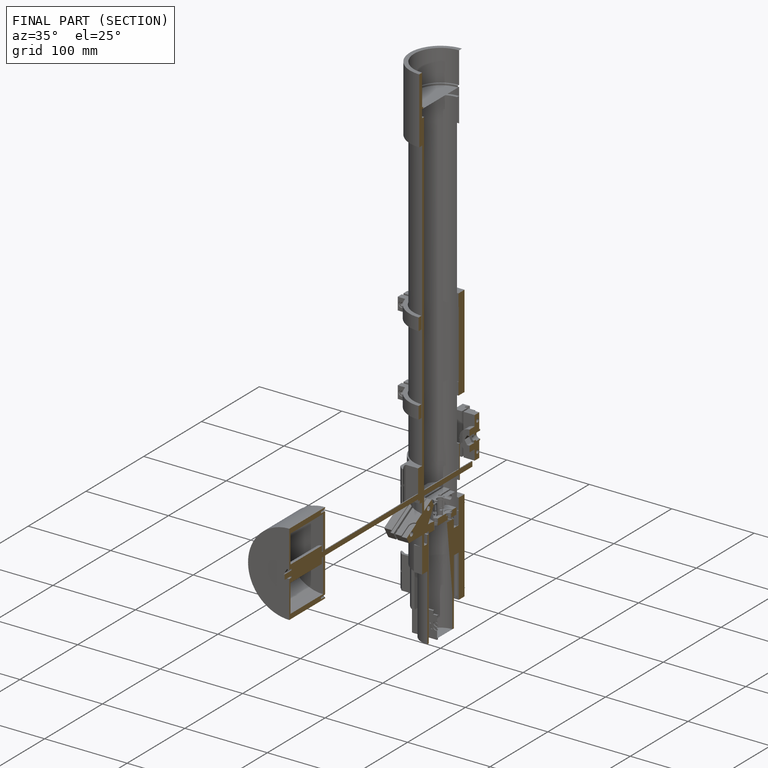
[diagram: finished part — half-section view (interior)]
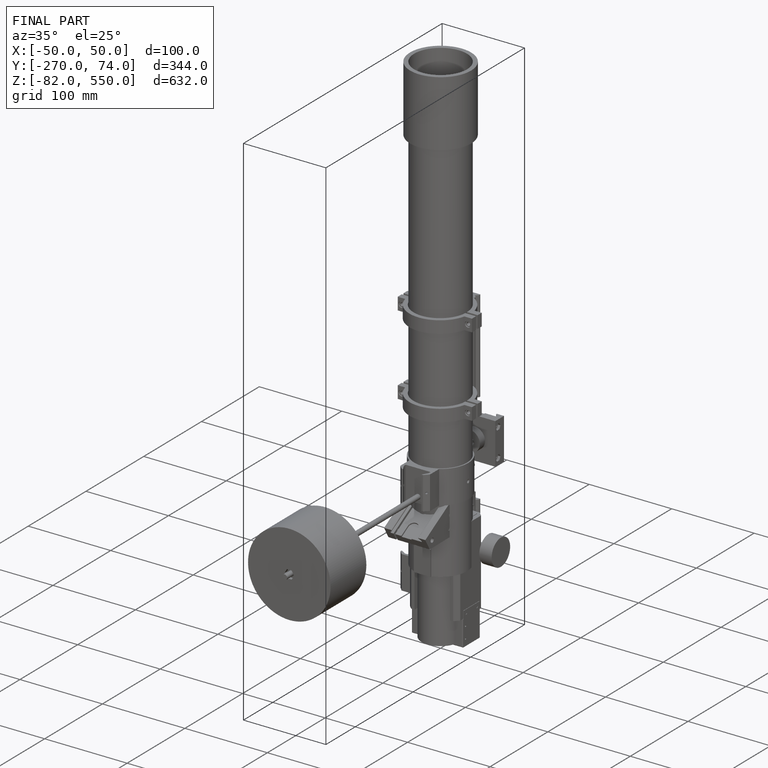
[diagram: finished part — iso view with bounding-box wireframe]
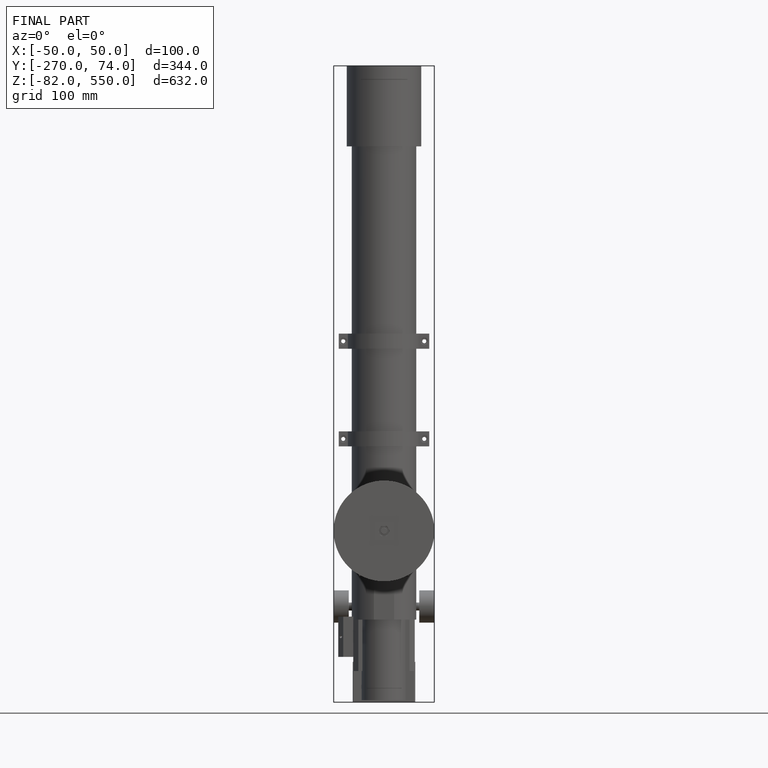
[diagram: finished part — front view with bounding-box wireframe]
